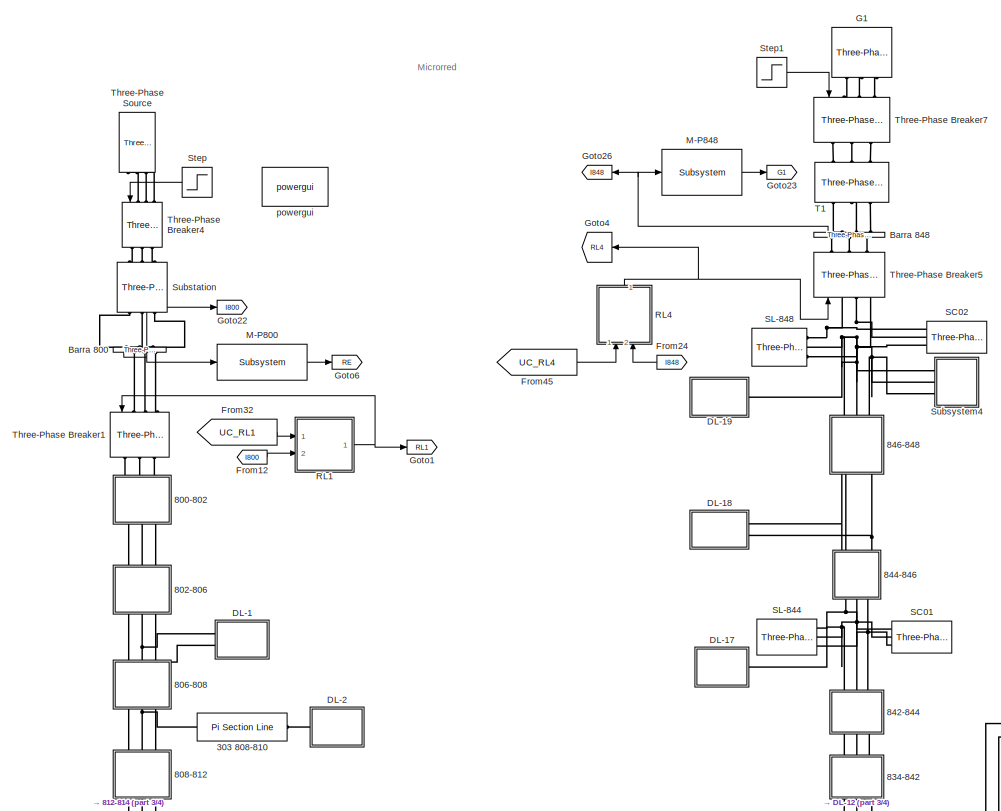
[diagram: root canvas - part 1/4, top left region]
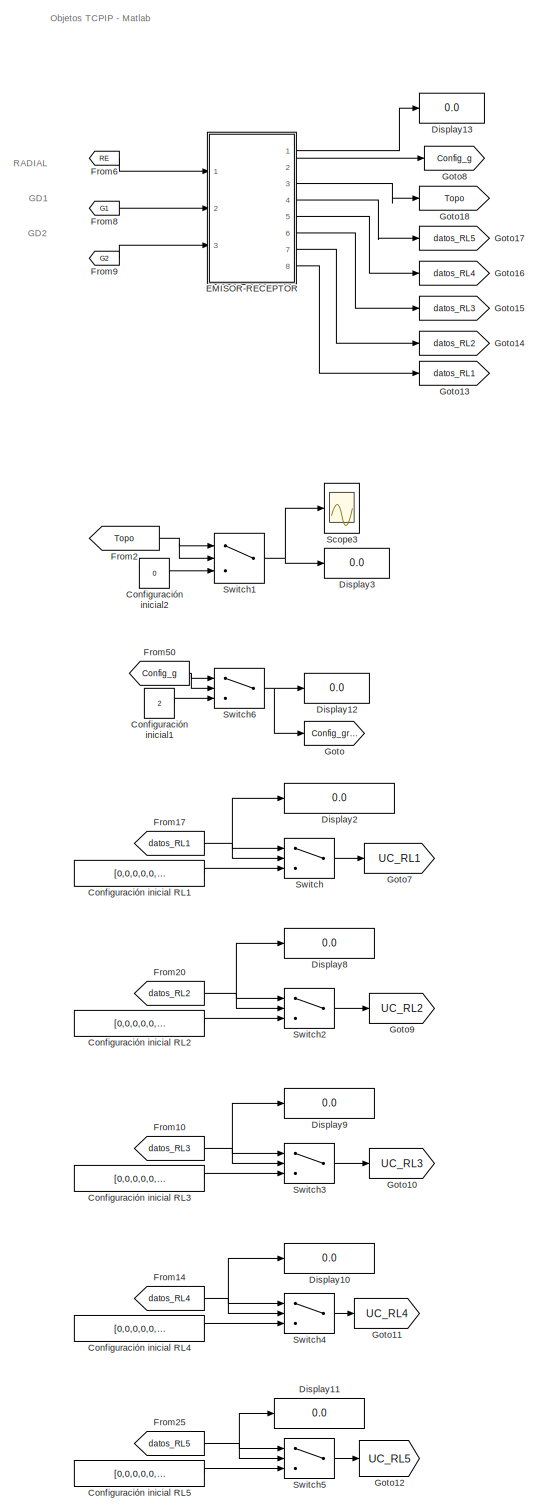
[diagram: root canvas - part 2/4, right side, full height]
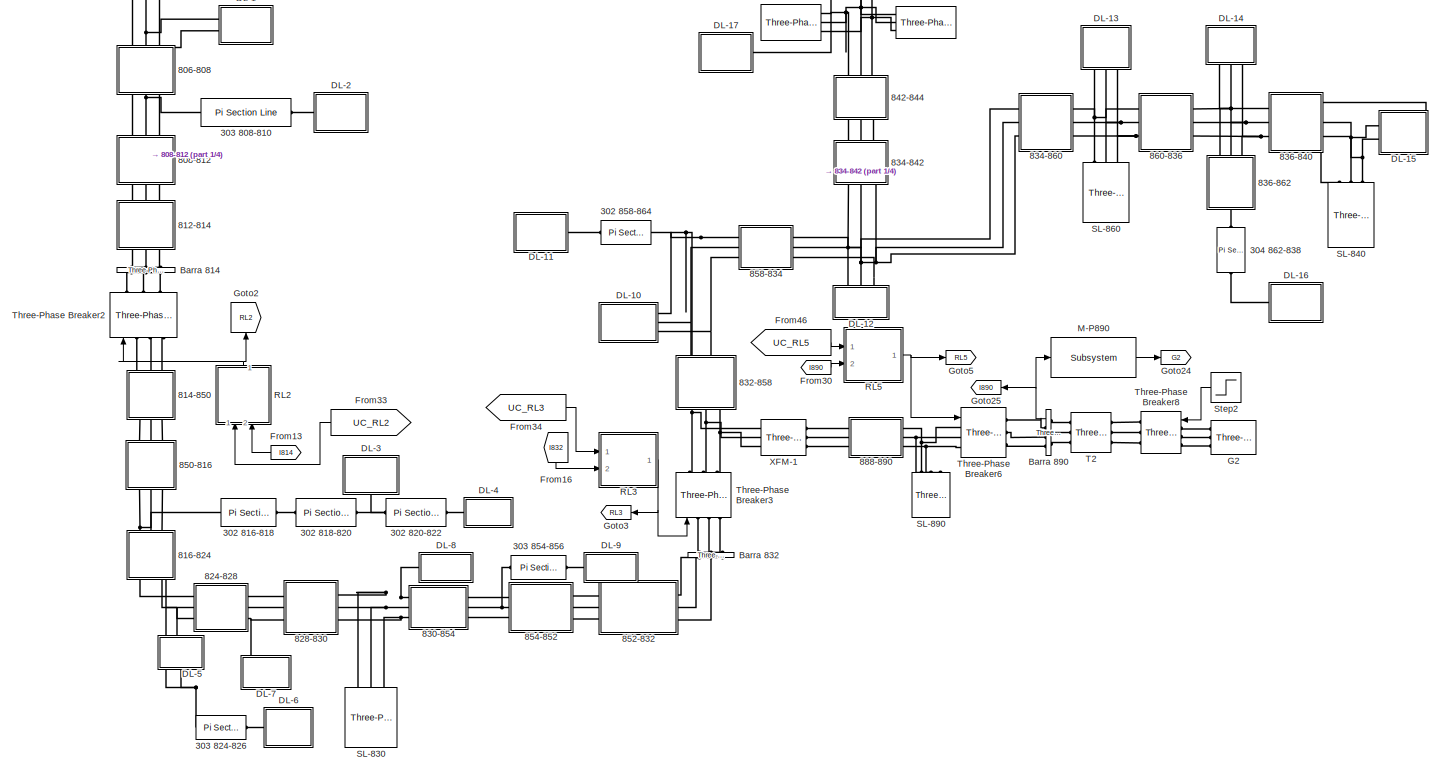
[diagram: root canvas - part 3/4, central region]
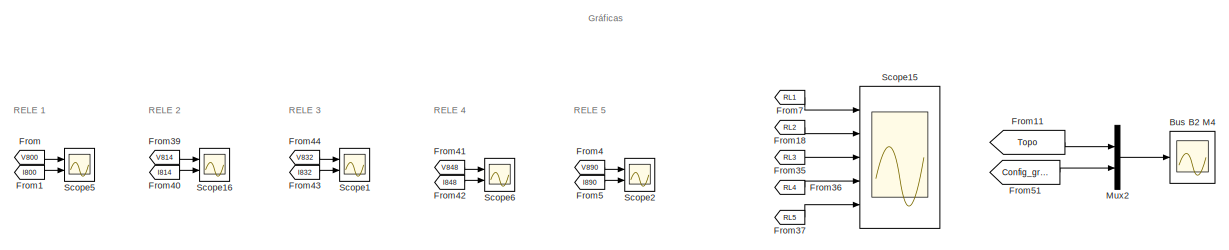
[diagram: root canvas - part 4/4, bottom center region]
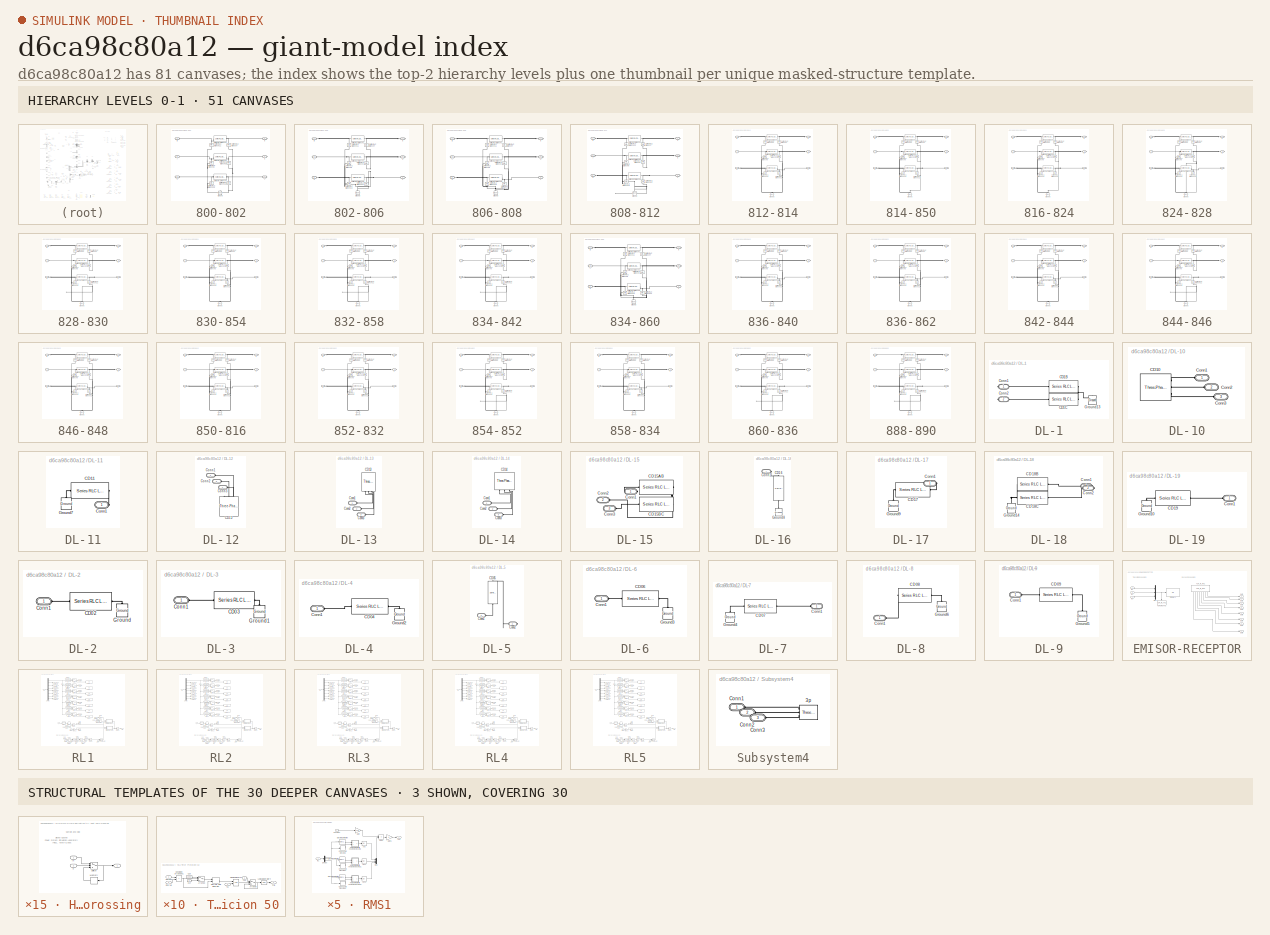
[diagram: thumbnail index - top-2 hierarchy levels (51 canvases) + 3 structural-template representatives of the remaining 30 canvases]
MODEL slx_d6ca98c80a12
KIND model
CONFIG AbsTol = auto
CONFIG EnableMultiTasking = on
CONFIG FixedStep = Ts
CONFIG InitFcn = close\nclc\nclear\nn=2^8;\nf=60;\nT=1/f;\nTs=1/(f*n);\nNT=18;\nset_param('IEEE34BARRAS/EMISOR-RECEPTOR/TCP_IP_RX1/ESCRITURA', 'Value','[0,0,0,0,0,0,0,0,0,0,0,0,0,0,0,0,0,0,0,0,0,0,0,0,0,0,0,0,0,0,0,0,0,0,0,0,0,0,0,0,0]')\nset_param('IEEE34BARRAS/EMISOR-RECEPTOR/TCP_IP_RX1/RETARDO', 'Value','0')\nrun script_client_1_inicio1.m
CONFIG MaxStep = auto
CONFIG MinStep = auto
CONFIG RelTol = 1e-3
CONFIG SampleTimeConstraint = Unconstrained
CONFIG Solver = ode4
CONFIG SolverName = ode4
CONFIG StartTime = 0.0
CONFIG StopTime = 48*T
BLOCK [Reference]  G1  REF=powerlib/Electrical
Sources/Three-Phase Source
  Ports = [0, 0, 0, 0, 0, 0, 3]
  SourceBlock = powerlib/Electrical\nSources/Three-Phase Source
  SourceProductBaseCode = PS
  SourceProductName = Simscape Power Systems
  SourceType = Three-Phase Source
BLOCK [Reference]  G2  REF=powerlib/Electrical
Sources/Three-Phase Source
  Ports = [0, 0, 0, 0, 0, 0, 3]
  SourceBlock = powerlib/Electrical\nSources/Three-Phase Source
  SourceProductBaseCode = PS
  SourceProductName = Simscape Power Systems
  SourceType = Three-Phase Source
BLOCK [Reference] 302 816-818  REF=powerlib/Elements/Pi Section Line
  AttributesFormatString = \n
  Ports = [0, 0, 0, 0, 0, 1, 1]
  SourceBlock = powerlib/Elements/Pi Section Line
  SourceProductBaseCode = PS
  SourceProductName = Simscape Power Systems
  SourceType = Pi Section Line
BLOCK [Reference] 302 818-820  REF=powerlib/Elements/Pi Section Line
  AttributesFormatString = \n
  Ports = [0, 0, 0, 0, 0, 1, 1]
  SourceBlock = powerlib/Elements/Pi Section Line
  SourceProductBaseCode = PS
  SourceProductName = Simscape Power Systems
  SourceType = Pi Section Line
BLOCK [Reference] 302 820-822  REF=powerlib/Elements/Pi Section Line
  AttributesFormatString = \n
  Ports = [0, 0, 0, 0, 0, 1, 1]
  SourceBlock = powerlib/Elements/Pi Section Line
  SourceProductBaseCode = PS
  SourceProductName = Simscape Power Systems
  SourceType = Pi Section Line
BLOCK [Reference] 302 858-864  REF=powerlib/Elements/Pi Section Line
  AttributesFormatString = \n
  Ports = [0, 0, 0, 0, 0, 1, 1]
  SourceBlock = powerlib/Elements/Pi Section Line
  SourceProductBaseCode = PS
  SourceProductName = Simscape Power Systems
  SourceType = Pi Section Line
BLOCK [Reference] 303 808-810  REF=powerlib/Elements/Pi Section Line
  AttributesFormatString = \n
  Ports = [0, 0, 0, 0, 0, 1, 1]
  SourceBlock = powerlib/Elements/Pi Section Line
  SourceProductBaseCode = PS
  SourceProductName = Simscape Power Systems
  SourceType = Pi Section Line
BLOCK [Reference] 303 824-826  REF=powerlib/Elements/Pi Section Line
  AttributesFormatString = \n
  Ports = [0, 0, 0, 0, 0, 1, 1]
  SourceBlock = powerlib/Elements/Pi Section Line
  SourceProductBaseCode = PS
  SourceProductName = Simscape Power Systems
  SourceType = Pi Section Line
BLOCK [Reference] 303 854-856  REF=powerlib/Elements/Pi Section Line
  AttributesFormatString = \n
  Ports = [0, 0, 0, 0, 0, 1, 1]
  SourceBlock = powerlib/Elements/Pi Section Line
  SourceProductBaseCode = PS
  SourceProductName = Simscape Power Systems
  SourceType = Pi Section Line
BLOCK [Reference] 304 862-838  REF=powerlib/Elements/Pi Section Line
  AttributesFormatString = \n
  Ports = [0, 0, 0, 0, 0, 1, 1]
  SourceBlock = powerlib/Elements/Pi Section Line
  SourceProductBaseCode = PS
  SourceProductName = Simscape Power Systems
  SourceType = Pi Section Line
BLOCK [SubSystem] 800-802
  Ports = [0, 0, 0, 0, 0, 3, 3]
  RequestExecContextInheritance = off
BLOCK [PMIOPort] 800-802/A
  Port = 3
  Side = Left
BLOCK [PMIOPort] 800-802/B
  Side = Left
BLOCK [PMIOPort] 800-802/C
  Port = 5
  Side = Left
BLOCK [Reference] 800-802/Ground  REF=powerlib/Elements/Ground
  Ports = [0, 0, 0, 0, 0, 1]
  SourceBlock = powerlib/Elements/Ground
  SourceProductBaseCode = PS
  SourceProductName = Simscape Power Systems
  SourceType = Ground
BLOCK [Reference] 800-802/Series RLC Branch1  REF=powerlib/Elements/Series RLC Branch
  Ports = [0, 0, 0, 0, 0, 1, 1]
  SourceBlock = powerlib/Elements/Series RLC Branch
  SourceProductBaseCode = PS
  SourceProductName = Simscape Power Systems
  SourceType = Series RLC Branch
BLOCK [Reference] 800-802/Series RLC Branch11  REF=powerlib/Elements/Series RLC Branch
  Ports = [0, 0, 0, 0, 0, 1, 1]
  SourceBlock = powerlib/Elements/Series RLC Branch
  SourceProductBaseCode = PS
  SourceProductName = Simscape Power Systems
  SourceType = Series RLC Branch
BLOCK [Reference] 800-802/Series RLC Branch12  REF=powerlib/Elements/Series RLC Branch
  Ports = [0, 0, 0, 0, 0, 1, 1]
  SourceBlock = powerlib/Elements/Series RLC Branch
  SourceProductBaseCode = PS
  SourceProductName = Simscape Power Systems
  SourceType = Series RLC Branch
BLOCK [Reference] 800-802/Series RLC Branch13  REF=powerlib/Elements/Series RLC Branch
  Ports = [0, 0, 0, 0, 0, 1, 1]
  SourceBlock = powerlib/Elements/Series RLC Branch
  SourceProductBaseCode = PS
  SourceProductName = Simscape Power Systems
  SourceType = Series RLC Branch
BLOCK [Reference] 800-802/Series RLC Branch2  REF=powerlib/Elements/Series RLC Branch
  Ports = [0, 0, 0, 0, 0, 1, 1]
  SourceBlock = powerlib/Elements/Series RLC Branch
  SourceProductBaseCode = PS
  SourceProductName = Simscape Power Systems
  SourceType = Series RLC Branch
BLOCK [Reference] 800-802/Series RLC Branch3  REF=powerlib/Elements/Series RLC Branch
  Ports = [0, 0, 0, 0, 0, 1, 1]
  SourceBlock = powerlib/Elements/Series RLC Branch
  SourceProductBaseCode = PS
  SourceProductName = Simscape Power Systems
  SourceType = Series RLC Branch
BLOCK [Reference] 800-802/Series RLC Branch7  REF=powerlib/Elements/Series RLC Branch
  Ports = [0, 0, 0, 0, 0, 1, 1]
  SourceBlock = powerlib/Elements/Series RLC Branch
  SourceProductBaseCode = PS
  SourceProductName = Simscape Power Systems
  SourceType = Series RLC Branch
BLOCK [Reference] 800-802/Series RLC Branch8  REF=powerlib/Elements/Series RLC Branch
  Ports = [0, 0, 0, 0, 0, 1, 1]
  SourceBlock = powerlib/Elements/Series RLC Branch
  SourceProductBaseCode = PS
  SourceProductName = Simscape Power Systems
  SourceType = Series RLC Branch
BLOCK [Reference] 800-802/Series RLC Branch9  REF=powerlib/Elements/Series RLC Branch
  Ports = [0, 0, 0, 0, 0, 1, 1]
  SourceBlock = powerlib/Elements/Series RLC Branch
  SourceProductBaseCode = PS
  SourceProductName = Simscape Power Systems
  SourceType = Series RLC Branch
BLOCK [PMIOPort] 800-802/a
  Port = 4
  Side = Right
BLOCK [PMIOPort] 800-802/b
  Port = 2
  Side = Right
BLOCK [PMIOPort] 800-802/c
  Port = 6
  Side = Right
BLOCK [SubSystem] 802-806
  Ports = [0, 0, 0, 0, 0, 3, 3]
  RequestExecContextInheritance = off
BLOCK [PMIOPort] 802-806/A
  Port = 3
  Side = Left
BLOCK [PMIOPort] 802-806/B
  Side = Left
BLOCK [PMIOPort] 802-806/C
  Port = 5
  Side = Left
BLOCK [Reference] 802-806/Ground  REF=powerlib/Elements/Ground
  Ports = [0, 0, 0, 0, 0, 1]
  SourceBlock = powerlib/Elements/Ground
  SourceProductBaseCode = PS
  SourceProductName = Simscape Power Systems
  SourceType = Ground
BLOCK [Reference] 802-806/Series RLC Branch1  REF=powerlib/Elements/Series RLC Branch
  Ports = [0, 0, 0, 0, 0, 1, 1]
  SourceBlock = powerlib/Elements/Series RLC Branch
  SourceProductBaseCode = PS
  SourceProductName = Simscape Power Systems
  SourceType = Series RLC Branch
BLOCK [Reference] 802-806/Series RLC Branch11  REF=powerlib/Elements/Series RLC Branch
  Ports = [0, 0, 0, 0, 0, 1, 1]
  SourceBlock = powerlib/Elements/Series RLC Branch
  SourceProductBaseCode = PS
  SourceProductName = Simscape Power Systems
  SourceType = Series RLC Branch
BLOCK [Reference] 802-806/Series RLC Branch12  REF=powerlib/Elements/Series RLC Branch
  Ports = [0, 0, 0, 0, 0, 1, 1]
  SourceBlock = powerlib/Elements/Series RLC Branch
  SourceProductBaseCode = PS
  SourceProductName = Simscape Power Systems
  SourceType = Series RLC Branch
BLOCK [Reference] 802-806/Series RLC Branch13  REF=powerlib/Elements/Series RLC Branch
  Ports = [0, 0, 0, 0, 0, 1, 1]
  SourceBlock = powerlib/Elements/Series RLC Branch
  SourceProductBaseCode = PS
  SourceProductName = Simscape Power Systems
  SourceType = Series RLC Branch
BLOCK [Reference] 802-806/Series RLC Branch2  REF=powerlib/Elements/Series RLC Branch
  Ports = [0, 0, 0, 0, 0, 1, 1]
  SourceBlock = powerlib/Elements/Series RLC Branch
  SourceProductBaseCode = PS
  SourceProductName = Simscape Power Systems
  SourceType = Series RLC Branch
BLOCK [Reference] 802-806/Series RLC Branch3  REF=powerlib/Elements/Series RLC Branch
  Ports = [0, 0, 0, 0, 0, 1, 1]
  SourceBlock = powerlib/Elements/Series RLC Branch
  SourceProductBaseCode = PS
  SourceProductName = Simscape Power Systems
  SourceType = Series RLC Branch
BLOCK [Reference] 802-806/Series RLC Branch7  REF=powerlib/Elements/Series RLC Branch
  Ports = [0, 0, 0, 0, 0, 1, 1]
  SourceBlock = powerlib/Elements/Series RLC Branch
  SourceProductBaseCode = PS
  SourceProductName = Simscape Power Systems
  SourceType = Series RLC Branch
BLOCK [Reference] 802-806/Series RLC Branch8  REF=powerlib/Elements/Series RLC Branch
  Ports = [0, 0, 0, 0, 0, 1, 1]
  SourceBlock = powerlib/Elements/Series RLC Branch
  SourceProductBaseCode = PS
  SourceProductName = Simscape Power Systems
  SourceType = Series RLC Branch
BLOCK [Reference] 802-806/Series RLC Branch9  REF=powerlib/Elements/Series RLC Branch
  Ports = [0, 0, 0, 0, 0, 1, 1]
  SourceBlock = powerlib/Elements/Series RLC Branch
  SourceProductBaseCode = PS
  SourceProductName = Simscape Power Systems
  SourceType = Series RLC Branch
BLOCK [PMIOPort] 802-806/a
  Port = 4
  Side = Right
BLOCK [PMIOPort] 802-806/b
  Port = 2
  Side = Right
BLOCK [PMIOPort] 802-806/c
  Port = 6
  Side = Right
BLOCK [SubSystem] 806-808
  Ports = [0, 0, 0, 0, 0, 3, 3]
  RequestExecContextInheritance = off
BLOCK [PMIOPort] 806-808/A
  Port = 3
  Side = Left
BLOCK [PMIOPort] 806-808/B
  Side = Left
BLOCK [PMIOPort] 806-808/C
  Port = 5
  Side = Left
BLOCK [Reference] 806-808/Ground  REF=powerlib/Elements/Ground
  Ports = [0, 0, 0, 0, 0, 1]
  SourceBlock = powerlib/Elements/Ground
  SourceProductBaseCode = PS
  SourceProductName = Simscape Power Systems
  SourceType = Ground
BLOCK [Reference] 806-808/Series RLC Branch1  REF=powerlib/Elements/Series RLC Branch
  Ports = [0, 0, 0, 0, 0, 1, 1]
  SourceBlock = powerlib/Elements/Series RLC Branch
  SourceProductBaseCode = PS
  SourceProductName = Simscape Power Systems
  SourceType = Series RLC Branch
BLOCK [Reference] 806-808/Series RLC Branch11  REF=powerlib/Elements/Series RLC Branch
  Ports = [0, 0, 0, 0, 0, 1, 1]
  SourceBlock = powerlib/Elements/Series RLC Branch
  SourceProductBaseCode = PS
  SourceProductName = Simscape Power Systems
  SourceType = Series RLC Branch
BLOCK [Reference] 806-808/Series RLC Branch12  REF=powerlib/Elements/Series RLC Branch
  Ports = [0, 0, 0, 0, 0, 1, 1]
  SourceBlock = powerlib/Elements/Series RLC Branch
  SourceProductBaseCode = PS
  SourceProductName = Simscape Power Systems
  SourceType = Series RLC Branch
BLOCK [Reference] 806-808/Series RLC Branch13  REF=powerlib/Elements/Series RLC Branch
  Ports = [0, 0, 0, 0, 0, 1, 1]
  SourceBlock = powerlib/Elements/Series RLC Branch
  SourceProductBaseCode = PS
  SourceProductName = Simscape Power Systems
  SourceType = Series RLC Branch
BLOCK [Reference] 806-808/Series RLC Branch2  REF=powerlib/Elements/Series RLC Branch
  Ports = [0, 0, 0, 0, 0, 1, 1]
  SourceBlock = powerlib/Elements/Series RLC Branch
  SourceProductBaseCode = PS
  SourceProductName = Simscape Power Systems
  SourceType = Series RLC Branch
BLOCK [Reference] 806-808/Series RLC Branch3  REF=powerlib/Elements/Series RLC Branch
  Ports = [0, 0, 0, 0, 0, 1, 1]
  SourceBlock = powerlib/Elements/Series RLC Branch
  SourceProductBaseCode = PS
  SourceProductName = Simscape Power Systems
  SourceType = Series RLC Branch
BLOCK [Reference] 806-808/Series RLC Branch7  REF=powerlib/Elements/Series RLC Branch
  Ports = [0, 0, 0, 0, 0, 1, 1]
  SourceBlock = powerlib/Elements/Series RLC Branch
  SourceProductBaseCode = PS
  SourceProductName = Simscape Power Systems
  SourceType = Series RLC Branch
BLOCK [Reference] 806-808/Series RLC Branch8  REF=powerlib/Elements/Series RLC Branch
  Ports = [0, 0, 0, 0, 0, 1, 1]
  SourceBlock = powerlib/Elements/Series RLC Branch
  SourceProductBaseCode = PS
  SourceProductName = Simscape Power Systems
  SourceType = Series RLC Branch
BLOCK [Reference] 806-808/Series RLC Branch9  REF=powerlib/Elements/Series RLC Branch
  Ports = [0, 0, 0, 0, 0, 1, 1]
  SourceBlock = powerlib/Elements/Series RLC Branch
  SourceProductBaseCode = PS
  SourceProductName = Simscape Power Systems
  SourceType = Series RLC Branch
BLOCK [PMIOPort] 806-808/a
  Port = 4
  Side = Right
BLOCK [PMIOPort] 806-808/b
  Port = 2
  Side = Right
BLOCK [PMIOPort] 806-808/c
  Port = 6
  Side = Right
BLOCK [SubSystem] 808-812
  Ports = [0, 0, 0, 0, 0, 3, 3]
  RequestExecContextInheritance = off
BLOCK [PMIOPort] 808-812/A
  Port = 3
  Side = Left
BLOCK [PMIOPort] 808-812/B
  Side = Left
BLOCK [PMIOPort] 808-812/C
  Port = 5
  Side = Left
BLOCK [Reference] 808-812/Ground  REF=powerlib/Elements/Ground
  Ports = [0, 0, 0, 0, 0, 1]
  SourceBlock = powerlib/Elements/Ground
  SourceProductBaseCode = PS
  SourceProductName = Simscape Power Systems
  SourceType = Ground
BLOCK [Reference] 808-812/Series RLC Branch1  REF=powerlib/Elements/Series RLC Branch
  Ports = [0, 0, 0, 0, 0, 1, 1]
  SourceBlock = powerlib/Elements/Series RLC Branch
  SourceProductBaseCode = PS
  SourceProductName = Simscape Power Systems
  SourceType = Series RLC Branch
BLOCK [Reference] 808-812/Series RLC Branch11  REF=powerlib/Elements/Series RLC Branch
  Ports = [0, 0, 0, 0, 0, 1, 1]
  SourceBlock = powerlib/Elements/Series RLC Branch
  SourceProductBaseCode = PS
  SourceProductName = Simscape Power Systems
  SourceType = Series RLC Branch
BLOCK [Reference] 808-812/Series RLC Branch12  REF=powerlib/Elements/Series RLC Branch
  Ports = [0, 0, 0, 0, 0, 1, 1]
  SourceBlock = powerlib/Elements/Series RLC Branch
  SourceProductBaseCode = PS
  SourceProductName = Simscape Power Systems
  SourceType = Series RLC Branch
BLOCK [Reference] 808-812/Series RLC Branch13  REF=powerlib/Elements/Series RLC Branch
  Ports = [0, 0, 0, 0, 0, 1, 1]
  SourceBlock = powerlib/Elements/Series RLC Branch
  SourceProductBaseCode = PS
  SourceProductName = Simscape Power Systems
  SourceType = Series RLC Branch
BLOCK [Reference] 808-812/Series RLC Branch2  REF=powerlib/Elements/Series RLC Branch
  Ports = [0, 0, 0, 0, 0, 1, 1]
  SourceBlock = powerlib/Elements/Series RLC Branch
  SourceProductBaseCode = PS
  SourceProductName = Simscape Power Systems
  SourceType = Series RLC Branch
BLOCK [Reference] 808-812/Series RLC Branch3  REF=powerlib/Elements/Series RLC Branch
  Ports = [0, 0, 0, 0, 0, 1, 1]
  SourceBlock = powerlib/Elements/Series RLC Branch
  SourceProductBaseCode = PS
  SourceProductName = Simscape Power Systems
  SourceType = Series RLC Branch
BLOCK [Reference] 808-812/Series RLC Branch7  REF=powerlib/Elements/Series RLC Branch
  Ports = [0, 0, 0, 0, 0, 1, 1]
  SourceBlock = powerlib/Elements/Series RLC Branch
  SourceProductBaseCode = PS
  SourceProductName = Simscape Power Systems
  SourceType = Series RLC Branch
BLOCK [Reference] 808-812/Series RLC Branch8  REF=powerlib/Elements/Series RLC Branch
  Ports = [0, 0, 0, 0, 0, 1, 1]
  SourceBlock = powerlib/Elements/Series RLC Branch
  SourceProductBaseCode = PS
  SourceProductName = Simscape Power Systems
  SourceType = Series RLC Branch
BLOCK [Reference] 808-812/Series RLC Branch9  REF=powerlib/Elements/Series RLC Branch
  Ports = [0, 0, 0, 0, 0, 1, 1]
  SourceBlock = powerlib/Elements/Series RLC Branch
  SourceProductBaseCode = PS
  SourceProductName = Simscape Power Systems
  SourceType = Series RLC Branch
BLOCK [PMIOPort] 808-812/a
  Port = 4
  Side = Right
BLOCK [PMIOPort] 808-812/b
  Port = 2
  Side = Right
BLOCK [PMIOPort] 808-812/c
  Port = 6
  Side = Right
BLOCK [SubSystem] 812-814
  Ports = [0, 0, 0, 0, 0, 3, 3]
  RequestExecContextInheritance = off
BLOCK [PMIOPort] 812-814/A
  Port = 3
  Side = Left
BLOCK [PMIOPort] 812-814/B
  Side = Left
BLOCK [PMIOPort] 812-814/C
  Port = 5
  Side = Left
BLOCK [Reference] 812-814/Ground  REF=powerlib/Elements/Ground
  Ports = [0, 0, 0, 0, 0, 1]
  SourceBlock = powerlib/Elements/Ground
  SourceProductBaseCode = PS
  SourceProductName = Simscape Power Systems
  SourceType = Ground
BLOCK [Reference] 812-814/Series RLC Branch1  REF=powerlib/Elements/Series RLC Branch
  Ports = [0, 0, 0, 0, 0, 1, 1]
  SourceBlock = powerlib/Elements/Series RLC Branch
  SourceProductBaseCode = PS
  SourceProductName = Simscape Power Systems
  SourceType = Series RLC Branch
BLOCK [Reference] 812-814/Series RLC Branch11  REF=powerlib/Elements/Series RLC Branch
  Ports = [0, 0, 0, 0, 0, 1, 1]
  SourceBlock = powerlib/Elements/Series RLC Branch
  SourceProductBaseCode = PS
  SourceProductName = Simscape Power Systems
  SourceType = Series RLC Branch
BLOCK [Reference] 812-814/Series RLC Branch12  REF=powerlib/Elements/Series RLC Branch
  Ports = [0, 0, 0, 0, 0, 1, 1]
  SourceBlock = powerlib/Elements/Series RLC Branch
  SourceProductBaseCode = PS
  SourceProductName = Simscape Power Systems
  SourceType = Series RLC Branch
BLOCK [Reference] 812-814/Series RLC Branch13  REF=powerlib/Elements/Series RLC Branch
  Ports = [0, 0, 0, 0, 0, 1, 1]
  SourceBlock = powerlib/Elements/Series RLC Branch
  SourceProductBaseCode = PS
  SourceProductName = Simscape Power Systems
  SourceType = Series RLC Branch
BLOCK [Reference] 812-814/Series RLC Branch2  REF=powerlib/Elements/Series RLC Branch
  Ports = [0, 0, 0, 0, 0, 1, 1]
  SourceBlock = powerlib/Elements/Series RLC Branch
  SourceProductBaseCode = PS
  SourceProductName = Simscape Power Systems
  SourceType = Series RLC Branch
BLOCK [Reference] 812-814/Series RLC Branch3  REF=powerlib/Elements/Series RLC Branch
  Ports = [0, 0, 0, 0, 0, 1, 1]
  SourceBlock = powerlib/Elements/Series RLC Branch
  SourceProductBaseCode = PS
  SourceProductName = Simscape Power Systems
  SourceType = Series RLC Branch
BLOCK [Reference] 812-814/Series RLC Branch7  REF=powerlib/Elements/Series RLC Branch
  Ports = [0, 0, 0, 0, 0, 1, 1]
  SourceBlock = powerlib/Elements/Series RLC Branch
  SourceProductBaseCode = PS
  SourceProductName = Simscape Power Systems
  SourceType = Series RLC Branch
BLOCK [Reference] 812-814/Series RLC Branch8  REF=powerlib/Elements/Series RLC Branch
  Ports = [0, 0, 0, 0, 0, 1, 1]
  SourceBlock = powerlib/Elements/Series RLC Branch
  SourceProductBaseCode = PS
  SourceProductName = Simscape Power Systems
  SourceType = Series RLC Branch
BLOCK [Reference] 812-814/Series RLC Branch9  REF=powerlib/Elements/Series RLC Branch
  Ports = [0, 0, 0, 0, 0, 1, 1]
  SourceBlock = powerlib/Elements/Series RLC Branch
  SourceProductBaseCode = PS
  SourceProductName = Simscape Power Systems
  SourceType = Series RLC Branch
BLOCK [PMIOPort] 812-814/a
  Port = 4
  Side = Right
BLOCK [PMIOPort] 812-814/b
  Port = 2
  Side = Right
BLOCK [PMIOPort] 812-814/c
  Port = 6
  Side = Right
BLOCK [SubSystem] 814-850
  Ports = [0, 0, 0, 0, 0, 3, 3]
  RequestExecContextInheritance = off
BLOCK [PMIOPort] 814-850/A
  Port = 3
  Side = Left
BLOCK [PMIOPort] 814-850/B
  Side = Left
BLOCK [PMIOPort] 814-850/C
  Port = 5
  Side = Left
BLOCK [Reference] 814-850/Ground  REF=powerlib/Elements/Ground
  Ports = [0, 0, 0, 0, 0, 1]
  SourceBlock = powerlib/Elements/Ground
  SourceProductBaseCode = PS
  SourceProductName = Simscape Power Systems
  SourceType = Ground
BLOCK [Reference] 814-850/Series RLC Branch1  REF=powerlib/Elements/Series RLC Branch
  Ports = [0, 0, 0, 0, 0, 1, 1]
  SourceBlock = powerlib/Elements/Series RLC Branch
  SourceProductBaseCode = PS
  SourceProductName = Simscape Power Systems
  SourceType = Series RLC Branch
BLOCK [Reference] 814-850/Series RLC Branch11  REF=powerlib/Elements/Series RLC Branch
  Ports = [0, 0, 0, 0, 0, 1, 1]
  SourceBlock = powerlib/Elements/Series RLC Branch
  SourceProductBaseCode = PS
  SourceProductName = Simscape Power Systems
  SourceType = Series RLC Branch
BLOCK [Reference] 814-850/Series RLC Branch12  REF=powerlib/Elements/Series RLC Branch
  Ports = [0, 0, 0, 0, 0, 1, 1]
  SourceBlock = powerlib/Elements/Series RLC Branch
  SourceProductBaseCode = PS
  SourceProductName = Simscape Power Systems
  SourceType = Series RLC Branch
BLOCK [Reference] 814-850/Series RLC Branch13  REF=powerlib/Elements/Series RLC Branch
  Ports = [0, 0, 0, 0, 0, 1, 1]
  SourceBlock = powerlib/Elements/Series RLC Branch
  SourceProductBaseCode = PS
  SourceProductName = Simscape Power Systems
  SourceType = Series RLC Branch
BLOCK [Reference] 814-850/Series RLC Branch2  REF=powerlib/Elements/Series RLC Branch
  Ports = [0, 0, 0, 0, 0, 1, 1]
  SourceBlock = powerlib/Elements/Series RLC Branch
  SourceProductBaseCode = PS
  SourceProductName = Simscape Power Systems
  SourceType = Series RLC Branch
BLOCK [Reference] 814-850/Series RLC Branch3  REF=powerlib/Elements/Series RLC Branch
  Ports = [0, 0, 0, 0, 0, 1, 1]
  SourceBlock = powerlib/Elements/Series RLC Branch
  SourceProductBaseCode = PS
  SourceProductName = Simscape Power Systems
  SourceType = Series RLC Branch
BLOCK [Reference] 814-850/Series RLC Branch7  REF=powerlib/Elements/Series RLC Branch
  Ports = [0, 0, 0, 0, 0, 1, 1]
  SourceBlock = powerlib/Elements/Series RLC Branch
  SourceProductBaseCode = PS
  SourceProductName = Simscape Power Systems
  SourceType = Series RLC Branch
BLOCK [Reference] 814-850/Series RLC Branch8  REF=powerlib/Elements/Series RLC Branch
  Ports = [0, 0, 0, 0, 0, 1, 1]
  SourceBlock = powerlib/Elements/Series RLC Branch
  SourceProductBaseCode = PS
  SourceProductName = Simscape Power Systems
  SourceType = Series RLC Branch
BLOCK [Reference] 814-850/Series RLC Branch9  REF=powerlib/Elements/Series RLC Branch
  Ports = [0, 0, 0, 0, 0, 1, 1]
  SourceBlock = powerlib/Elements/Series RLC Branch
  SourceProductBaseCode = PS
  SourceProductName = Simscape Power Systems
  SourceType = Series RLC Branch
BLOCK [PMIOPort] 814-850/a
  Port = 4
  Side = Right
BLOCK [PMIOPort] 814-850/b
  Port = 2
  Side = Right
BLOCK [PMIOPort] 814-850/c
  Port = 6
  Side = Right
BLOCK [SubSystem] 816-824
  Ports = [0, 0, 0, 0, 0, 3, 3]
  RequestExecContextInheritance = off
BLOCK [PMIOPort] 816-824/A
  Port = 3
  Side = Left
BLOCK [PMIOPort] 816-824/B
  Side = Left
BLOCK [PMIOPort] 816-824/C
  Port = 5
  Side = Left
BLOCK [Reference] 816-824/Ground  REF=powerlib/Elements/Ground
  Ports = [0, 0, 0, 0, 0, 1]
  SourceBlock = powerlib/Elements/Ground
  SourceProductBaseCode = PS
  SourceProductName = Simscape Power Systems
  SourceType = Ground
BLOCK [Reference] 816-824/Series RLC Branch1  REF=powerlib/Elements/Series RLC Branch
  Ports = [0, 0, 0, 0, 0, 1, 1]
  SourceBlock = powerlib/Elements/Series RLC Branch
  SourceProductBaseCode = PS
  SourceProductName = Simscape Power Systems
  SourceType = Series RLC Branch
BLOCK [Reference] 816-824/Series RLC Branch11  REF=powerlib/Elements/Series RLC Branch
  Ports = [0, 0, 0, 0, 0, 1, 1]
  SourceBlock = powerlib/Elements/Series RLC Branch
  SourceProductBaseCode = PS
  SourceProductName = Simscape Power Systems
  SourceType = Series RLC Branch
BLOCK [Reference] 816-824/Series RLC Branch12  REF=powerlib/Elements/Series RLC Branch
  Ports = [0, 0, 0, 0, 0, 1, 1]
  SourceBlock = powerlib/Elements/Series RLC Branch
  SourceProductBaseCode = PS
  SourceProductName = Simscape Power Systems
  SourceType = Series RLC Branch
BLOCK [Reference] 816-824/Series RLC Branch13  REF=powerlib/Elements/Series RLC Branch
  Ports = [0, 0, 0, 0, 0, 1, 1]
  SourceBlock = powerlib/Elements/Series RLC Branch
  SourceProductBaseCode = PS
  SourceProductName = Simscape Power Systems
  SourceType = Series RLC Branch
BLOCK [Reference] 816-824/Series RLC Branch2  REF=powerlib/Elements/Series RLC Branch
  Ports = [0, 0, 0, 0, 0, 1, 1]
  SourceBlock = powerlib/Elements/Series RLC Branch
  SourceProductBaseCode = PS
  SourceProductName = Simscape Power Systems
  SourceType = Series RLC Branch
BLOCK [Reference] 816-824/Series RLC Branch3  REF=powerlib/Elements/Series RLC Branch
  Ports = [0, 0, 0, 0, 0, 1, 1]
  SourceBlock = powerlib/Elements/Series RLC Branch
  SourceProductBaseCode = PS
  SourceProductName = Simscape Power Systems
  SourceType = Series RLC Branch
BLOCK [Reference] 816-824/Series RLC Branch7  REF=powerlib/Elements/Series RLC Branch
  Ports = [0, 0, 0, 0, 0, 1, 1]
  SourceBlock = powerlib/Elements/Series RLC Branch
  SourceProductBaseCode = PS
  SourceProductName = Simscape Power Systems
  SourceType = Series RLC Branch
BLOCK [Reference] 816-824/Series RLC Branch8  REF=powerlib/Elements/Series RLC Branch
  Ports = [0, 0, 0, 0, 0, 1, 1]
  SourceBlock = powerlib/Elements/Series RLC Branch
  SourceProductBaseCode = PS
  SourceProductName = Simscape Power Systems
  SourceType = Series RLC Branch
BLOCK [Reference] 816-824/Series RLC Branch9  REF=powerlib/Elements/Series RLC Branch
  Ports = [0, 0, 0, 0, 0, 1, 1]
  SourceBlock = powerlib/Elements/Series RLC Branch
  SourceProductBaseCode = PS
  SourceProductName = Simscape Power Systems
  SourceType = Series RLC Branch
BLOCK [PMIOPort] 816-824/a
  Port = 4
  Side = Right
BLOCK [PMIOPort] 816-824/b
  Port = 2
  Side = Right
BLOCK [PMIOPort] 816-824/c
  Port = 6
  Side = Right
BLOCK [SubSystem] 824-828
  Ports = [0, 0, 0, 0, 0, 3, 3]
  RequestExecContextInheritance = off
BLOCK [PMIOPort] 824-828/A
  Port = 3
  Side = Left
BLOCK [PMIOPort] 824-828/B
  Side = Left
BLOCK [PMIOPort] 824-828/C
  Port = 5
  Side = Left
BLOCK [Reference] 824-828/Ground  REF=powerlib/Elements/Ground
  Ports = [0, 0, 0, 0, 0, 1]
  SourceBlock = powerlib/Elements/Ground
  SourceProductBaseCode = PS
  SourceProductName = Simscape Power Systems
  SourceType = Ground
BLOCK [Reference] 824-828/Series RLC Branch1  REF=powerlib/Elements/Series RLC Branch
  Ports = [0, 0, 0, 0, 0, 1, 1]
  SourceBlock = powerlib/Elements/Series RLC Branch
  SourceProductBaseCode = PS
  SourceProductName = Simscape Power Systems
  SourceType = Series RLC Branch
BLOCK [Reference] 824-828/Series RLC Branch11  REF=powerlib/Elements/Series RLC Branch
  Ports = [0, 0, 0, 0, 0, 1, 1]
  SourceBlock = powerlib/Elements/Series RLC Branch
  SourceProductBaseCode = PS
  SourceProductName = Simscape Power Systems
  SourceType = Series RLC Branch
BLOCK [Reference] 824-828/Series RLC Branch12  REF=powerlib/Elements/Series RLC Branch
  Ports = [0, 0, 0, 0, 0, 1, 1]
  SourceBlock = powerlib/Elements/Series RLC Branch
  SourceProductBaseCode = PS
  SourceProductName = Simscape Power Systems
  SourceType = Series RLC Branch
BLOCK [Reference] 824-828/Series RLC Branch13  REF=powerlib/Elements/Series RLC Branch
  Ports = [0, 0, 0, 0, 0, 1, 1]
  SourceBlock = powerlib/Elements/Series RLC Branch
  SourceProductBaseCode = PS
  SourceProductName = Simscape Power Systems
  SourceType = Series RLC Branch
BLOCK [Reference] 824-828/Series RLC Branch2  REF=powerlib/Elements/Series RLC Branch
  Ports = [0, 0, 0, 0, 0, 1, 1]
  SourceBlock = powerlib/Elements/Series RLC Branch
  SourceProductBaseCode = PS
  SourceProductName = Simscape Power Systems
  SourceType = Series RLC Branch
BLOCK [Reference] 824-828/Series RLC Branch3  REF=powerlib/Elements/Series RLC Branch
  Ports = [0, 0, 0, 0, 0, 1, 1]
  SourceBlock = powerlib/Elements/Series RLC Branch
  SourceProductBaseCode = PS
  SourceProductName = Simscape Power Systems
  SourceType = Series RLC Branch
BLOCK [Reference] 824-828/Series RLC Branch7  REF=powerlib/Elements/Series RLC Branch
  Ports = [0, 0, 0, 0, 0, 1, 1]
  SourceBlock = powerlib/Elements/Series RLC Branch
  SourceProductBaseCode = PS
  SourceProductName = Simscape Power Systems
  SourceType = Series RLC Branch
BLOCK [Reference] 824-828/Series RLC Branch8  REF=powerlib/Elements/Series RLC Branch
  Ports = [0, 0, 0, 0, 0, 1, 1]
  SourceBlock = powerlib/Elements/Series RLC Branch
  SourceProductBaseCode = PS
  SourceProductName = Simscape Power Systems
  SourceType = Series RLC Branch
BLOCK [Reference] 824-828/Series RLC Branch9  REF=powerlib/Elements/Series RLC Branch
  Ports = [0, 0, 0, 0, 0, 1, 1]
  SourceBlock = powerlib/Elements/Series RLC Branch
  SourceProductBaseCode = PS
  SourceProductName = Simscape Power Systems
  SourceType = Series RLC Branch
BLOCK [PMIOPort] 824-828/a
  Port = 4
  Side = Right
BLOCK [PMIOPort] 824-828/b
  Port = 2
  Side = Right
BLOCK [PMIOPort] 824-828/c
  Port = 6
  Side = Right
BLOCK [SubSystem] 828-830
  Ports = [0, 0, 0, 0, 0, 3, 3]
  RequestExecContextInheritance = off
BLOCK [PMIOPort] 828-830/A
  Port = 3
  Side = Left
BLOCK [PMIOPort] 828-830/B
  Side = Left
BLOCK [PMIOPort] 828-830/C
  Port = 5
  Side = Left
BLOCK [Reference] 828-830/Ground  REF=powerlib/Elements/Ground
  Ports = [0, 0, 0, 0, 0, 1]
  SourceBlock = powerlib/Elements/Ground
  SourceProductBaseCode = PS
  SourceProductName = Simscape Power Systems
  SourceType = Ground
BLOCK [Reference] 828-830/Series RLC Branch1  REF=powerlib/Elements/Series RLC Branch
  Ports = [0, 0, 0, 0, 0, 1, 1]
  SourceBlock = powerlib/Elements/Series RLC Branch
  SourceProductBaseCode = PS
  SourceProductName = Simscape Power Systems
  SourceType = Series RLC Branch
BLOCK [Reference] 828-830/Series RLC Branch11  REF=powerlib/Elements/Series RLC Branch
  Ports = [0, 0, 0, 0, 0, 1, 1]
  SourceBlock = powerlib/Elements/Series RLC Branch
  SourceProductBaseCode = PS
  SourceProductName = Simscape Power Systems
  SourceType = Series RLC Branch
BLOCK [Reference] 828-830/Series RLC Branch12  REF=powerlib/Elements/Series RLC Branch
  Ports = [0, 0, 0, 0, 0, 1, 1]
  SourceBlock = powerlib/Elements/Series RLC Branch
  SourceProductBaseCode = PS
  SourceProductName = Simscape Power Systems
  SourceType = Series RLC Branch
BLOCK [Reference] 828-830/Series RLC Branch13  REF=powerlib/Elements/Series RLC Branch
  Ports = [0, 0, 0, 0, 0, 1, 1]
  SourceBlock = powerlib/Elements/Series RLC Branch
  SourceProductBaseCode = PS
  SourceProductName = Simscape Power Systems
  SourceType = Series RLC Branch
BLOCK [Reference] 828-830/Series RLC Branch2  REF=powerlib/Elements/Series RLC Branch
  Ports = [0, 0, 0, 0, 0, 1, 1]
  SourceBlock = powerlib/Elements/Series RLC Branch
  SourceProductBaseCode = PS
  SourceProductName = Simscape Power Systems
  SourceType = Series RLC Branch
BLOCK [Reference] 828-830/Series RLC Branch3  REF=powerlib/Elements/Series RLC Branch
  Ports = [0, 0, 0, 0, 0, 1, 1]
  SourceBlock = powerlib/Elements/Series RLC Branch
  SourceProductBaseCode = PS
  SourceProductName = Simscape Power Systems
  SourceType = Series RLC Branch
BLOCK [Reference] 828-830/Series RLC Branch7  REF=powerlib/Elements/Series RLC Branch
  Ports = [0, 0, 0, 0, 0, 1, 1]
  SourceBlock = powerlib/Elements/Series RLC Branch
  SourceProductBaseCode = PS
  SourceProductName = Simscape Power Systems
  SourceType = Series RLC Branch
BLOCK [Reference] 828-830/Series RLC Branch8  REF=powerlib/Elements/Series RLC Branch
  Ports = [0, 0, 0, 0, 0, 1, 1]
  SourceBlock = powerlib/Elements/Series RLC Branch
  SourceProductBaseCode = PS
  SourceProductName = Simscape Power Systems
  SourceType = Series RLC Branch
BLOCK [Reference] 828-830/Series RLC Branch9  REF=powerlib/Elements/Series RLC Branch
  Ports = [0, 0, 0, 0, 0, 1, 1]
  SourceBlock = powerlib/Elements/Series RLC Branch
  SourceProductBaseCode = PS
  SourceProductName = Simscape Power Systems
  SourceType = Series RLC Branch
BLOCK [PMIOPort] 828-830/a
  Port = 4
  Side = Right
BLOCK [PMIOPort] 828-830/b
  Port = 2
  Side = Right
BLOCK [PMIOPort] 828-830/c
  Port = 6
  Side = Right
BLOCK [SubSystem] 830-854
  Ports = [0, 0, 0, 0, 0, 3, 3]
  RequestExecContextInheritance = off
BLOCK [PMIOPort] 830-854/A
  Port = 3
  Side = Left
BLOCK [PMIOPort] 830-854/B
  Side = Left
BLOCK [PMIOPort] 830-854/C
  Port = 5
  Side = Left
BLOCK [Reference] 830-854/Ground  REF=powerlib/Elements/Ground
  Ports = [0, 0, 0, 0, 0, 1]
  SourceBlock = powerlib/Elements/Ground
  SourceProductBaseCode = PS
  SourceProductName = Simscape Power Systems
  SourceType = Ground
BLOCK [Reference] 830-854/Series RLC Branch1  REF=powerlib/Elements/Series RLC Branch
  Ports = [0, 0, 0, 0, 0, 1, 1]
  SourceBlock = powerlib/Elements/Series RLC Branch
  SourceProductBaseCode = PS
  SourceProductName = Simscape Power Systems
  SourceType = Series RLC Branch
BLOCK [Reference] 830-854/Series RLC Branch11  REF=powerlib/Elements/Series RLC Branch
  Ports = [0, 0, 0, 0, 0, 1, 1]
  SourceBlock = powerlib/Elements/Series RLC Branch
  SourceProductBaseCode = PS
  SourceProductName = Simscape Power Systems
  SourceType = Series RLC Branch
BLOCK [Reference] 830-854/Series RLC Branch12  REF=powerlib/Elements/Series RLC Branch
  Ports = [0, 0, 0, 0, 0, 1, 1]
  SourceBlock = powerlib/Elements/Series RLC Branch
  SourceProductBaseCode = PS
  SourceProductName = Simscape Power Systems
  SourceType = Series RLC Branch
BLOCK [Reference] 830-854/Series RLC Branch13  REF=powerlib/Elements/Series RLC Branch
  Ports = [0, 0, 0, 0, 0, 1, 1]
  SourceBlock = powerlib/Elements/Series RLC Branch
  SourceProductBaseCode = PS
  SourceProductName = Simscape Power Systems
  SourceType = Series RLC Branch
BLOCK [Reference] 830-854/Series RLC Branch2  REF=powerlib/Elements/Series RLC Branch
  Ports = [0, 0, 0, 0, 0, 1, 1]
  SourceBlock = powerlib/Elements/Series RLC Branch
  SourceProductBaseCode = PS
  SourceProductName = Simscape Power Systems
  SourceType = Series RLC Branch
BLOCK [Reference] 830-854/Series RLC Branch3  REF=powerlib/Elements/Series RLC Branch
  Ports = [0, 0, 0, 0, 0, 1, 1]
  SourceBlock = powerlib/Elements/Series RLC Branch
  SourceProductBaseCode = PS
  SourceProductName = Simscape Power Systems
  SourceType = Series RLC Branch
BLOCK [Reference] 830-854/Series RLC Branch7  REF=powerlib/Elements/Series RLC Branch
  Ports = [0, 0, 0, 0, 0, 1, 1]
  SourceBlock = powerlib/Elements/Series RLC Branch
  SourceProductBaseCode = PS
  SourceProductName = Simscape Power Systems
  SourceType = Series RLC Branch
BLOCK [Reference] 830-854/Series RLC Branch8  REF=powerlib/Elements/Series RLC Branch
  Ports = [0, 0, 0, 0, 0, 1, 1]
  SourceBlock = powerlib/Elements/Series RLC Branch
  SourceProductBaseCode = PS
  SourceProductName = Simscape Power Systems
  SourceType = Series RLC Branch
BLOCK [Reference] 830-854/Series RLC Branch9  REF=powerlib/Elements/Series RLC Branch
  Ports = [0, 0, 0, 0, 0, 1, 1]
  SourceBlock = powerlib/Elements/Series RLC Branch
  SourceProductBaseCode = PS
  SourceProductName = Simscape Power Systems
  SourceType = Series RLC Branch
BLOCK [PMIOPort] 830-854/a
  Port = 4
  Side = Right
BLOCK [PMIOPort] 830-854/b
  Port = 2
  Side = Right
BLOCK [PMIOPort] 830-854/c
  Port = 6
  Side = Right
BLOCK [SubSystem] 832-858
  Ports = [0, 0, 0, 0, 0, 3, 3]
  RequestExecContextInheritance = off
BLOCK [PMIOPort] 832-858/A
  Port = 3
  Side = Left
BLOCK [PMIOPort] 832-858/B
  Side = Left
BLOCK [PMIOPort] 832-858/C
  Port = 5
  Side = Left
BLOCK [Reference] 832-858/Ground  REF=powerlib/Elements/Ground
  Ports = [0, 0, 0, 0, 0, 1]
  SourceBlock = powerlib/Elements/Ground
  SourceProductBaseCode = PS
  SourceProductName = Simscape Power Systems
  SourceType = Ground
BLOCK [Reference] 832-858/Series RLC Branch1  REF=powerlib/Elements/Series RLC Branch
  Ports = [0, 0, 0, 0, 0, 1, 1]
  SourceBlock = powerlib/Elements/Series RLC Branch
  SourceProductBaseCode = PS
  SourceProductName = Simscape Power Systems
  SourceType = Series RLC Branch
BLOCK [Reference] 832-858/Series RLC Branch11  REF=powerlib/Elements/Series RLC Branch
  Ports = [0, 0, 0, 0, 0, 1, 1]
  SourceBlock = powerlib/Elements/Series RLC Branch
  SourceProductBaseCode = PS
  SourceProductName = Simscape Power Systems
  SourceType = Series RLC Branch
BLOCK [Reference] 832-858/Series RLC Branch12  REF=powerlib/Elements/Series RLC Branch
  Ports = [0, 0, 0, 0, 0, 1, 1]
  SourceBlock = powerlib/Elements/Series RLC Branch
  SourceProductBaseCode = PS
  SourceProductName = Simscape Power Systems
  SourceType = Series RLC Branch
BLOCK [Reference] 832-858/Series RLC Branch13  REF=powerlib/Elements/Series RLC Branch
  Ports = [0, 0, 0, 0, 0, 1, 1]
  SourceBlock = powerlib/Elements/Series RLC Branch
  SourceProductBaseCode = PS
  SourceProductName = Simscape Power Systems
  SourceType = Series RLC Branch
BLOCK [Reference] 832-858/Series RLC Branch2  REF=powerlib/Elements/Series RLC Branch
  Ports = [0, 0, 0, 0, 0, 1, 1]
  SourceBlock = powerlib/Elements/Series RLC Branch
  SourceProductBaseCode = PS
  SourceProductName = Simscape Power Systems
  SourceType = Series RLC Branch
BLOCK [Reference] 832-858/Series RLC Branch3  REF=powerlib/Elements/Series RLC Branch
  Ports = [0, 0, 0, 0, 0, 1, 1]
  SourceBlock = powerlib/Elements/Series RLC Branch
  SourceProductBaseCode = PS
  SourceProductName = Simscape Power Systems
  SourceType = Series RLC Branch
BLOCK [Reference] 832-858/Series RLC Branch7  REF=powerlib/Elements/Series RLC Branch
  Ports = [0, 0, 0, 0, 0, 1, 1]
  SourceBlock = powerlib/Elements/Series RLC Branch
  SourceProductBaseCode = PS
  SourceProductName = Simscape Power Systems
  SourceType = Series RLC Branch
BLOCK [Reference] 832-858/Series RLC Branch8  REF=powerlib/Elements/Series RLC Branch
  Ports = [0, 0, 0, 0, 0, 1, 1]
  SourceBlock = powerlib/Elements/Series RLC Branch
  SourceProductBaseCode = PS
  SourceProductName = Simscape Power Systems
  SourceType = Series RLC Branch
BLOCK [Reference] 832-858/Series RLC Branch9  REF=powerlib/Elements/Series RLC Branch
  Ports = [0, 0, 0, 0, 0, 1, 1]
  SourceBlock = powerlib/Elements/Series RLC Branch
  SourceProductBaseCode = PS
  SourceProductName = Simscape Power Systems
  SourceType = Series RLC Branch
BLOCK [PMIOPort] 832-858/a
  Port = 4
  Side = Right
BLOCK [PMIOPort] 832-858/b
  Port = 2
  Side = Right
BLOCK [PMIOPort] 832-858/c
  Port = 6
  Side = Right
BLOCK [SubSystem] 834-842
  Ports = [0, 0, 0, 0, 0, 3, 3]
  RequestExecContextInheritance = off
BLOCK [PMIOPort] 834-842/A
  Port = 3
  Side = Left
BLOCK [PMIOPort] 834-842/B
  Side = Left
BLOCK [PMIOPort] 834-842/C
  Port = 5
  Side = Left
BLOCK [Reference] 834-842/Ground  REF=powerlib/Elements/Ground
  Ports = [0, 0, 0, 0, 0, 1]
  SourceBlock = powerlib/Elements/Ground
  SourceProductBaseCode = PS
  SourceProductName = Simscape Power Systems
  SourceType = Ground
BLOCK [Reference] 834-842/Series RLC Branch1  REF=powerlib/Elements/Series RLC Branch
  Ports = [0, 0, 0, 0, 0, 1, 1]
  SourceBlock = powerlib/Elements/Series RLC Branch
  SourceProductBaseCode = PS
  SourceProductName = Simscape Power Systems
  SourceType = Series RLC Branch
BLOCK [Reference] 834-842/Series RLC Branch11  REF=powerlib/Elements/Series RLC Branch
  Ports = [0, 0, 0, 0, 0, 1, 1]
  SourceBlock = powerlib/Elements/Series RLC Branch
  SourceProductBaseCode = PS
  SourceProductName = Simscape Power Systems
  SourceType = Series RLC Branch
BLOCK [Reference] 834-842/Series RLC Branch12  REF=powerlib/Elements/Series RLC Branch
  Ports = [0, 0, 0, 0, 0, 1, 1]
  SourceBlock = powerlib/Elements/Series RLC Branch
  SourceProductBaseCode = PS
  SourceProductName = Simscape Power Systems
  SourceType = Series RLC Branch
BLOCK [Reference] 834-842/Series RLC Branch13  REF=powerlib/Elements/Series RLC Branch
  Ports = [0, 0, 0, 0, 0, 1, 1]
  SourceBlock = powerlib/Elements/Series RLC Branch
  SourceProductBaseCode = PS
  SourceProductName = Simscape Power Systems
  SourceType = Series RLC Branch
BLOCK [Reference] 834-842/Series RLC Branch2  REF=powerlib/Elements/Series RLC Branch
  Ports = [0, 0, 0, 0, 0, 1, 1]
  SourceBlock = powerlib/Elements/Series RLC Branch
  SourceProductBaseCode = PS
  SourceProductName = Simscape Power Systems
  SourceType = Series RLC Branch
BLOCK [Reference] 834-842/Series RLC Branch3  REF=powerlib/Elements/Series RLC Branch
  Ports = [0, 0, 0, 0, 0, 1, 1]
  SourceBlock = powerlib/Elements/Series RLC Branch
  SourceProductBaseCode = PS
  SourceProductName = Simscape Power Systems
  SourceType = Series RLC Branch
BLOCK [Reference] 834-842/Series RLC Branch7  REF=powerlib/Elements/Series RLC Branch
  Ports = [0, 0, 0, 0, 0, 1, 1]
  SourceBlock = powerlib/Elements/Series RLC Branch
  SourceProductBaseCode = PS
  SourceProductName = Simscape Power Systems
  SourceType = Series RLC Branch
BLOCK [Reference] 834-842/Series RLC Branch8  REF=powerlib/Elements/Series RLC Branch
  Ports = [0, 0, 0, 0, 0, 1, 1]
  SourceBlock = powerlib/Elements/Series RLC Branch
  SourceProductBaseCode = PS
  SourceProductName = Simscape Power Systems
  SourceType = Series RLC Branch
BLOCK [Reference] 834-842/Series RLC Branch9  REF=powerlib/Elements/Series RLC Branch
  Ports = [0, 0, 0, 0, 0, 1, 1]
  SourceBlock = powerlib/Elements/Series RLC Branch
  SourceProductBaseCode = PS
  SourceProductName = Simscape Power Systems
  SourceType = Series RLC Branch
BLOCK [PMIOPort] 834-842/a
  Port = 4
  Side = Right
BLOCK [PMIOPort] 834-842/b
  Port = 2
  Side = Right
BLOCK [PMIOPort] 834-842/c
  Port = 6
  Side = Right
BLOCK [SubSystem] 834-860
  Ports = [0, 0, 0, 0, 0, 3, 3]
  RequestExecContextInheritance = off
BLOCK [PMIOPort] 834-860/A
  Port = 3
  Side = Left
BLOCK [PMIOPort] 834-860/B
  Side = Left
BLOCK [PMIOPort] 834-860/C
  Port = 5
  Side = Left
BLOCK [Reference] 834-860/Ground  REF=powerlib/Elements/Ground
  Ports = [0, 0, 0, 0, 0, 1]
  SourceBlock = powerlib/Elements/Ground
  SourceProductBaseCode = PS
  SourceProductName = Simscape Power Systems
  SourceType = Ground
BLOCK [Reference] 834-860/Series RLC Branch1  REF=powerlib/Elements/Series RLC Branch
  Ports = [0, 0, 0, 0, 0, 1, 1]
  SourceBlock = powerlib/Elements/Series RLC Branch
  SourceProductBaseCode = PS
  SourceProductName = Simscape Power Systems
  SourceType = Series RLC Branch
BLOCK [Reference] 834-860/Series RLC Branch11  REF=powerlib/Elements/Series RLC Branch
  Ports = [0, 0, 0, 0, 0, 1, 1]
  SourceBlock = powerlib/Elements/Series RLC Branch
  SourceProductBaseCode = PS
  SourceProductName = Simscape Power Systems
  SourceType = Series RLC Branch
BLOCK [Reference] 834-860/Series RLC Branch12  REF=powerlib/Elements/Series RLC Branch
  Ports = [0, 0, 0, 0, 0, 1, 1]
  SourceBlock = powerlib/Elements/Series RLC Branch
  SourceProductBaseCode = PS
  SourceProductName = Simscape Power Systems
  SourceType = Series RLC Branch
BLOCK [Reference] 834-860/Series RLC Branch13  REF=powerlib/Elements/Series RLC Branch
  Ports = [0, 0, 0, 0, 0, 1, 1]
  SourceBlock = powerlib/Elements/Series RLC Branch
  SourceProductBaseCode = PS
  SourceProductName = Simscape Power Systems
  SourceType = Series RLC Branch
BLOCK [Reference] 834-860/Series RLC Branch2  REF=powerlib/Elements/Series RLC Branch
  Ports = [0, 0, 0, 0, 0, 1, 1]
  SourceBlock = powerlib/Elements/Series RLC Branch
  SourceProductBaseCode = PS
  SourceProductName = Simscape Power Systems
  SourceType = Series RLC Branch
BLOCK [Reference] 834-860/Series RLC Branch3  REF=powerlib/Elements/Series RLC Branch
  Ports = [0, 0, 0, 0, 0, 1, 1]
  SourceBlock = powerlib/Elements/Series RLC Branch
  SourceProductBaseCode = PS
  SourceProductName = Simscape Power Systems
  SourceType = Series RLC Branch
BLOCK [Reference] 834-860/Series RLC Branch7  REF=powerlib/Elements/Series RLC Branch
  Ports = [0, 0, 0, 0, 0, 1, 1]
  SourceBlock = powerlib/Elements/Series RLC Branch
  SourceProductBaseCode = PS
  SourceProductName = Simscape Power Systems
  SourceType = Series RLC Branch
BLOCK [Reference] 834-860/Series RLC Branch8  REF=powerlib/Elements/Series RLC Branch
  Ports = [0, 0, 0, 0, 0, 1, 1]
  SourceBlock = powerlib/Elements/Series RLC Branch
  SourceProductBaseCode = PS
  SourceProductName = Simscape Power Systems
  SourceType = Series RLC Branch
BLOCK [Reference] 834-860/Series RLC Branch9  REF=powerlib/Elements/Series RLC Branch
  Ports = [0, 0, 0, 0, 0, 1, 1]
  SourceBlock = powerlib/Elements/Series RLC Branch
  SourceProductBaseCode = PS
  SourceProductName = Simscape Power Systems
  SourceType = Series RLC Branch
BLOCK [PMIOPort] 834-860/a
  Port = 4
  Side = Right
BLOCK [PMIOPort] 834-860/b
  Port = 2
  Side = Right
BLOCK [PMIOPort] 834-860/c
  Port = 6
  Side = Right
BLOCK [SubSystem] 836-840
  Ports = [0, 0, 0, 0, 0, 3, 3]
  RequestExecContextInheritance = off
BLOCK [PMIOPort] 836-840/A
  Port = 3
  Side = Left
BLOCK [PMIOPort] 836-840/B
  Side = Left
BLOCK [PMIOPort] 836-840/C
  Port = 5
  Side = Left
BLOCK [Reference] 836-840/Ground  REF=powerlib/Elements/Ground
  Ports = [0, 0, 0, 0, 0, 1]
  SourceBlock = powerlib/Elements/Ground
  SourceProductBaseCode = PS
  SourceProductName = Simscape Power Systems
  SourceType = Ground
BLOCK [Reference] 836-840/Series RLC Branch1  REF=powerlib/Elements/Series RLC Branch
  Ports = [0, 0, 0, 0, 0, 1, 1]
  SourceBlock = powerlib/Elements/Series RLC Branch
  SourceProductBaseCode = PS
  SourceProductName = Simscape Power Systems
  SourceType = Series RLC Branch
BLOCK [Reference] 836-840/Series RLC Branch11  REF=powerlib/Elements/Series RLC Branch
  Ports = [0, 0, 0, 0, 0, 1, 1]
  SourceBlock = powerlib/Elements/Series RLC Branch
  SourceProductBaseCode = PS
  SourceProductName = Simscape Power Systems
  SourceType = Series RLC Branch
BLOCK [Reference] 836-840/Series RLC Branch12  REF=powerlib/Elements/Series RLC Branch
  Ports = [0, 0, 0, 0, 0, 1, 1]
  SourceBlock = powerlib/Elements/Series RLC Branch
  SourceProductBaseCode = PS
  SourceProductName = Simscape Power Systems
  SourceType = Series RLC Branch
BLOCK [Reference] 836-840/Series RLC Branch13  REF=powerlib/Elements/Series RLC Branch
  Ports = [0, 0, 0, 0, 0, 1, 1]
  SourceBlock = powerlib/Elements/Series RLC Branch
  SourceProductBaseCode = PS
  SourceProductName = Simscape Power Systems
  SourceType = Series RLC Branch
BLOCK [Reference] 836-840/Series RLC Branch2  REF=powerlib/Elements/Series RLC Branch
  Ports = [0, 0, 0, 0, 0, 1, 1]
  SourceBlock = powerlib/Elements/Series RLC Branch
  SourceProductBaseCode = PS
  SourceProductName = Simscape Power Systems
  SourceType = Series RLC Branch
BLOCK [Reference] 836-840/Series RLC Branch3  REF=powerlib/Elements/Series RLC Branch
  Ports = [0, 0, 0, 0, 0, 1, 1]
  SourceBlock = powerlib/Elements/Series RLC Branch
  SourceProductBaseCode = PS
  SourceProductName = Simscape Power Systems
  SourceType = Series RLC Branch
BLOCK [Reference] 836-840/Series RLC Branch7  REF=powerlib/Elements/Series RLC Branch
  Ports = [0, 0, 0, 0, 0, 1, 1]
  SourceBlock = powerlib/Elements/Series RLC Branch
  SourceProductBaseCode = PS
  SourceProductName = Simscape Power Systems
  SourceType = Series RLC Branch
BLOCK [Reference] 836-840/Series RLC Branch8  REF=powerlib/Elements/Series RLC Branch
  Ports = [0, 0, 0, 0, 0, 1, 1]
  SourceBlock = powerlib/Elements/Series RLC Branch
  SourceProductBaseCode = PS
  SourceProductName = Simscape Power Systems
  SourceType = Series RLC Branch
BLOCK [Reference] 836-840/Series RLC Branch9  REF=powerlib/Elements/Series RLC Branch
  Ports = [0, 0, 0, 0, 0, 1, 1]
  SourceBlock = powerlib/Elements/Series RLC Branch
  SourceProductBaseCode = PS
  SourceProductName = Simscape Power Systems
  SourceType = Series RLC Branch
BLOCK [PMIOPort] 836-840/a
  Port = 4
  Side = Right
BLOCK [PMIOPort] 836-840/b
  Port = 2
  Side = Right
BLOCK [PMIOPort] 836-840/c
  Port = 6
  Side = Right
BLOCK [SubSystem] 836-862
  Ports = [0, 0, 0, 0, 0, 3, 3]
  RequestExecContextInheritance = off
BLOCK [PMIOPort] 836-862/A
  Port = 3
  Side = Left
BLOCK [PMIOPort] 836-862/B
  Side = Left
BLOCK [PMIOPort] 836-862/C
  Port = 5
  Side = Left
BLOCK [Reference] 836-862/Ground  REF=powerlib/Elements/Ground
  Ports = [0, 0, 0, 0, 0, 1]
  SourceBlock = powerlib/Elements/Ground
  SourceProductBaseCode = PS
  SourceProductName = Simscape Power Systems
  SourceType = Ground
BLOCK [Reference] 836-862/Series RLC Branch1  REF=powerlib/Elements/Series RLC Branch
  Ports = [0, 0, 0, 0, 0, 1, 1]
  SourceBlock = powerlib/Elements/Series RLC Branch
  SourceProductBaseCode = PS
  SourceProductName = Simscape Power Systems
  SourceType = Series RLC Branch
BLOCK [Reference] 836-862/Series RLC Branch11  REF=powerlib/Elements/Series RLC Branch
  Ports = [0, 0, 0, 0, 0, 1, 1]
  SourceBlock = powerlib/Elements/Series RLC Branch
  SourceProductBaseCode = PS
  SourceProductName = Simscape Power Systems
  SourceType = Series RLC Branch
BLOCK [Reference] 836-862/Series RLC Branch12  REF=powerlib/Elements/Series RLC Branch
  Ports = [0, 0, 0, 0, 0, 1, 1]
  SourceBlock = powerlib/Elements/Series RLC Branch
  SourceProductBaseCode = PS
  SourceProductName = Simscape Power Systems
  SourceType = Series RLC Branch
BLOCK [Reference] 836-862/Series RLC Branch13  REF=powerlib/Elements/Series RLC Branch
  Ports = [0, 0, 0, 0, 0, 1, 1]
  SourceBlock = powerlib/Elements/Series RLC Branch
  SourceProductBaseCode = PS
  SourceProductName = Simscape Power Systems
  SourceType = Series RLC Branch
BLOCK [Reference] 836-862/Series RLC Branch2  REF=powerlib/Elements/Series RLC Branch
  Ports = [0, 0, 0, 0, 0, 1, 1]
  SourceBlock = powerlib/Elements/Series RLC Branch
  SourceProductBaseCode = PS
  SourceProductName = Simscape Power Systems
  SourceType = Series RLC Branch
BLOCK [Reference] 836-862/Series RLC Branch3  REF=powerlib/Elements/Series RLC Branch
  Ports = [0, 0, 0, 0, 0, 1, 1]
  SourceBlock = powerlib/Elements/Series RLC Branch
  SourceProductBaseCode = PS
  SourceProductName = Simscape Power Systems
  SourceType = Series RLC Branch
BLOCK [Reference] 836-862/Series RLC Branch7  REF=powerlib/Elements/Series RLC Branch
  Ports = [0, 0, 0, 0, 0, 1, 1]
  SourceBlock = powerlib/Elements/Series RLC Branch
  SourceProductBaseCode = PS
  SourceProductName = Simscape Power Systems
  SourceType = Series RLC Branch
BLOCK [Reference] 836-862/Series RLC Branch8  REF=powerlib/Elements/Series RLC Branch
  Ports = [0, 0, 0, 0, 0, 1, 1]
  SourceBlock = powerlib/Elements/Series RLC Branch
  SourceProductBaseCode = PS
  SourceProductName = Simscape Power Systems
  SourceType = Series RLC Branch
BLOCK [Reference] 836-862/Series RLC Branch9  REF=powerlib/Elements/Series RLC Branch
  Ports = [0, 0, 0, 0, 0, 1, 1]
  SourceBlock = powerlib/Elements/Series RLC Branch
  SourceProductBaseCode = PS
  SourceProductName = Simscape Power Systems
  SourceType = Series RLC Branch
BLOCK [PMIOPort] 836-862/a
  Port = 4
  Side = Right
BLOCK [PMIOPort] 836-862/b
  Port = 2
  Side = Right
BLOCK [PMIOPort] 836-862/c
  Port = 6
  Side = Right
BLOCK [SubSystem] 842-844
  Ports = [0, 0, 0, 0, 0, 3, 3]
  RequestExecContextInheritance = off
BLOCK [PMIOPort] 842-844/A
  Port = 3
  Side = Left
BLOCK [PMIOPort] 842-844/B
  Side = Left
BLOCK [PMIOPort] 842-844/C
  Port = 5
  Side = Left
BLOCK [Reference] 842-844/Ground  REF=powerlib/Elements/Ground
  Ports = [0, 0, 0, 0, 0, 1]
  SourceBlock = powerlib/Elements/Ground
  SourceProductBaseCode = PS
  SourceProductName = Simscape Power Systems
  SourceType = Ground
BLOCK [Reference] 842-844/Series RLC Branch1  REF=powerlib/Elements/Series RLC Branch
  Ports = [0, 0, 0, 0, 0, 1, 1]
  SourceBlock = powerlib/Elements/Series RLC Branch
  SourceProductBaseCode = PS
  SourceProductName = Simscape Power Systems
  SourceType = Series RLC Branch
BLOCK [Reference] 842-844/Series RLC Branch11  REF=powerlib/Elements/Series RLC Branch
  Ports = [0, 0, 0, 0, 0, 1, 1]
  SourceBlock = powerlib/Elements/Series RLC Branch
  SourceProductBaseCode = PS
  SourceProductName = Simscape Power Systems
  SourceType = Series RLC Branch
BLOCK [Reference] 842-844/Series RLC Branch12  REF=powerlib/Elements/Series RLC Branch
  Ports = [0, 0, 0, 0, 0, 1, 1]
  SourceBlock = powerlib/Elements/Series RLC Branch
  SourceProductBaseCode = PS
  SourceProductName = Simscape Power Systems
  SourceType = Series RLC Branch
BLOCK [Reference] 842-844/Series RLC Branch13  REF=powerlib/Elements/Series RLC Branch
  Ports = [0, 0, 0, 0, 0, 1, 1]
  SourceBlock = powerlib/Elements/Series RLC Branch
  SourceProductBaseCode = PS
  SourceProductName = Simscape Power Systems
  SourceType = Series RLC Branch
BLOCK [Reference] 842-844/Series RLC Branch2  REF=powerlib/Elements/Series RLC Branch
  Ports = [0, 0, 0, 0, 0, 1, 1]
  SourceBlock = powerlib/Elements/Series RLC Branch
  SourceProductBaseCode = PS
  SourceProductName = Simscape Power Systems
  SourceType = Series RLC Branch
BLOCK [Reference] 842-844/Series RLC Branch3  REF=powerlib/Elements/Series RLC Branch
  Ports = [0, 0, 0, 0, 0, 1, 1]
  SourceBlock = powerlib/Elements/Series RLC Branch
  SourceProductBaseCode = PS
  SourceProductName = Simscape Power Systems
  SourceType = Series RLC Branch
BLOCK [Reference] 842-844/Series RLC Branch7  REF=powerlib/Elements/Series RLC Branch
  Ports = [0, 0, 0, 0, 0, 1, 1]
  SourceBlock = powerlib/Elements/Series RLC Branch
  SourceProductBaseCode = PS
  SourceProductName = Simscape Power Systems
  SourceType = Series RLC Branch
BLOCK [Reference] 842-844/Series RLC Branch8  REF=powerlib/Elements/Series RLC Branch
  Ports = [0, 0, 0, 0, 0, 1, 1]
  SourceBlock = powerlib/Elements/Series RLC Branch
  SourceProductBaseCode = PS
  SourceProductName = Simscape Power Systems
  SourceType = Series RLC Branch
BLOCK [Reference] 842-844/Series RLC Branch9  REF=powerlib/Elements/Series RLC Branch
  Ports = [0, 0, 0, 0, 0, 1, 1]
  SourceBlock = powerlib/Elements/Series RLC Branch
  SourceProductBaseCode = PS
  SourceProductName = Simscape Power Systems
  SourceType = Series RLC Branch
BLOCK [PMIOPort] 842-844/a
  Port = 4
  Side = Right
BLOCK [PMIOPort] 842-844/b
  Port = 2
  Side = Right
BLOCK [PMIOPort] 842-844/c
  Port = 6
  Side = Right
BLOCK [SubSystem] 844-846
  Ports = [0, 0, 0, 0, 0, 3, 3]
  RequestExecContextInheritance = off
BLOCK [PMIOPort] 844-846/A
  Port = 3
  Side = Left
BLOCK [PMIOPort] 844-846/B
  Side = Left
BLOCK [PMIOPort] 844-846/C
  Port = 5
  Side = Left
BLOCK [Reference] 844-846/Ground  REF=powerlib/Elements/Ground
  Ports = [0, 0, 0, 0, 0, 1]
  SourceBlock = powerlib/Elements/Ground
  SourceProductBaseCode = PS
  SourceProductName = Simscape Power Systems
  SourceType = Ground
BLOCK [Reference] 844-846/Series RLC Branch1  REF=powerlib/Elements/Series RLC Branch
  Ports = [0, 0, 0, 0, 0, 1, 1]
  SourceBlock = powerlib/Elements/Series RLC Branch
  SourceProductBaseCode = PS
  SourceProductName = Simscape Power Systems
  SourceType = Series RLC Branch
BLOCK [Reference] 844-846/Series RLC Branch11  REF=powerlib/Elements/Series RLC Branch
  Ports = [0, 0, 0, 0, 0, 1, 1]
  SourceBlock = powerlib/Elements/Series RLC Branch
  SourceProductBaseCode = PS
  SourceProductName = Simscape Power Systems
  SourceType = Series RLC Branch
BLOCK [Reference] 844-846/Series RLC Branch12  REF=powerlib/Elements/Series RLC Branch
  Ports = [0, 0, 0, 0, 0, 1, 1]
  SourceBlock = powerlib/Elements/Series RLC Branch
  SourceProductBaseCode = PS
  SourceProductName = Simscape Power Systems
  SourceType = Series RLC Branch
BLOCK [Reference] 844-846/Series RLC Branch13  REF=powerlib/Elements/Series RLC Branch
  Ports = [0, 0, 0, 0, 0, 1, 1]
  SourceBlock = powerlib/Elements/Series RLC Branch
  SourceProductBaseCode = PS
  SourceProductName = Simscape Power Systems
  SourceType = Series RLC Branch
BLOCK [Reference] 844-846/Series RLC Branch2  REF=powerlib/Elements/Series RLC Branch
  Ports = [0, 0, 0, 0, 0, 1, 1]
  SourceBlock = powerlib/Elements/Series RLC Branch
  SourceProductBaseCode = PS
  SourceProductName = Simscape Power Systems
  SourceType = Series RLC Branch
BLOCK [Reference] 844-846/Series RLC Branch3  REF=powerlib/Elements/Series RLC Branch
  Ports = [0, 0, 0, 0, 0, 1, 1]
  SourceBlock = powerlib/Elements/Series RLC Branch
  SourceProductBaseCode = PS
  SourceProductName = Simscape Power Systems
  SourceType = Series RLC Branch
BLOCK [Reference] 844-846/Series RLC Branch7  REF=powerlib/Elements/Series RLC Branch
  Ports = [0, 0, 0, 0, 0, 1, 1]
  SourceBlock = powerlib/Elements/Series RLC Branch
  SourceProductBaseCode = PS
  SourceProductName = Simscape Power Systems
  SourceType = Series RLC Branch
BLOCK [Reference] 844-846/Series RLC Branch8  REF=powerlib/Elements/Series RLC Branch
  Ports = [0, 0, 0, 0, 0, 1, 1]
  SourceBlock = powerlib/Elements/Series RLC Branch
  SourceProductBaseCode = PS
  SourceProductName = Simscape Power Systems
  SourceType = Series RLC Branch
BLOCK [Reference] 844-846/Series RLC Branch9  REF=powerlib/Elements/Series RLC Branch
  Ports = [0, 0, 0, 0, 0, 1, 1]
  SourceBlock = powerlib/Elements/Series RLC Branch
  SourceProductBaseCode = PS
  SourceProductName = Simscape Power Systems
  SourceType = Series RLC Branch
BLOCK [PMIOPort] 844-846/a
  Port = 4
  Side = Right
BLOCK [PMIOPort] 844-846/b
  Port = 2
  Side = Right
BLOCK [PMIOPort] 844-846/c
  Port = 6
  Side = Right
BLOCK [SubSystem] 846-848
  Ports = [0, 0, 0, 0, 0, 3, 3]
  RequestExecContextInheritance = off
BLOCK [PMIOPort] 846-848/A
  Port = 3
  Side = Left
BLOCK [PMIOPort] 846-848/B
  Side = Left
BLOCK [PMIOPort] 846-848/C
  Port = 5
  Side = Left
BLOCK [Reference] 846-848/Ground  REF=powerlib/Elements/Ground
  Ports = [0, 0, 0, 0, 0, 1]
  SourceBlock = powerlib/Elements/Ground
  SourceProductBaseCode = PS
  SourceProductName = Simscape Power Systems
  SourceType = Ground
BLOCK [Reference] 846-848/Series RLC Branch1  REF=powerlib/Elements/Series RLC Branch
  Ports = [0, 0, 0, 0, 0, 1, 1]
  SourceBlock = powerlib/Elements/Series RLC Branch
  SourceProductBaseCode = PS
  SourceProductName = Simscape Power Systems
  SourceType = Series RLC Branch
BLOCK [Reference] 846-848/Series RLC Branch11  REF=powerlib/Elements/Series RLC Branch
  Ports = [0, 0, 0, 0, 0, 1, 1]
  SourceBlock = powerlib/Elements/Series RLC Branch
  SourceProductBaseCode = PS
  SourceProductName = Simscape Power Systems
  SourceType = Series RLC Branch
BLOCK [Reference] 846-848/Series RLC Branch12  REF=powerlib/Elements/Series RLC Branch
  Ports = [0, 0, 0, 0, 0, 1, 1]
  SourceBlock = powerlib/Elements/Series RLC Branch
  SourceProductBaseCode = PS
  SourceProductName = Simscape Power Systems
  SourceType = Series RLC Branch
BLOCK [Reference] 846-848/Series RLC Branch13  REF=powerlib/Elements/Series RLC Branch
  Ports = [0, 0, 0, 0, 0, 1, 1]
  SourceBlock = powerlib/Elements/Series RLC Branch
  SourceProductBaseCode = PS
  SourceProductName = Simscape Power Systems
  SourceType = Series RLC Branch
BLOCK [Reference] 846-848/Series RLC Branch2  REF=powerlib/Elements/Series RLC Branch
  Ports = [0, 0, 0, 0, 0, 1, 1]
  SourceBlock = powerlib/Elements/Series RLC Branch
  SourceProductBaseCode = PS
  SourceProductName = Simscape Power Systems
  SourceType = Series RLC Branch
BLOCK [Reference] 846-848/Series RLC Branch3  REF=powerlib/Elements/Series RLC Branch
  Ports = [0, 0, 0, 0, 0, 1, 1]
  SourceBlock = powerlib/Elements/Series RLC Branch
  SourceProductBaseCode = PS
  SourceProductName = Simscape Power Systems
  SourceType = Series RLC Branch
BLOCK [Reference] 846-848/Series RLC Branch7  REF=powerlib/Elements/Series RLC Branch
  Ports = [0, 0, 0, 0, 0, 1, 1]
  SourceBlock = powerlib/Elements/Series RLC Branch
  SourceProductBaseCode = PS
  SourceProductName = Simscape Power Systems
  SourceType = Series RLC Branch
BLOCK [Reference] 846-848/Series RLC Branch8  REF=powerlib/Elements/Series RLC Branch
  Ports = [0, 0, 0, 0, 0, 1, 1]
  SourceBlock = powerlib/Elements/Series RLC Branch
  SourceProductBaseCode = PS
  SourceProductName = Simscape Power Systems
  SourceType = Series RLC Branch
BLOCK [Reference] 846-848/Series RLC Branch9  REF=powerlib/Elements/Series RLC Branch
  Ports = [0, 0, 0, 0, 0, 1, 1]
  SourceBlock = powerlib/Elements/Series RLC Branch
  SourceProductBaseCode = PS
  SourceProductName = Simscape Power Systems
  SourceType = Series RLC Branch
BLOCK [PMIOPort] 846-848/a
  Port = 4
  Side = Right
BLOCK [PMIOPort] 846-848/b
  Port = 2
  Side = Right
BLOCK [PMIOPort] 846-848/c
  Port = 6
  Side = Right
BLOCK [SubSystem] 850-816
  Ports = [0, 0, 0, 0, 0, 3, 3]
  RequestExecContextInheritance = off
BLOCK [PMIOPort] 850-816/A
  Port = 3
  Side = Left
BLOCK [PMIOPort] 850-816/B
  Side = Left
BLOCK [PMIOPort] 850-816/C
  Port = 5
  Side = Left
BLOCK [Reference] 850-816/Ground  REF=powerlib/Elements/Ground
  Ports = [0, 0, 0, 0, 0, 1]
  SourceBlock = powerlib/Elements/Ground
  SourceProductBaseCode = PS
  SourceProductName = Simscape Power Systems
  SourceType = Ground
BLOCK [Reference] 850-816/Series RLC Branch1  REF=powerlib/Elements/Series RLC Branch
  Ports = [0, 0, 0, 0, 0, 1, 1]
  SourceBlock = powerlib/Elements/Series RLC Branch
  SourceProductBaseCode = PS
  SourceProductName = Simscape Power Systems
  SourceType = Series RLC Branch
BLOCK [Reference] 850-816/Series RLC Branch11  REF=powerlib/Elements/Series RLC Branch
  Ports = [0, 0, 0, 0, 0, 1, 1]
  SourceBlock = powerlib/Elements/Series RLC Branch
  SourceProductBaseCode = PS
  SourceProductName = Simscape Power Systems
  SourceType = Series RLC Branch
BLOCK [Reference] 850-816/Series RLC Branch12  REF=powerlib/Elements/Series RLC Branch
  Ports = [0, 0, 0, 0, 0, 1, 1]
  SourceBlock = powerlib/Elements/Series RLC Branch
  SourceProductBaseCode = PS
  SourceProductName = Simscape Power Systems
  SourceType = Series RLC Branch
BLOCK [Reference] 850-816/Series RLC Branch13  REF=powerlib/Elements/Series RLC Branch
  Ports = [0, 0, 0, 0, 0, 1, 1]
  SourceBlock = powerlib/Elements/Series RLC Branch
  SourceProductBaseCode = PS
  SourceProductName = Simscape Power Systems
  SourceType = Series RLC Branch
BLOCK [Reference] 850-816/Series RLC Branch2  REF=powerlib/Elements/Series RLC Branch
  Ports = [0, 0, 0, 0, 0, 1, 1]
  SourceBlock = powerlib/Elements/Series RLC Branch
  SourceProductBaseCode = PS
  SourceProductName = Simscape Power Systems
  SourceType = Series RLC Branch
BLOCK [Reference] 850-816/Series RLC Branch3  REF=powerlib/Elements/Series RLC Branch
  Ports = [0, 0, 0, 0, 0, 1, 1]
  SourceBlock = powerlib/Elements/Series RLC Branch
  SourceProductBaseCode = PS
  SourceProductName = Simscape Power Systems
  SourceType = Series RLC Branch
BLOCK [Reference] 850-816/Series RLC Branch7  REF=powerlib/Elements/Series RLC Branch
  Ports = [0, 0, 0, 0, 0, 1, 1]
  SourceBlock = powerlib/Elements/Series RLC Branch
  SourceProductBaseCode = PS
  SourceProductName = Simscape Power Systems
  SourceType = Series RLC Branch
BLOCK [Reference] 850-816/Series RLC Branch8  REF=powerlib/Elements/Series RLC Branch
  Ports = [0, 0, 0, 0, 0, 1, 1]
  SourceBlock = powerlib/Elements/Series RLC Branch
  SourceProductBaseCode = PS
  SourceProductName = Simscape Power Systems
  SourceType = Series RLC Branch
BLOCK [Reference] 850-816/Series RLC Branch9  REF=powerlib/Elements/Series RLC Branch
  Ports = [0, 0, 0, 0, 0, 1, 1]
  SourceBlock = powerlib/Elements/Series RLC Branch
  SourceProductBaseCode = PS
  SourceProductName = Simscape Power Systems
  SourceType = Series RLC Branch
BLOCK [PMIOPort] 850-816/a
  Port = 4
  Side = Right
BLOCK [PMIOPort] 850-816/b
  Port = 2
  Side = Right
BLOCK [PMIOPort] 850-816/c
  Port = 6
  Side = Right
BLOCK [SubSystem] 852-832
  Ports = [0, 0, 0, 0, 0, 3, 3]
  RequestExecContextInheritance = off
BLOCK [PMIOPort] 852-832/A
  Port = 3
  Side = Left
BLOCK [PMIOPort] 852-832/B
  Side = Left
BLOCK [PMIOPort] 852-832/C
  Port = 5
  Side = Left
BLOCK [Reference] 852-832/Ground  REF=powerlib/Elements/Ground
  Ports = [0, 0, 0, 0, 0, 1]
  SourceBlock = powerlib/Elements/Ground
  SourceProductBaseCode = PS
  SourceProductName = Simscape Power Systems
  SourceType = Ground
BLOCK [Reference] 852-832/Series RLC Branch1  REF=powerlib/Elements/Series RLC Branch
  Ports = [0, 0, 0, 0, 0, 1, 1]
  SourceBlock = powerlib/Elements/Series RLC Branch
  SourceProductBaseCode = PS
  SourceProductName = Simscape Power Systems
  SourceType = Series RLC Branch
BLOCK [Reference] 852-832/Series RLC Branch11  REF=powerlib/Elements/Series RLC Branch
  Ports = [0, 0, 0, 0, 0, 1, 1]
  SourceBlock = powerlib/Elements/Series RLC Branch
  SourceProductBaseCode = PS
  SourceProductName = Simscape Power Systems
  SourceType = Series RLC Branch
BLOCK [Reference] 852-832/Series RLC Branch12  REF=powerlib/Elements/Series RLC Branch
  Ports = [0, 0, 0, 0, 0, 1, 1]
  SourceBlock = powerlib/Elements/Series RLC Branch
  SourceProductBaseCode = PS
  SourceProductName = Simscape Power Systems
  SourceType = Series RLC Branch
BLOCK [Reference] 852-832/Series RLC Branch13  REF=powerlib/Elements/Series RLC Branch
  Ports = [0, 0, 0, 0, 0, 1, 1]
  SourceBlock = powerlib/Elements/Series RLC Branch
  SourceProductBaseCode = PS
  SourceProductName = Simscape Power Systems
  SourceType = Series RLC Branch
BLOCK [Reference] 852-832/Series RLC Branch2  REF=powerlib/Elements/Series RLC Branch
  Ports = [0, 0, 0, 0, 0, 1, 1]
  SourceBlock = powerlib/Elements/Series RLC Branch
  SourceProductBaseCode = PS
  SourceProductName = Simscape Power Systems
  SourceType = Series RLC Branch
BLOCK [Reference] 852-832/Series RLC Branch3  REF=powerlib/Elements/Series RLC Branch
  Ports = [0, 0, 0, 0, 0, 1, 1]
  SourceBlock = powerlib/Elements/Series RLC Branch
  SourceProductBaseCode = PS
  SourceProductName = Simscape Power Systems
  SourceType = Series RLC Branch
BLOCK [Reference] 852-832/Series RLC Branch7  REF=powerlib/Elements/Series RLC Branch
  Ports = [0, 0, 0, 0, 0, 1, 1]
  SourceBlock = powerlib/Elements/Series RLC Branch
  SourceProductBaseCode = PS
  SourceProductName = Simscape Power Systems
  SourceType = Series RLC Branch
BLOCK [Reference] 852-832/Series RLC Branch8  REF=powerlib/Elements/Series RLC Branch
  Ports = [0, 0, 0, 0, 0, 1, 1]
  SourceBlock = powerlib/Elements/Series RLC Branch
  SourceProductBaseCode = PS
  SourceProductName = Simscape Power Systems
  SourceType = Series RLC Branch
BLOCK [Reference] 852-832/Series RLC Branch9  REF=powerlib/Elements/Series RLC Branch
  Ports = [0, 0, 0, 0, 0, 1, 1]
  SourceBlock = powerlib/Elements/Series RLC Branch
  SourceProductBaseCode = PS
  SourceProductName = Simscape Power Systems
  SourceType = Series RLC Branch
BLOCK [PMIOPort] 852-832/a
  Port = 4
  Side = Right
BLOCK [PMIOPort] 852-832/b
  Port = 2
  Side = Right
BLOCK [PMIOPort] 852-832/c
  Port = 6
  Side = Right
BLOCK [SubSystem] 854-852
  Ports = [0, 0, 0, 0, 0, 3, 3]
  RequestExecContextInheritance = off
BLOCK [PMIOPort] 854-852/A
  Port = 3
  Side = Left
BLOCK [PMIOPort] 854-852/B
  Side = Left
BLOCK [PMIOPort] 854-852/C
  Port = 5
  Side = Left
BLOCK [Reference] 854-852/Ground  REF=powerlib/Elements/Ground
  Ports = [0, 0, 0, 0, 0, 1]
  SourceBlock = powerlib/Elements/Ground
  SourceProductBaseCode = PS
  SourceProductName = Simscape Power Systems
  SourceType = Ground
BLOCK [Reference] 854-852/Series RLC Branch1  REF=powerlib/Elements/Series RLC Branch
  Ports = [0, 0, 0, 0, 0, 1, 1]
  SourceBlock = powerlib/Elements/Series RLC Branch
  SourceProductBaseCode = PS
  SourceProductName = Simscape Power Systems
  SourceType = Series RLC Branch
BLOCK [Reference] 854-852/Series RLC Branch11  REF=powerlib/Elements/Series RLC Branch
  Ports = [0, 0, 0, 0, 0, 1, 1]
  SourceBlock = powerlib/Elements/Series RLC Branch
  SourceProductBaseCode = PS
  SourceProductName = Simscape Power Systems
  SourceType = Series RLC Branch
BLOCK [Reference] 854-852/Series RLC Branch12  REF=powerlib/Elements/Series RLC Branch
  Ports = [0, 0, 0, 0, 0, 1, 1]
  SourceBlock = powerlib/Elements/Series RLC Branch
  SourceProductBaseCode = PS
  SourceProductName = Simscape Power Systems
  SourceType = Series RLC Branch
BLOCK [Reference] 854-852/Series RLC Branch13  REF=powerlib/Elements/Series RLC Branch
  Ports = [0, 0, 0, 0, 0, 1, 1]
  SourceBlock = powerlib/Elements/Series RLC Branch
  SourceProductBaseCode = PS
  SourceProductName = Simscape Power Systems
  SourceType = Series RLC Branch
BLOCK [Reference] 854-852/Series RLC Branch2  REF=powerlib/Elements/Series RLC Branch
  Ports = [0, 0, 0, 0, 0, 1, 1]
  SourceBlock = powerlib/Elements/Series RLC Branch
  SourceProductBaseCode = PS
  SourceProductName = Simscape Power Systems
  SourceType = Series RLC Branch
BLOCK [Reference] 854-852/Series RLC Branch3  REF=powerlib/Elements/Series RLC Branch
  Ports = [0, 0, 0, 0, 0, 1, 1]
  SourceBlock = powerlib/Elements/Series RLC Branch
  SourceProductBaseCode = PS
  SourceProductName = Simscape Power Systems
  SourceType = Series RLC Branch
BLOCK [Reference] 854-852/Series RLC Branch7  REF=powerlib/Elements/Series RLC Branch
  Ports = [0, 0, 0, 0, 0, 1, 1]
  SourceBlock = powerlib/Elements/Series RLC Branch
  SourceProductBaseCode = PS
  SourceProductName = Simscape Power Systems
  SourceType = Series RLC Branch
BLOCK [Reference] 854-852/Series RLC Branch8  REF=powerlib/Elements/Series RLC Branch
  Ports = [0, 0, 0, 0, 0, 1, 1]
  SourceBlock = powerlib/Elements/Series RLC Branch
  SourceProductBaseCode = PS
  SourceProductName = Simscape Power Systems
  SourceType = Series RLC Branch
BLOCK [Reference] 854-852/Series RLC Branch9  REF=powerlib/Elements/Series RLC Branch
  Ports = [0, 0, 0, 0, 0, 1, 1]
  SourceBlock = powerlib/Elements/Series RLC Branch
  SourceProductBaseCode = PS
  SourceProductName = Simscape Power Systems
  SourceType = Series RLC Branch
BLOCK [PMIOPort] 854-852/a
  Port = 4
  Side = Right
BLOCK [PMIOPort] 854-852/b
  Port = 2
  Side = Right
BLOCK [PMIOPort] 854-852/c
  Port = 6
  Side = Right
BLOCK [SubSystem] 858-834
  Ports = [0, 0, 0, 0, 0, 3, 3]
  RequestExecContextInheritance = off
BLOCK [PMIOPort] 858-834/A
  Port = 3
  Side = Left
BLOCK [PMIOPort] 858-834/B
  Side = Left
BLOCK [PMIOPort] 858-834/C
  Port = 5
  Side = Left
BLOCK [Reference] 858-834/Ground  REF=powerlib/Elements/Ground
  Ports = [0, 0, 0, 0, 0, 1]
  SourceBlock = powerlib/Elements/Ground
  SourceProductBaseCode = PS
  SourceProductName = Simscape Power Systems
  SourceType = Ground
BLOCK [Reference] 858-834/Series RLC Branch1  REF=powerlib/Elements/Series RLC Branch
  Ports = [0, 0, 0, 0, 0, 1, 1]
  SourceBlock = powerlib/Elements/Series RLC Branch
  SourceProductBaseCode = PS
  SourceProductName = Simscape Power Systems
  SourceType = Series RLC Branch
BLOCK [Reference] 858-834/Series RLC Branch11  REF=powerlib/Elements/Series RLC Branch
  Ports = [0, 0, 0, 0, 0, 1, 1]
  SourceBlock = powerlib/Elements/Series RLC Branch
  SourceProductBaseCode = PS
  SourceProductName = Simscape Power Systems
  SourceType = Series RLC Branch
BLOCK [Reference] 858-834/Series RLC Branch12  REF=powerlib/Elements/Series RLC Branch
  Ports = [0, 0, 0, 0, 0, 1, 1]
  SourceBlock = powerlib/Elements/Series RLC Branch
  SourceProductBaseCode = PS
  SourceProductName = Simscape Power Systems
  SourceType = Series RLC Branch
BLOCK [Reference] 858-834/Series RLC Branch13  REF=powerlib/Elements/Series RLC Branch
  Ports = [0, 0, 0, 0, 0, 1, 1]
  SourceBlock = powerlib/Elements/Series RLC Branch
  SourceProductBaseCode = PS
  SourceProductName = Simscape Power Systems
  SourceType = Series RLC Branch
BLOCK [Reference] 858-834/Series RLC Branch2  REF=powerlib/Elements/Series RLC Branch
  Ports = [0, 0, 0, 0, 0, 1, 1]
  SourceBlock = powerlib/Elements/Series RLC Branch
  SourceProductBaseCode = PS
  SourceProductName = Simscape Power Systems
  SourceType = Series RLC Branch
BLOCK [Reference] 858-834/Series RLC Branch3  REF=powerlib/Elements/Series RLC Branch
  Ports = [0, 0, 0, 0, 0, 1, 1]
  SourceBlock = powerlib/Elements/Series RLC Branch
  SourceProductBaseCode = PS
  SourceProductName = Simscape Power Systems
  SourceType = Series RLC Branch
BLOCK [Reference] 858-834/Series RLC Branch7  REF=powerlib/Elements/Series RLC Branch
  Ports = [0, 0, 0, 0, 0, 1, 1]
  SourceBlock = powerlib/Elements/Series RLC Branch
  SourceProductBaseCode = PS
  SourceProductName = Simscape Power Systems
  SourceType = Series RLC Branch
BLOCK [Reference] 858-834/Series RLC Branch8  REF=powerlib/Elements/Series RLC Branch
  Ports = [0, 0, 0, 0, 0, 1, 1]
  SourceBlock = powerlib/Elements/Series RLC Branch
  SourceProductBaseCode = PS
  SourceProductName = Simscape Power Systems
  SourceType = Series RLC Branch
BLOCK [Reference] 858-834/Series RLC Branch9  REF=powerlib/Elements/Series RLC Branch
  Ports = [0, 0, 0, 0, 0, 1, 1]
  SourceBlock = powerlib/Elements/Series RLC Branch
  SourceProductBaseCode = PS
  SourceProductName = Simscape Power Systems
  SourceType = Series RLC Branch
BLOCK [PMIOPort] 858-834/a
  Port = 4
  Side = Right
BLOCK [PMIOPort] 858-834/b
  Port = 2
  Side = Right
BLOCK [PMIOPort] 858-834/c
  Port = 6
  Side = Right
BLOCK [SubSystem] 860-836
  Ports = [0, 0, 0, 0, 0, 3, 3]
  RequestExecContextInheritance = off
BLOCK [PMIOPort] 860-836/A
  Port = 3
  Side = Left
BLOCK [PMIOPort] 860-836/B
  Side = Left
BLOCK [PMIOPort] 860-836/C
  Port = 5
  Side = Left
BLOCK [Reference] 860-836/Ground  REF=powerlib/Elements/Ground
  Ports = [0, 0, 0, 0, 0, 1]
  SourceBlock = powerlib/Elements/Ground
  SourceProductBaseCode = PS
  SourceProductName = Simscape Power Systems
  SourceType = Ground
BLOCK [Reference] 860-836/Series RLC Branch1  REF=powerlib/Elements/Series RLC Branch
  Ports = [0, 0, 0, 0, 0, 1, 1]
  SourceBlock = powerlib/Elements/Series RLC Branch
  SourceProductBaseCode = PS
  SourceProductName = Simscape Power Systems
  SourceType = Series RLC Branch
BLOCK [Reference] 860-836/Series RLC Branch11  REF=powerlib/Elements/Series RLC Branch
  Ports = [0, 0, 0, 0, 0, 1, 1]
  SourceBlock = powerlib/Elements/Series RLC Branch
  SourceProductBaseCode = PS
  SourceProductName = Simscape Power Systems
  SourceType = Series RLC Branch
BLOCK [Reference] 860-836/Series RLC Branch12  REF=powerlib/Elements/Series RLC Branch
  Ports = [0, 0, 0, 0, 0, 1, 1]
  SourceBlock = powerlib/Elements/Series RLC Branch
  SourceProductBaseCode = PS
  SourceProductName = Simscape Power Systems
  SourceType = Series RLC Branch
BLOCK [Reference] 860-836/Series RLC Branch13  REF=powerlib/Elements/Series RLC Branch
  Ports = [0, 0, 0, 0, 0, 1, 1]
  SourceBlock = powerlib/Elements/Series RLC Branch
  SourceProductBaseCode = PS
  SourceProductName = Simscape Power Systems
  SourceType = Series RLC Branch
BLOCK [Reference] 860-836/Series RLC Branch2  REF=powerlib/Elements/Series RLC Branch
  Ports = [0, 0, 0, 0, 0, 1, 1]
  SourceBlock = powerlib/Elements/Series RLC Branch
  SourceProductBaseCode = PS
  SourceProductName = Simscape Power Systems
  SourceType = Series RLC Branch
BLOCK [Reference] 860-836/Series RLC Branch3  REF=powerlib/Elements/Series RLC Branch
  Ports = [0, 0, 0, 0, 0, 1, 1]
  SourceBlock = powerlib/Elements/Series RLC Branch
  SourceProductBaseCode = PS
  SourceProductName = Simscape Power Systems
  SourceType = Series RLC Branch
BLOCK [Reference] 860-836/Series RLC Branch7  REF=powerlib/Elements/Series RLC Branch
  Ports = [0, 0, 0, 0, 0, 1, 1]
  SourceBlock = powerlib/Elements/Series RLC Branch
  SourceProductBaseCode = PS
  SourceProductName = Simscape Power Systems
  SourceType = Series RLC Branch
BLOCK [Reference] 860-836/Series RLC Branch8  REF=powerlib/Elements/Series RLC Branch
  Ports = [0, 0, 0, 0, 0, 1, 1]
  SourceBlock = powerlib/Elements/Series RLC Branch
  SourceProductBaseCode = PS
  SourceProductName = Simscape Power Systems
  SourceType = Series RLC Branch
BLOCK [Reference] 860-836/Series RLC Branch9  REF=powerlib/Elements/Series RLC Branch
  Ports = [0, 0, 0, 0, 0, 1, 1]
  SourceBlock = powerlib/Elements/Series RLC Branch
  SourceProductBaseCode = PS
  SourceProductName = Simscape Power Systems
  SourceType = Series RLC Branch
BLOCK [PMIOPort] 860-836/a
  Port = 4
  Side = Right
BLOCK [PMIOPort] 860-836/b
  Port = 2
  Side = Right
BLOCK [PMIOPort] 860-836/c
  Port = 6
  Side = Right
BLOCK [SubSystem] 888-890
  Ports = [0, 0, 0, 0, 0, 3, 3]
  RequestExecContextInheritance = off
BLOCK [PMIOPort] 888-890/A
  Port = 3
  Side = Left
BLOCK [PMIOPort] 888-890/B
  Side = Left
BLOCK [PMIOPort] 888-890/C
  Port = 5
  Side = Left
BLOCK [Reference] 888-890/Ground  REF=powerlib/Elements/Ground
  Ports = [0, 0, 0, 0, 0, 1]
  SourceBlock = powerlib/Elements/Ground
  SourceProductBaseCode = PS
  SourceProductName = Simscape Power Systems
  SourceType = Ground
BLOCK [Reference] 888-890/Series RLC Branch1  REF=powerlib/Elements/Series RLC Branch
  Ports = [0, 0, 0, 0, 0, 1, 1]
  SourceBlock = powerlib/Elements/Series RLC Branch
  SourceProductBaseCode = PS
  SourceProductName = Simscape Power Systems
  SourceType = Series RLC Branch
BLOCK [Reference] 888-890/Series RLC Branch11  REF=powerlib/Elements/Series RLC Branch
  Ports = [0, 0, 0, 0, 0, 1, 1]
  SourceBlock = powerlib/Elements/Series RLC Branch
  SourceProductBaseCode = PS
  SourceProductName = Simscape Power Systems
  SourceType = Series RLC Branch
BLOCK [Reference] 888-890/Series RLC Branch12  REF=powerlib/Elements/Series RLC Branch
  Ports = [0, 0, 0, 0, 0, 1, 1]
  SourceBlock = powerlib/Elements/Series RLC Branch
  SourceProductBaseCode = PS
  SourceProductName = Simscape Power Systems
  SourceType = Series RLC Branch
BLOCK [Reference] 888-890/Series RLC Branch13  REF=powerlib/Elements/Series RLC Branch
  Ports = [0, 0, 0, 0, 0, 1, 1]
  SourceBlock = powerlib/Elements/Series RLC Branch
  SourceProductBaseCode = PS
  SourceProductName = Simscape Power Systems
  SourceType = Series RLC Branch
BLOCK [Reference] 888-890/Series RLC Branch2  REF=powerlib/Elements/Series RLC Branch
  Ports = [0, 0, 0, 0, 0, 1, 1]
  SourceBlock = powerlib/Elements/Series RLC Branch
  SourceProductBaseCode = PS
  SourceProductName = Simscape Power Systems
  SourceType = Series RLC Branch
BLOCK [Reference] 888-890/Series RLC Branch3  REF=powerlib/Elements/Series RLC Branch
  Ports = [0, 0, 0, 0, 0, 1, 1]
  SourceBlock = powerlib/Elements/Series RLC Branch
  SourceProductBaseCode = PS
  SourceProductName = Simscape Power Systems
  SourceType = Series RLC Branch
BLOCK [Reference] 888-890/Series RLC Branch7  REF=powerlib/Elements/Series RLC Branch
  Ports = [0, 0, 0, 0, 0, 1, 1]
  SourceBlock = powerlib/Elements/Series RLC Branch
  SourceProductBaseCode = PS
  SourceProductName = Simscape Power Systems
  SourceType = Series RLC Branch
BLOCK [Reference] 888-890/Series RLC Branch8  REF=powerlib/Elements/Series RLC Branch
  Ports = [0, 0, 0, 0, 0, 1, 1]
  SourceBlock = powerlib/Elements/Series RLC Branch
  SourceProductBaseCode = PS
  SourceProductName = Simscape Power Systems
  SourceType = Series RLC Branch
BLOCK [Reference] 888-890/Series RLC Branch9  REF=powerlib/Elements/Series RLC Branch
  Ports = [0, 0, 0, 0, 0, 1, 1]
  SourceBlock = powerlib/Elements/Series RLC Branch
  SourceProductBaseCode = PS
  SourceProductName = Simscape Power Systems
  SourceType = Series RLC Branch
BLOCK [PMIOPort] 888-890/a
  Port = 4
  Side = Right
BLOCK [PMIOPort] 888-890/b
  Port = 2
  Side = Right
BLOCK [PMIOPort] 888-890/c
  Port = 6
  Side = Right
BLOCK [Reference] Barra 800  REF=powerlib/Measurements/Three-Phase
V-I Measurement
  Ports = [0, 1, 0, 0, 0, 3, 3]
  SourceBlock = powerlib/Measurements/Three-Phase\nV-I Measurement
  SourceProductBaseCode = PS
  SourceProductName = Simscape Power Systems
  SourceType = Three-Phase VI Measurement
BLOCK [Reference] Barra 814  REF=powerlib/Measurements/Three-Phase
V-I Measurement
  Ports = [0, 0, 0, 0, 0, 3, 3]
  SourceBlock = powerlib/Measurements/Three-Phase\nV-I Measurement
  SourceProductBaseCode = PS
  SourceProductName = Simscape Power Systems
  SourceType = Three-Phase VI Measurement
BLOCK [Reference] Barra 832  REF=powerlib/Measurements/Three-Phase
V-I Measurement
  Ports = [0, 0, 0, 0, 0, 3, 3]
  SourceBlock = powerlib/Measurements/Three-Phase\nV-I Measurement
  SourceProductBaseCode = PS
  SourceProductName = Simscape Power Systems
  SourceType = Three-Phase VI Measurement
BLOCK [Reference] Barra 848  REF=powerlib/Measurements/Three-Phase
V-I Measurement
  Ports = [0, 1, 0, 0, 0, 3, 3]
  SourceBlock = powerlib/Measurements/Three-Phase\nV-I Measurement
  SourceProductBaseCode = PS
  SourceProductName = Simscape Power Systems
  SourceType = Three-Phase VI Measurement
BLOCK [Reference] Barra 890  REF=powerlib/Measurements/Three-Phase
V-I Measurement
  Ports = [0, 1, 0, 0, 0, 3, 3]
  SourceBlock = powerlib/Measurements/Three-Phase\nV-I Measurement
  SourceProductBaseCode = PS
  SourceProductName = Simscape Power Systems
  SourceType = Three-Phase VI Measurement
BLOCK [Scope] Bus B2 M4
  Floating = off
  NumInputPorts = 1
  Ports = [1]
  ScopeSpecificationString = Simulink.scopes.TimeScopeBlockCfg('CurrentConfiguration', extmgr.ConfigurationSet(extmgr.Configuration('Core','General UI',true,'FigureColor',[1 1 1]),extmgr.Configuration('Core','Source UI',true),extmgr.Configuration('Sources','WiredSimulink',true,'DataLoggingVariableName','ScopeData2'),extmgr.Configuration('Visuals','Time Domain',true,'SerializedDisplays',{struct('MinYLimReal','-0.25','MaxYLimRe...<+2271ch>
BLOCK [Constant] Configuración inicial RL1
  Value = [0,0,0,0,0,0,0,0]
BLOCK [Constant] Configuración inicial RL2
  Value = [0,0,0,0,0,0,0,0]
BLOCK [Constant] Configuración inicial RL3
  Value = [0,0,0,0,0,0,0,0]
BLOCK [Constant] Configuración inicial RL4
  Value = [0,0,0,0,0,0,0,0]
BLOCK [Constant] Configuración inicial RL5
  Value = [0,0,0,0,0,0,0,0]
BLOCK [Constant] Configuración inicial1
  Value = 2
BLOCK [Constant] Configuración inicial2
  Value = 0
BLOCK [SubSystem] DL-1
  Ports = [0, 0, 0, 0, 0, 0, 2]
  RequestExecContextInheritance = off
BLOCK [Reference] DL-1/CD1B  REF=powerlib/Elements/Series RLC Load
  AttributesFormatString = \n
  Ports = [0, 0, 0, 0, 0, 1, 1]
  SourceBlock = powerlib/Elements/Series RLC Load
  SourceProductBaseCode = PS
  SourceProductName = Simscape Power Systems
  SourceType = Series RLC Load
BLOCK [Reference] DL-1/CD1C  REF=powerlib/Elements/Series RLC Load
  AttributesFormatString = \n
  Ports = [0, 0, 0, 0, 0, 1, 1]
  SourceBlock = powerlib/Elements/Series RLC Load
  SourceProductBaseCode = PS
  SourceProductName = Simscape Power Systems
  SourceType = Series RLC Load
BLOCK [PMIOPort] DL-1/Conn1
  Side = Right
BLOCK [PMIOPort] DL-1/Conn2
  Port = 2
  Side = Right
BLOCK [Reference] DL-1/Ground13  REF=powerlib/Elements/Ground
  Ports = [0, 0, 0, 0, 0, 1]
  SourceBlock = powerlib/Elements/Ground
  SourceProductBaseCode = PS
  SourceProductName = Simscape Power Systems
  SourceType = Ground
BLOCK [SubSystem] DL-10
  Ports = [0, 0, 0, 0, 0, 3]
  RequestExecContextInheritance = off
BLOCK [Reference] DL-10/CD10  REF=powerlib/Elements/Three-Phase
Series RLC Load
  AttributesFormatString = \n
  Ports = [0, 0, 0, 0, 0, 3]
  SourceBlock = powerlib/Elements/Three-Phase\nSeries RLC Load
  SourceProductBaseCode = PS
  SourceProductName = Simscape Power Systems
  SourceType = Three-Phase Series RLC Load
BLOCK [PMIOPort] DL-10/Conn1
  Side = Left
BLOCK [PMIOPort] DL-10/Conn2
  Port = 2
  Side = Left
BLOCK [PMIOPort] DL-10/Conn3
  Port = 3
  Side = Left
BLOCK [SubSystem] DL-11
  Ports = [0, 0, 0, 0, 0, 1]
  RequestExecContextInheritance = off
BLOCK [Reference] DL-11/CD11  REF=powerlib/Elements/Series RLC Load
  AttributesFormatString = \n
  Ports = [0, 0, 0, 0, 0, 1, 1]
  SourceBlock = powerlib/Elements/Series RLC Load
  SourceProductBaseCode = PS
  SourceProductName = Simscape Power Systems
  SourceType = Series RLC Load
BLOCK [PMIOPort] DL-11/Conn1
  Side = Left
BLOCK [Reference] DL-11/Ground7  REF=powerlib/Elements/Ground
  Ports = [0, 0, 0, 0, 0, 1]
  SourceBlock = powerlib/Elements/Ground
  SourceProductBaseCode = PS
  SourceProductName = Simscape Power Systems
  SourceType = Ground
BLOCK [SubSystem] DL-12
  Ports = [0, 0, 0, 0, 0, 3]
  RequestExecContextInheritance = off
BLOCK [Reference] DL-12/CD12  REF=powerlib/Elements/Three-Phase
Series RLC Load
  AttributesFormatString = \n
  Ports = [0, 0, 0, 0, 0, 3]
  SourceBlock = powerlib/Elements/Three-Phase\nSeries RLC Load
  SourceProductBaseCode = PS
  SourceProductName = Simscape Power Systems
  SourceType = Three-Phase Series RLC Load
BLOCK [PMIOPort] DL-12/Conn1
  Side = Left
BLOCK [PMIOPort] DL-12/Conn2
  Port = 2
  Side = Left
BLOCK [PMIOPort] DL-12/Conn3
  Port = 3
  Side = Left
BLOCK [SubSystem] DL-13
  Ports = [0, 0, 0, 0, 0, 3]
  RequestExecContextInheritance = off
BLOCK [Reference] DL-13/CD13  REF=powerlib/Elements/Three-Phase
Series RLC Load
  AttributesFormatString = \n
  Ports = [0, 0, 0, 0, 0, 3]
  SourceBlock = powerlib/Elements/Three-Phase\nSeries RLC Load
  SourceProductBaseCode = PS
  SourceProductName = Simscape Power Systems
  SourceType = Three-Phase Series RLC Load
BLOCK [PMIOPort] DL-13/Conn1
  Side = Left
BLOCK [PMIOPort] DL-13/Conn2
  Port = 2
  Side = Left
BLOCK [PMIOPort] DL-13/Conn3
  Port = 3
  Side = Left
BLOCK [SubSystem] DL-14
  Ports = [0, 0, 0, 0, 0, 3]
  RequestExecContextInheritance = off
BLOCK [Reference] DL-14/CD14  REF=powerlib/Elements/Three-Phase
Series RLC Load
  AttributesFormatString = \n
  Ports = [0, 0, 0, 0, 0, 3]
  SourceBlock = powerlib/Elements/Three-Phase\nSeries RLC Load
  SourceProductBaseCode = PS
  SourceProductName = Simscape Power Systems
  SourceType = Three-Phase Series RLC Load
BLOCK [PMIOPort] DL-14/Conn1
  Side = Left
BLOCK [PMIOPort] DL-14/Conn2
  Port = 2
  Side = Left
BLOCK [PMIOPort] DL-14/Conn3
  Port = 3
  Side = Left
BLOCK [SubSystem] DL-15
  Ports = [0, 0, 0, 0, 0, 2, 1]
  RequestExecContextInheritance = off
BLOCK [Reference] DL-15/CD15AB  REF=powerlib/Elements/Series RLC Load
  AttributesFormatString = \n
  Ports = [0, 0, 0, 0, 0, 1, 1]
  SourceBlock = powerlib/Elements/Series RLC Load
  SourceProductBaseCode = PS
  SourceProductName = Simscape Power Systems
  SourceType = Series RLC Load
BLOCK [Reference] DL-15/CD15BC  REF=powerlib/Elements/Series RLC Load
  AttributesFormatString = \n
  Ports = [0, 0, 0, 0, 0, 1, 1]
  SourceBlock = powerlib/Elements/Series RLC Load
  SourceProductBaseCode = PS
  SourceProductName = Simscape Power Systems
  SourceType = Series RLC Load
BLOCK [PMIOPort] DL-15/Conn1
  Side = Right
BLOCK [PMIOPort] DL-15/Conn2
  Port = 2
  Side = Left
BLOCK [PMIOPort] DL-15/Conn3
  Port = 3
  Side = Left
BLOCK [SubSystem] DL-16
  Ports = [0, 0, 0, 0, 0, 1]
  RequestExecContextInheritance = off
BLOCK [Reference] DL-16/CD16  REF=powerlib/Elements/Series RLC Load
  AttributesFormatString = \n
  Ports = [0, 0, 0, 0, 0, 1, 1]
  SourceBlock = powerlib/Elements/Series RLC Load
  SourceProductBaseCode = PS
  SourceProductName = Simscape Power Systems
  SourceType = Series RLC Load
BLOCK [PMIOPort] DL-16/Conn1
  Side = Left
BLOCK [Reference] DL-16/Ground8  REF=powerlib/Elements/Ground
  Ports = [0, 0, 0, 0, 0, 1]
  SourceBlock = powerlib/Elements/Ground
  SourceProductBaseCode = PS
  SourceProductName = Simscape Power Systems
  SourceType = Ground
BLOCK [SubSystem] DL-17
  Ports = [0, 0, 0, 0, 0, 1]
  RequestExecContextInheritance = off
BLOCK [Reference] DL-17/CD17  REF=powerlib/Elements/Series RLC Load
  AttributesFormatString = \n
  Ports = [0, 0, 0, 0, 0, 1, 1]
  SourceBlock = powerlib/Elements/Series RLC Load
  SourceProductBaseCode = PS
  SourceProductName = Simscape Power Systems
  SourceType = Series RLC Load
BLOCK [PMIOPort] DL-17/Conn1
  Side = Left
BLOCK [Reference] DL-17/Ground9  REF=powerlib/Elements/Ground
  Ports = [0, 0, 0, 0, 0, 1]
  SourceBlock = powerlib/Elements/Ground
  SourceProductBaseCode = PS
  SourceProductName = Simscape Power Systems
  SourceType = Ground
BLOCK [SubSystem] DL-18
  Ports = [0, 0, 0, 0, 0, 0, 2]
  RequestExecContextInheritance = off
BLOCK [Reference] DL-18/CD18B  REF=powerlib/Elements/Series RLC Load
  AttributesFormatString = \n
  Ports = [0, 0, 0, 0, 0, 1, 1]
  SourceBlock = powerlib/Elements/Series RLC Load
  SourceProductBaseCode = PS
  SourceProductName = Simscape Power Systems
  SourceType = Series RLC Load
BLOCK [Reference] DL-18/CD18C  REF=powerlib/Elements/Series RLC Load
  AttributesFormatString = \n
  Ports = [0, 0, 0, 0, 0, 1, 1]
  SourceBlock = powerlib/Elements/Series RLC Load
  SourceProductBaseCode = PS
  SourceProductName = Simscape Power Systems
  SourceType = Series RLC Load
BLOCK [PMIOPort] DL-18/Conn1
  Side = Right
BLOCK [PMIOPort] DL-18/Conn2
  Port = 2
  Side = Right
BLOCK [Reference] DL-18/Ground14  REF=powerlib/Elements/Ground
  Ports = [0, 0, 0, 0, 0, 1]
  SourceBlock = powerlib/Elements/Ground
  SourceProductBaseCode = PS
  SourceProductName = Simscape Power Systems
  SourceType = Ground
BLOCK [SubSystem] DL-19
  Ports = [0, 0, 0, 0, 0, 1]
  RequestExecContextInheritance = off
BLOCK [Reference] DL-19/CD19  REF=powerlib/Elements/Series RLC Load
  AttributesFormatString = \n
  Ports = [0, 0, 0, 0, 0, 1, 1]
  SourceBlock = powerlib/Elements/Series RLC Load
  SourceProductBaseCode = PS
  SourceProductName = Simscape Power Systems
  SourceType = Series RLC Load
BLOCK [PMIOPort] DL-19/Conn1
  Side = Left
BLOCK [Reference] DL-19/Ground10  REF=powerlib/Elements/Ground
  Ports = [0, 0, 0, 0, 0, 1]
  SourceBlock = powerlib/Elements/Ground
  SourceProductBaseCode = PS
  SourceProductName = Simscape Power Systems
  SourceType = Ground
BLOCK [SubSystem] DL-2
  Ports = [0, 0, 0, 0, 0, 1]
  RequestExecContextInheritance = off
BLOCK [Reference] DL-2/CD02  REF=powerlib/Elements/Series RLC Load
  AttributesFormatString = \n
  Ports = [0, 0, 0, 0, 0, 1, 1]
  SourceBlock = powerlib/Elements/Series RLC Load
  SourceProductBaseCode = PS
  SourceProductName = Simscape Power Systems
  SourceType = Series RLC Load
BLOCK [PMIOPort] DL-2/Conn1
  Side = Left
BLOCK [Reference] DL-2/Ground  REF=powerlib/Elements/Ground
  Ports = [0, 0, 0, 0, 0, 1]
  SourceBlock = powerlib/Elements/Ground
  SourceProductBaseCode = PS
  SourceProductName = Simscape Power Systems
  SourceType = Ground
BLOCK [SubSystem] DL-3
  Ports = [0, 0, 0, 0, 0, 1]
  RequestExecContextInheritance = off
BLOCK [Reference] DL-3/CD03  REF=powerlib/Elements/Series RLC Load
  AttributesFormatString = \n
  Ports = [0, 0, 0, 0, 0, 1, 1]
  SourceBlock = powerlib/Elements/Series RLC Load
  SourceProductBaseCode = PS
  SourceProductName = Simscape Power Systems
  SourceType = Series RLC Load
BLOCK [PMIOPort] DL-3/Conn1
  Side = Left
BLOCK [Reference] DL-3/Ground1  REF=powerlib/Elements/Ground
  Ports = [0, 0, 0, 0, 0, 1]
  SourceBlock = powerlib/Elements/Ground
  SourceProductBaseCode = PS
  SourceProductName = Simscape Power Systems
  SourceType = Ground
BLOCK [SubSystem] DL-4
  Ports = [0, 0, 0, 0, 0, 1]
  RequestExecContextInheritance = off
BLOCK [Reference] DL-4/CD04  REF=powerlib/Elements/Series RLC Load
  AttributesFormatString = \n
  Ports = [0, 0, 0, 0, 0, 1, 1]
  SourceBlock = powerlib/Elements/Series RLC Load
  SourceProductBaseCode = PS
  SourceProductName = Simscape Power Systems
  SourceType = Series RLC Load
BLOCK [PMIOPort] DL-4/Conn1
  Side = Left
BLOCK [Reference] DL-4/Ground2  REF=powerlib/Elements/Ground
  Ports = [0, 0, 0, 0, 0, 1]
  SourceBlock = powerlib/Elements/Ground
  SourceProductBaseCode = PS
  SourceProductName = Simscape Power Systems
  SourceType = Ground
BLOCK [SubSystem] DL-5
  Ports = [0, 0, 0, 0, 0, 1, 1]
  RequestExecContextInheritance = off
BLOCK [Reference] DL-5/CD05  REF=powerlib/Elements/Series RLC Load
  AttributesFormatString = \n
  Ports = [0, 0, 0, 0, 0, 1, 1]
  SourceBlock = powerlib/Elements/Series RLC Load
  SourceProductBaseCode = PS
  SourceProductName = Simscape Power Systems
  SourceType = Series RLC Load
BLOCK [PMIOPort] DL-5/Conn1
  Side = Left
BLOCK [PMIOPort] DL-5/Conn2
  Port = 2
  Side = Right
BLOCK [SubSystem] DL-6
  Ports = [0, 0, 0, 0, 0, 1]
  RequestExecContextInheritance = off
BLOCK [Reference] DL-6/CD06  REF=powerlib/Elements/Series RLC Load
  AttributesFormatString = \n
  Ports = [0, 0, 0, 0, 0, 1, 1]
  SourceBlock = powerlib/Elements/Series RLC Load
  SourceProductBaseCode = PS
  SourceProductName = Simscape Power Systems
  SourceType = Series RLC Load
BLOCK [PMIOPort] DL-6/Conn1
  Side = Left
BLOCK [Reference] DL-6/Ground3  REF=powerlib/Elements/Ground
  Ports = [0, 0, 0, 0, 0, 1]
  SourceBlock = powerlib/Elements/Ground
  SourceProductBaseCode = PS
  SourceProductName = Simscape Power Systems
  SourceType = Ground
BLOCK [SubSystem] DL-7
  Ports = [0, 0, 0, 0, 0, 1]
  RequestExecContextInheritance = off
BLOCK [Reference] DL-7/CD07  REF=powerlib/Elements/Series RLC Load
  AttributesFormatString = \n
  Ports = [0, 0, 0, 0, 0, 1, 1]
  SourceBlock = powerlib/Elements/Series RLC Load
  SourceProductBaseCode = PS
  SourceProductName = Simscape Power Systems
  SourceType = Series RLC Load
BLOCK [PMIOPort] DL-7/Conn1
  Side = Left
BLOCK [Reference] DL-7/Ground4  REF=powerlib/Elements/Ground
  Ports = [0, 0, 0, 0, 0, 1]
  SourceBlock = powerlib/Elements/Ground
  SourceProductBaseCode = PS
  SourceProductName = Simscape Power Systems
  SourceType = Ground
BLOCK [SubSystem] DL-8
  Ports = [0, 0, 0, 0, 0, 1]
  RequestExecContextInheritance = off
BLOCK [Reference] DL-8/CD08  REF=powerlib/Elements/Series RLC Load
  AttributesFormatString = \n
  Ports = [0, 0, 0, 0, 0, 1, 1]
  SourceBlock = powerlib/Elements/Series RLC Load
  SourceProductBaseCode = PS
  SourceProductName = Simscape Power Systems
  SourceType = Series RLC Load
BLOCK [PMIOPort] DL-8/Conn1
  Side = Left
BLOCK [Reference] DL-8/Ground6  REF=powerlib/Elements/Ground
  Ports = [0, 0, 0, 0, 0, 1]
  SourceBlock = powerlib/Elements/Ground
  SourceProductBaseCode = PS
  SourceProductName = Simscape Power Systems
  SourceType = Ground
BLOCK [SubSystem] DL-9
  Ports = [0, 0, 0, 0, 0, 1]
  RequestExecContextInheritance = off
BLOCK [Reference] DL-9/CD09  REF=powerlib/Elements/Series RLC Load
  AttributesFormatString = \n
  Ports = [0, 0, 0, 0, 0, 1, 1]
  SourceBlock = powerlib/Elements/Series RLC Load
  SourceProductBaseCode = PS
  SourceProductName = Simscape Power Systems
  SourceType = Series RLC Load
BLOCK [PMIOPort] DL-9/Conn1
  Side = Left
BLOCK [Reference] DL-9/Ground5  REF=powerlib/Elements/Ground
  Ports = [0, 0, 0, 0, 0, 1]
  SourceBlock = powerlib/Elements/Ground
  SourceProductBaseCode = PS
  SourceProductName = Simscape Power Systems
  SourceType = Ground
BLOCK [Display] Display10
  Decimation = 1
  Ports = [1]
BLOCK [Display] Display11
  Decimation = 1
  Ports = [1]
BLOCK [Display] Display12
  Decimation = 1
  Ports = [1]
BLOCK [Display] Display13
  Decimation = 1
  Ports = [1]
BLOCK [Display] Display2
  Decimation = 1
  Ports = [1]
BLOCK [Display] Display3
  Decimation = 1
  Ports = [1]
BLOCK [Display] Display8
  Decimation = 1
  Ports = [1]
BLOCK [Display] Display9
  Decimation = 1
  Ports = [1]
BLOCK [SubSystem] EMISOR-RECEPTOR
  Ports = [3, 8]
  RequestExecContextInheritance = off
BLOCK [Display] EMISOR-RECEPTOR/Display1
  Decimation = 1
  Ports = [1]
BLOCK [Inport] EMISOR-RECEPTOR/In1
  IconDisplay = Port number
BLOCK [Inport] EMISOR-RECEPTOR/In2
  IconDisplay = Port number
  Port = 2
BLOCK [Inport] EMISOR-RECEPTOR/In3
  IconDisplay = Port number
  Port = 3
BLOCK [Mux] EMISOR-RECEPTOR/Mux
  DisplayOption = bar
  Inputs = 3
  Ports = [3, 1]
BLOCK [Outport] EMISOR-RECEPTOR/Out1
  IconDisplay = Port number
BLOCK [Outport] EMISOR-RECEPTOR/Out2
  IconDisplay = Port number
  Port = 2
BLOCK [Outport] EMISOR-RECEPTOR/Out3
  IconDisplay = Port number
  Port = 3
BLOCK [Outport] EMISOR-RECEPTOR/Out4
  IconDisplay = Port number
  Port = 4
BLOCK [Outport] EMISOR-RECEPTOR/Out5
  IconDisplay = Port number
  Port = 5
BLOCK [Outport] EMISOR-RECEPTOR/Out6
  IconDisplay = Port number
  Port = 6
BLOCK [Outport] EMISOR-RECEPTOR/Out7
  IconDisplay = Port number
  Port = 7
BLOCK [Outport] EMISOR-RECEPTOR/Out8
  IconDisplay = Port number
  Port = 8
BLOCK [Reference] EMISOR-RECEPTOR/TCP_IP_RX1  REF=libreria_comunicaciones_cliente1T/TCP_IP_RX1
  Ports = [0, 8]
  SourceBlock = libreria_comunicaciones_cliente1T/TCP_IP_RX1
BLOCK [Reference] EMISOR-RECEPTOR/TCP_IP_TX1  REF=libreria_comunicaciones_cliente1T/TCP_IP_TX1
  Ports = [1]
  SourceBlock = libreria_comunicaciones_cliente1T/TCP_IP_TX1
BLOCK [From] From
  GotoTag = V800
  TagVisibility = global
BLOCK [From] From1
  GotoTag = I800
BLOCK [From] From10
  GotoTag = datos_RL3
BLOCK [From] From11
  GotoTag = Topo
BLOCK [From] From12
  GotoTag = I800
BLOCK [From] From13
  GotoTag = I814
  TagVisibility = global
BLOCK [From] From14
  GotoTag = datos_RL4
BLOCK [From] From16
  GotoTag = I832
  TagVisibility = global
BLOCK [From] From17
  GotoTag = datos_RL1
BLOCK [From] From18
  GotoTag = RL2
BLOCK [From] From2
  GotoTag = Topo
BLOCK [From] From20
  GotoTag = datos_RL2
BLOCK [From] From24
  GotoTag = I848
BLOCK [From] From25
  GotoTag = datos_RL5
BLOCK [From] From30
  GotoTag = I890
BLOCK [From] From32
  GotoTag = UC_RL1
BLOCK [From] From33
  GotoTag = UC_RL2
BLOCK [From] From34
  GotoTag = UC_RL3
BLOCK [From] From35
  GotoTag = RL3
BLOCK [From] From36
  GotoTag = RL4
BLOCK [From] From37
  GotoTag = RL5
BLOCK [From] From39
  GotoTag = V814
  TagVisibility = global
BLOCK [From] From4
  GotoTag = V890
  TagVisibility = global
BLOCK [From] From40
  GotoTag = I814
  TagVisibility = global
BLOCK [From] From41
  GotoTag = V848
  TagVisibility = global
BLOCK [From] From42
  GotoTag = I848
BLOCK [From] From43
  GotoTag = I832
  TagVisibility = global
BLOCK [From] From44
  GotoTag = V832
  TagVisibility = global
BLOCK [From] From45
  GotoTag = UC_RL4
BLOCK [From] From46
  GotoTag = UC_RL5
BLOCK [From] From5
  GotoTag = I890
BLOCK [From] From50
  GotoTag = Config_g
BLOCK [From] From51
  GotoTag = Config_graf
BLOCK [From] From6
  GotoTag = RE
BLOCK [From] From7
  GotoTag = RL1
BLOCK [From] From8
  GotoTag = G1
BLOCK [From] From9
  GotoTag = G2
BLOCK [Goto] Goto
  GotoTag = Config_graf
BLOCK [Goto] Goto1
  GotoTag = RL1
BLOCK [Goto] Goto10
  GotoTag = UC_RL3
BLOCK [Goto] Goto11
  GotoTag = UC_RL4
BLOCK [Goto] Goto12
  GotoTag = UC_RL5
BLOCK [Goto] Goto13
  GotoTag = datos_RL1
BLOCK [Goto] Goto14
  GotoTag = datos_RL2
BLOCK [Goto] Goto15
  GotoTag = datos_RL3
BLOCK [Goto] Goto16
  GotoTag = datos_RL4
BLOCK [Goto] Goto17
  GotoTag = datos_RL5
BLOCK [Goto] Goto18
  GotoTag = Topo
BLOCK [Goto] Goto2
  GotoTag = RL2
BLOCK [Goto] Goto22
  GotoTag = I800
BLOCK [Goto] Goto23
  GotoTag = G1
BLOCK [Goto] Goto24
  GotoTag = G2
BLOCK [Goto] Goto25
  GotoTag = I890
BLOCK [Goto] Goto26
  GotoTag = I848
BLOCK [Goto] Goto3
  GotoTag = RL3
BLOCK [Goto] Goto4
  GotoTag = RL4
BLOCK [Goto] Goto5
  GotoTag = RL5
BLOCK [Goto] Goto6
  GotoTag = RE
BLOCK [Goto] Goto7
  GotoTag = UC_RL1
BLOCK [Goto] Goto8
  GotoTag = Config_g
BLOCK [Goto] Goto9
  GotoTag = UC_RL2
BLOCK [Reference] M-P800  REF=libreria_medidores1T/Subsystem
  Ports = [1, 1]
  SourceBlock = libreria_medidores1T/Subsystem
BLOCK [Reference] M-P848  REF=libreria_medidores1T/Subsystem
  Ports = [1, 1]
  SourceBlock = libreria_medidores1T/Subsystem
BLOCK [Reference] M-P890  REF=libreria_medidores1T/Subsystem
  Ports = [1, 1]
  SourceBlock = libreria_medidores1T/Subsystem
BLOCK [Mux] Mux2
  DisplayOption = bar
  Inputs = 2
  Ports = [2, 1]
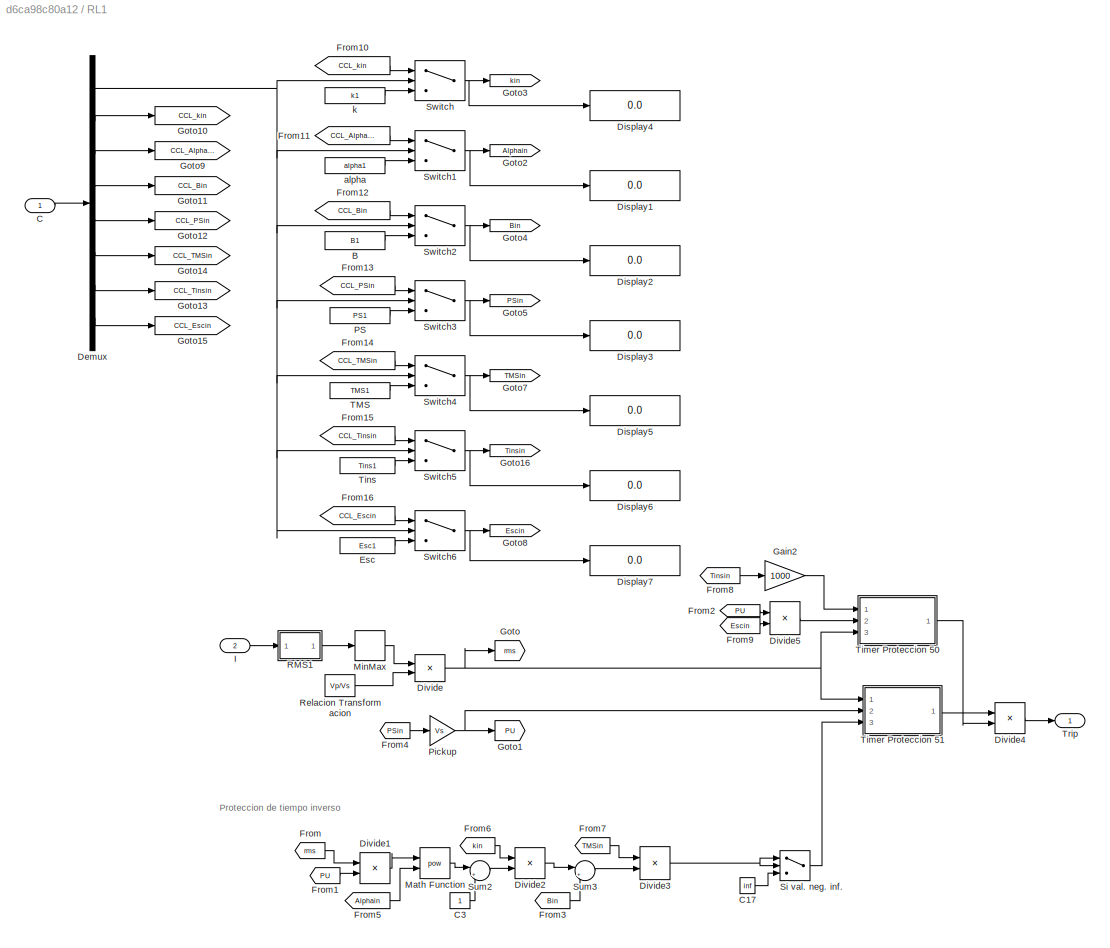
BLOCK [SubSystem] RL1
  Ports = [2, 1]
  RequestExecContextInheritance = off
BLOCK [Constant] RL1/B
  Value = B1
BLOCK [Inport] RL1/C
  IconDisplay = Port number
BLOCK [Constant] RL1/C17
  Value = inf
BLOCK [Constant] RL1/C3
BLOCK [Demux] RL1/Demux
  DisplayOption = bar
  Outputs = 8
  Ports = [1, 8]
BLOCK [Display] RL1/Display1
  Decimation = 1
  Ports = [1]
BLOCK [Display] RL1/Display2
  Decimation = 1
  Ports = [1]
BLOCK [Display] RL1/Display3
  Decimation = 1
  Ports = [1]
BLOCK [Display] RL1/Display4
  Decimation = 1
  Ports = [1]
BLOCK [Display] RL1/Display5
  Decimation = 1
  Ports = [1]
BLOCK [Display] RL1/Display6
  Decimation = 1
  Ports = [1]
BLOCK [Display] RL1/Display7
  Decimation = 1
  Ports = [1]
BLOCK [Product] RL1/Divide
  InputSameDT = off
  Inputs = */
  OutDataTypeStr = Inherit: Inherit via internal rule
  Ports = [2, 1]
  RndMeth = Floor
  SaturateOnIntegerOverflow = off
BLOCK [Product] RL1/Divide1
  InputSameDT = off
  Inputs = */
  OutDataTypeStr = Inherit: Inherit via internal rule
  Ports = [2, 1]
  RndMeth = Floor
  SaturateOnIntegerOverflow = off
BLOCK [Product] RL1/Divide2
  InputSameDT = off
  Inputs = */
  OutDataTypeStr = Inherit: Inherit via internal rule
  Ports = [2, 1]
  RndMeth = Floor
  SaturateOnIntegerOverflow = off
BLOCK [Product] RL1/Divide3
  InputSameDT = off
  Inputs = **
  OutDataTypeStr = Inherit: Inherit via internal rule
  Ports = [2, 1]
  RndMeth = Floor
  SaturateOnIntegerOverflow = off
BLOCK [Product] RL1/Divide4
  InputSameDT = off
  Inputs = **
  OutDataTypeStr = Inherit: Inherit via internal rule
  Ports = [2, 1]
  RndMeth = Floor
  SaturateOnIntegerOverflow = off
BLOCK [Product] RL1/Divide5
  InputSameDT = off
  Inputs = **
  OutDataTypeStr = Inherit: Inherit via internal rule
  Ports = [2, 1]
  RndMeth = Floor
  SaturateOnIntegerOverflow = off
BLOCK [Constant] RL1/Esc
  Value = Esc1
BLOCK [From] RL1/From
  GotoTag = rms
BLOCK [From] RL1/From1
  GotoTag = PU
BLOCK [From] RL1/From10
  GotoTag = CCL_kin
BLOCK [From] RL1/From11
  GotoTag = CCL_Alphain
BLOCK [From] RL1/From12
  GotoTag = CCL_Bin
BLOCK [From] RL1/From13
  GotoTag = CCL_PSin
BLOCK [From] RL1/From14
  GotoTag = CCL_TMSin
BLOCK [From] RL1/From15
  GotoTag = CCL_Tinsin
BLOCK [From] RL1/From16
  GotoTag = CCL_Escin
BLOCK [From] RL1/From2
  GotoTag = PU
BLOCK [From] RL1/From3
  GotoTag = Bin
BLOCK [From] RL1/From4
  GotoTag = PSin
BLOCK [From] RL1/From5
  GotoTag = Alphain
BLOCK [From] RL1/From6
  GotoTag = kin
BLOCK [From] RL1/From7
  GotoTag = TMSin
BLOCK [From] RL1/From8
  GotoTag = Tinsin
BLOCK [From] RL1/From9
  GotoTag = Escin
BLOCK [Gain] RL1/Gain2
  Gain = 1000
  OutDataTypeStr = Inherit: Inherit via internal rule
  ParamDataTypeStr = Inherit: Inherit via internal rule
  SaturateOnIntegerOverflow = off
BLOCK [Goto] RL1/Goto
  GotoTag = rms
BLOCK [Goto] RL1/Goto1
  GotoTag = PU
BLOCK [Goto] RL1/Goto10
  GotoTag = CCL_kin
BLOCK [Goto] RL1/Goto11
  GotoTag = CCL_Bin
BLOCK [Goto] RL1/Goto12
  GotoTag = CCL_PSin
BLOCK [Goto] RL1/Goto13
  GotoTag = CCL_Tinsin
BLOCK [Goto] RL1/Goto14
  GotoTag = CCL_TMSin
BLOCK [Goto] RL1/Goto15
  GotoTag = CCL_Escin
BLOCK [Goto] RL1/Goto16
  GotoTag = Tinsin
BLOCK [Goto] RL1/Goto2
  GotoTag = Alphain
BLOCK [Goto] RL1/Goto3
  GotoTag = kin
BLOCK [Goto] RL1/Goto4
  GotoTag = Bin
BLOCK [Goto] RL1/Goto5
  GotoTag = PSin
BLOCK [Goto] RL1/Goto7
  GotoTag = TMSin
BLOCK [Goto] RL1/Goto8
  GotoTag = Escin
BLOCK [Goto] RL1/Goto9
  GotoTag = CCL_Alphain
BLOCK [Inport] RL1/I
  IconDisplay = Port number
  Port = 2
BLOCK [Math] RL1/Math Function
  Operator = pow
  Ports = [2, 1]
BLOCK [MinMax] RL1/MinMax
  Function = max
  InputSameDT = off
  Ports = [1, 1]
  SaturateOnIntegerOverflow = off
BLOCK [Constant] RL1/PS
  Value = PS1
BLOCK [Gain] RL1/Pickup
  Gain = Vs
  OutDataTypeStr = Inherit: Inherit via internal rule
  ParamDataTypeStr = Inherit: Inherit via internal rule
  SaturateOnIntegerOverflow = off
BLOCK [SubSystem] RL1/RMS1
  Ports = [1, 1]
  RequestExecContextInheritance = off
BLOCK [Abs] RL1/RMS1/Abs
  SaturateOnIntegerOverflow = off
BLOCK [Abs] RL1/RMS1/Abs1
  SaturateOnIntegerOverflow = off
BLOCK [Abs] RL1/RMS1/Abs2
  SaturateOnIntegerOverflow = off
BLOCK [HitCross] RL1/RMS1/Check zero Crossing
  Ports = [1, 1]
BLOCK [HitCross] RL1/RMS1/Check zero Crossing1
  Ports = [1, 1]
BLOCK [HitCross] RL1/RMS1/Check zero Crossing2
  Ports = [1, 1]
BLOCK [Constant] RL1/RMS1/Constant
  Value = F
BLOCK [Demux] RL1/RMS1/Demux
  DisplayOption = bar
  Outputs = 3
  Ports = [1, 3]
BLOCK [Reference] RL1/RMS1/Discrete Derivative  REF=simulink/Discrete/Discrete Derivative
  Ports = [1, 1]
  SourceBlock = simulink/Discrete/Discrete Derivative
  SourceProductBaseCode = SL
  SourceProductName = Simulink
  SourceType = Discrete Derivative
BLOCK [Reference] RL1/RMS1/Discrete Derivative1  REF=simulink/Discrete/Discrete Derivative
  Ports = [1, 1]
  SourceBlock = simulink/Discrete/Discrete Derivative
  SourceProductBaseCode = SL
  SourceProductName = Simulink
  SourceType = Discrete Derivative
BLOCK [Reference] RL1/RMS1/Discrete Derivative2  REF=simulink/Discrete/Discrete Derivative
  Ports = [1, 1]
  SourceBlock = simulink/Discrete/Discrete Derivative
  SourceProductBaseCode = SL
  SourceProductName = Simulink
  SourceType = Discrete Derivative
BLOCK [Product] RL1/RMS1/Divide
  InputSameDT = off
  Inputs = /*
  OutDataTypeStr = Inherit: Inherit via internal rule
  Ports = [2, 1]
  RndMeth = Floor
  SaturateOnIntegerOverflow = off
BLOCK [Gain] RL1/RMS1/Gain
  Gain = 2*pi
  OutDataTypeStr = Inherit: Inherit via internal rule
  ParamDataTypeStr = Inherit: Inherit via internal rule
  SaturateOnIntegerOverflow = off
BLOCK [Gain] RL1/RMS1/Gain1
  OutDataTypeStr = Inherit: Inherit via internal rule
  ParamDataTypeStr = Inherit: Inherit via internal rule
  SaturateOnIntegerOverflow = off
BLOCK [SubSystem] RL1/RMS1/Hold derivative till next zero crossing
  AncestorBlock = powerlib_extras/Discrete \nControl Blocks/Discrete\nSample & Hold
  DialogController = POWERSYS.PowerSysDialog
  Ports = [2, 1]
  RequestExecContextInheritance = off
BLOCK [Outport] RL1/RMS1/Hold derivative till next zero crossing/   
  IconDisplay = Port number
  InitialOutput = 0
BLOCK [Inport] RL1/RMS1/Hold derivative till next zero crossing/In
  IconDisplay = Port number
BLOCK [Memory] RL1/RMS1/Hold derivative till next zero crossing/Memory
BLOCK [Inport] RL1/RMS1/Hold derivative till next zero crossing/S
  IconDisplay = Port number
  Port = 2
BLOCK [Switch] RL1/RMS1/Hold derivative till next zero crossing/Switch
  Threshold = 0.5
BLOCK [SubSystem] RL1/RMS1/Hold derivative till next zero crossing1
  AncestorBlock = powerlib_extras/Discrete \nControl Blocks/Discrete\nSample & Hold
  DialogController = POWERSYS.PowerSysDialog
  Ports = [2, 1]
  RequestExecContextInheritance = off
BLOCK [Outport] RL1/RMS1/Hold derivative till next zero crossing1/   
  IconDisplay = Port number
  InitialOutput = 0
BLOCK [Inport] RL1/RMS1/Hold derivative till next zero crossing1/In
  IconDisplay = Port number
BLOCK [Memory] RL1/RMS1/Hold derivative till next zero crossing1/Memory
BLOCK [Inport] RL1/RMS1/Hold derivative till next zero crossing1/S
  IconDisplay = Port number
  Port = 2
BLOCK [Switch] RL1/RMS1/Hold derivative till next zero crossing1/Switch
  Threshold = 0.5
BLOCK [SubSystem] RL1/RMS1/Hold derivative till next zero crossing2
  AncestorBlock = powerlib_extras/Discrete \nControl Blocks/Discrete\nSample & Hold
  DialogController = POWERSYS.PowerSysDialog
  Ports = [2, 1]
  RequestExecContextInheritance = off
BLOCK [Outport] RL1/RMS1/Hold derivative till next zero crossing2/   
  IconDisplay = Port number
  InitialOutput = 0
BLOCK [Inport] RL1/RMS1/Hold derivative till next zero crossing2/In
  IconDisplay = Port number
BLOCK [Memory] RL1/RMS1/Hold derivative till next zero crossing2/Memory
BLOCK [Inport] RL1/RMS1/Hold derivative till next zero crossing2/S
  IconDisplay = Port number
  Port = 2
BLOCK [Switch] RL1/RMS1/Hold derivative till next zero crossing2/Switch
  Threshold = 0.5
BLOCK [Inport] RL1/RMS1/In1
  IconDisplay = Port number
BLOCK [Mux] RL1/RMS1/Mux
  DisplayOption = bar
  Inputs = 3
  Ports = [3, 1]
BLOCK [Outport] RL1/RMS1/Out1
  IconDisplay = Port number
BLOCK [Constant] RL1/Relacion Transformacion
  Value = Vp/Vs
BLOCK [Switch] RL1/Si val. neg. inf.
  InputSameDT = off
  SaturateOnIntegerOverflow = off
BLOCK [Sum] RL1/Sum2
  IconShape = round
  InputSameDT = off
  Inputs = |+-
  OutDataTypeStr = Inherit: Inherit via internal rule
  Ports = [2, 1]
  SaturateOnIntegerOverflow = off
BLOCK [Sum] RL1/Sum3
  IconShape = round
  InputSameDT = off
  Inputs = |++
  OutDataTypeStr = Inherit: Inherit via internal rule
  Ports = [2, 1]
  SaturateOnIntegerOverflow = off
BLOCK [Switch] RL1/Switch
  Criteria = u2 ~= 0
  InputSameDT = off
  SaturateOnIntegerOverflow = off
BLOCK [Switch] RL1/Switch1
  Criteria = u2 ~= 0
  InputSameDT = off
  SaturateOnIntegerOverflow = off
BLOCK [Switch] RL1/Switch2
  Criteria = u2 ~= 0
  InputSameDT = off
  SaturateOnIntegerOverflow = off
BLOCK [Switch] RL1/Switch3
  Criteria = u2 ~= 0
  InputSameDT = off
  SaturateOnIntegerOverflow = off
BLOCK [Switch] RL1/Switch4
  Criteria = u2 ~= 0
  InputSameDT = off
  SaturateOnIntegerOverflow = off
BLOCK [Switch] RL1/Switch5
  Criteria = u2 ~= 0
  InputSameDT = off
  SaturateOnIntegerOverflow = off
BLOCK [Switch] RL1/Switch6
  Criteria = u2 ~= 0
  InputSameDT = off
  SaturateOnIntegerOverflow = off
BLOCK [Constant] RL1/TMS
  Value = TMS1
BLOCK [SubSystem] RL1/Timer Proteccion 50
  Ports = [3, 1]
  RequestExecContextInheritance = off
BLOCK [Switch] RL1/Timer Proteccion 50/Arranq3
  Criteria = u2 ~= 0
  InputSameDT = off
  SaturateOnIntegerOverflow = off
  Threshold = Ip1
BLOCK [Switch] RL1/Timer Proteccion 50/Arranq6
  Criteria = u2 ~= 0
  InputSameDT = off
  SaturateOnIntegerOverflow = off
  Threshold = Ip1
  ZeroCross = off
BLOCK [Constant] RL1/Timer Proteccion 50/C14
  Value = 0
BLOCK [Constant] RL1/Timer Proteccion 50/C15
  Value = 1000
BLOCK [Constant] RL1/Timer Proteccion 50/C16
BLOCK [RelationalOperator] RL1/Timer Proteccion 50/Condicion arranque1
  InputSameDT = off
  Operator = >
  OutDataTypeStr = boolean
  Ports = [2, 1]
BLOCK [DiscreteIntegrator] RL1/Timer Proteccion 50/Discrete-Time Integrator
  ExternalReset = falling
  ICPrevOutput = DiscIntNeverNeededParam
  ICPrevScaledInput = DiscIntNeverNeededParam
  InitialConditionSetting = Auto
  Ports = [2, 1]
  SampleTime = -1
BLOCK [Inport] RL1/Timer Proteccion 50/Entrada
  IconDisplay = Port number
  Port = 3
BLOCK [Logic] RL1/Timer Proteccion 50/Logical Operator4
  AllPortsSameDT = off
  Operator = NOT
  OutDataTypeStr = boolean
  Ports = [1, 1]
BLOCK [Inport] RL1/Timer Proteccion 50/Pick-Up
  IconDisplay = Port number
  Port = 2
BLOCK [Inport] RL1/Timer Proteccion 50/T.O.
  IconDisplay = Port number
BLOCK [RelationalOperator] RL1/Timer Proteccion 50/Tiempo Disparo1
  InputSameDT = off
  OutDataTypeStr = boolean
  Ports = [2, 1]
BLOCK [Outport] RL1/Timer Proteccion 50/Trip
  IconDisplay = Port number
BLOCK [SubSystem] RL1/Timer Proteccion 51
  Ports = [3, 1]
  RequestExecContextInheritance = off
BLOCK [Switch] RL1/Timer Proteccion 51/Arranq3
  Criteria = u2 ~= 0
  InputSameDT = off
  SaturateOnIntegerOverflow = off
  Threshold = Ip1
BLOCK [Switch] RL1/Timer Proteccion 51/Arranq6
  Criteria = u2 ~= 0
  InputSameDT = off
  SaturateOnIntegerOverflow = off
  Threshold = Ip1
  ZeroCross = off
BLOCK [Constant] RL1/Timer Proteccion 51/C14
  Value = 0
BLOCK [Constant] RL1/Timer Proteccion 51/C15
BLOCK [Constant] RL1/Timer Proteccion 51/C16
BLOCK [RelationalOperator] RL1/Timer Proteccion 51/Condicion arranque1
  InputSameDT = off
  Operator = >
  OutDataTypeStr = boolean
  Ports = [2, 1]
BLOCK [DiscreteIntegrator] RL1/Timer Proteccion 51/Discrete-Time Integrator
  ExternalReset = falling
  ICPrevOutput = DiscIntNeverNeededParam
  ICPrevScaledInput = DiscIntNeverNeededParam
  InitialConditionSetting = Auto
  Ports = [2, 1]
  SampleTime = -1
  gainval = 1
BLOCK [Inport] RL1/Timer Proteccion 51/Entrada
  IconDisplay = Port number
BLOCK [Logic] RL1/Timer Proteccion 51/Logical Operator4
  AllPortsSameDT = off
  Operator = NOT
  OutDataTypeStr = boolean
  Ports = [1, 1]
BLOCK [Inport] RL1/Timer Proteccion 51/Pick-Up
  IconDisplay = Port number
  Port = 2
BLOCK [Inport] RL1/Timer Proteccion 51/T.O.
  IconDisplay = Port number
  Port = 3
BLOCK [RelationalOperator] RL1/Timer Proteccion 51/Tiempo Disparo1
  InputSameDT = off
  OutDataTypeStr = boolean
  Ports = [2, 1]
BLOCK [Outport] RL1/Timer Proteccion 51/Trip
  IconDisplay = Port number
BLOCK [Constant] RL1/Tins
  Value = Tins1
BLOCK [Outport] RL1/Trip
  IconDisplay = Port number
BLOCK [Constant] RL1/alpha
  Value = alpha1
BLOCK [Constant] RL1/k
  Value = k1
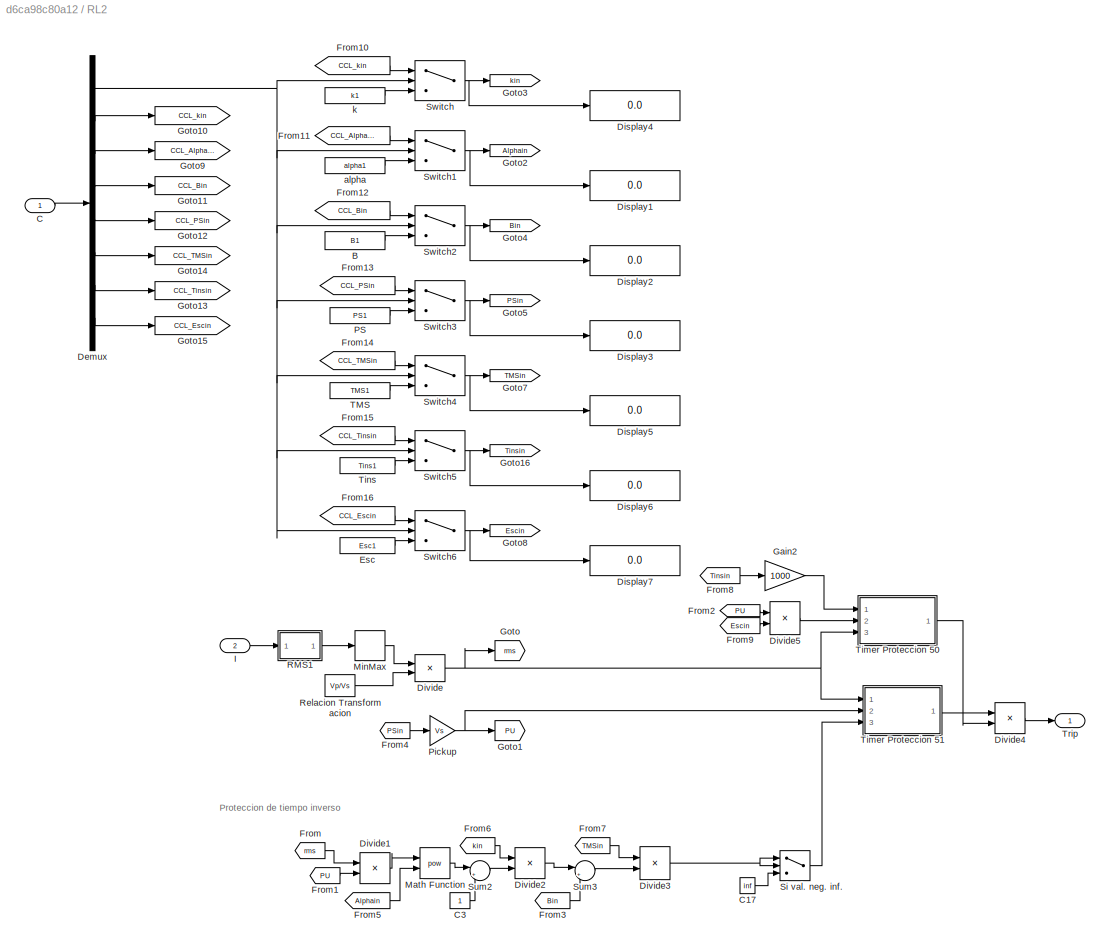
BLOCK [SubSystem] RL2
  Ports = [2, 1]
  RequestExecContextInheritance = off
BLOCK [Constant] RL2/B
  Value = B1
BLOCK [Inport] RL2/C
  IconDisplay = Port number
BLOCK [Constant] RL2/C17
  Value = inf
BLOCK [Constant] RL2/C3
BLOCK [Demux] RL2/Demux
  DisplayOption = bar
  Outputs = 8
  Ports = [1, 8]
BLOCK [Display] RL2/Display1
  Decimation = 1
  Ports = [1]
BLOCK [Display] RL2/Display2
  Decimation = 1
  Ports = [1]
BLOCK [Display] RL2/Display3
  Decimation = 1
  Ports = [1]
BLOCK [Display] RL2/Display4
  Decimation = 1
  Ports = [1]
BLOCK [Display] RL2/Display5
  Decimation = 1
  Ports = [1]
BLOCK [Display] RL2/Display6
  Decimation = 1
  Ports = [1]
BLOCK [Display] RL2/Display7
  Decimation = 1
  Ports = [1]
BLOCK [Product] RL2/Divide
  InputSameDT = off
  Inputs = */
  OutDataTypeStr = Inherit: Inherit via internal rule
  Ports = [2, 1]
  RndMeth = Floor
  SaturateOnIntegerOverflow = off
BLOCK [Product] RL2/Divide1
  InputSameDT = off
  Inputs = */
  OutDataTypeStr = Inherit: Inherit via internal rule
  Ports = [2, 1]
  RndMeth = Floor
  SaturateOnIntegerOverflow = off
BLOCK [Product] RL2/Divide2
  InputSameDT = off
  Inputs = */
  OutDataTypeStr = Inherit: Inherit via internal rule
  Ports = [2, 1]
  RndMeth = Floor
  SaturateOnIntegerOverflow = off
BLOCK [Product] RL2/Divide3
  InputSameDT = off
  Inputs = **
  OutDataTypeStr = Inherit: Inherit via internal rule
  Ports = [2, 1]
  RndMeth = Floor
  SaturateOnIntegerOverflow = off
BLOCK [Product] RL2/Divide4
  InputSameDT = off
  Inputs = **
  OutDataTypeStr = Inherit: Inherit via internal rule
  Ports = [2, 1]
  RndMeth = Floor
  SaturateOnIntegerOverflow = off
BLOCK [Product] RL2/Divide5
  InputSameDT = off
  Inputs = **
  OutDataTypeStr = Inherit: Inherit via internal rule
  Ports = [2, 1]
  RndMeth = Floor
  SaturateOnIntegerOverflow = off
BLOCK [Constant] RL2/Esc
  Value = Esc1
BLOCK [From] RL2/From
  GotoTag = rms
BLOCK [From] RL2/From1
  GotoTag = PU
BLOCK [From] RL2/From10
  GotoTag = CCL_kin
BLOCK [From] RL2/From11
  GotoTag = CCL_Alphain
BLOCK [From] RL2/From12
  GotoTag = CCL_Bin
BLOCK [From] RL2/From13
  GotoTag = CCL_PSin
BLOCK [From] RL2/From14
  GotoTag = CCL_TMSin
BLOCK [From] RL2/From15
  GotoTag = CCL_Tinsin
BLOCK [From] RL2/From16
  GotoTag = CCL_Escin
BLOCK [From] RL2/From2
  GotoTag = PU
BLOCK [From] RL2/From3
  GotoTag = Bin
BLOCK [From] RL2/From4
  GotoTag = PSin
BLOCK [From] RL2/From5
  GotoTag = Alphain
BLOCK [From] RL2/From6
  GotoTag = kin
BLOCK [From] RL2/From7
  GotoTag = TMSin
BLOCK [From] RL2/From8
  GotoTag = Tinsin
BLOCK [From] RL2/From9
  GotoTag = Escin
BLOCK [Gain] RL2/Gain2
  Gain = 1000
  OutDataTypeStr = Inherit: Inherit via internal rule
  ParamDataTypeStr = Inherit: Inherit via internal rule
  SaturateOnIntegerOverflow = off
BLOCK [Goto] RL2/Goto
  GotoTag = rms
BLOCK [Goto] RL2/Goto1
  GotoTag = PU
BLOCK [Goto] RL2/Goto10
  GotoTag = CCL_kin
BLOCK [Goto] RL2/Goto11
  GotoTag = CCL_Bin
BLOCK [Goto] RL2/Goto12
  GotoTag = CCL_PSin
BLOCK [Goto] RL2/Goto13
  GotoTag = CCL_Tinsin
BLOCK [Goto] RL2/Goto14
  GotoTag = CCL_TMSin
BLOCK [Goto] RL2/Goto15
  GotoTag = CCL_Escin
BLOCK [Goto] RL2/Goto16
  GotoTag = Tinsin
BLOCK [Goto] RL2/Goto2
  GotoTag = Alphain
BLOCK [Goto] RL2/Goto3
  GotoTag = kin
BLOCK [Goto] RL2/Goto4
  GotoTag = Bin
BLOCK [Goto] RL2/Goto5
  GotoTag = PSin
BLOCK [Goto] RL2/Goto7
  GotoTag = TMSin
BLOCK [Goto] RL2/Goto8
  GotoTag = Escin
BLOCK [Goto] RL2/Goto9
  GotoTag = CCL_Alphain
BLOCK [Inport] RL2/I
  IconDisplay = Port number
  Port = 2
BLOCK [Math] RL2/Math Function
  Operator = pow
  Ports = [2, 1]
BLOCK [MinMax] RL2/MinMax
  Function = max
  InputSameDT = off
  Ports = [1, 1]
  SaturateOnIntegerOverflow = off
BLOCK [Constant] RL2/PS
  Value = PS1
BLOCK [Gain] RL2/Pickup
  Gain = Vs
  OutDataTypeStr = Inherit: Inherit via internal rule
  ParamDataTypeStr = Inherit: Inherit via internal rule
  SaturateOnIntegerOverflow = off
BLOCK [SubSystem] RL2/RMS1
  Ports = [1, 1]
  RequestExecContextInheritance = off
BLOCK [Abs] RL2/RMS1/Abs
  SaturateOnIntegerOverflow = off
BLOCK [Abs] RL2/RMS1/Abs1
  SaturateOnIntegerOverflow = off
BLOCK [Abs] RL2/RMS1/Abs2
  SaturateOnIntegerOverflow = off
BLOCK [HitCross] RL2/RMS1/Check zero Crossing
  Ports = [1, 1]
BLOCK [HitCross] RL2/RMS1/Check zero Crossing1
  Ports = [1, 1]
BLOCK [HitCross] RL2/RMS1/Check zero Crossing2
  Ports = [1, 1]
BLOCK [Constant] RL2/RMS1/Constant
  Value = F
BLOCK [Demux] RL2/RMS1/Demux
  DisplayOption = bar
  Outputs = 3
  Ports = [1, 3]
BLOCK [Reference] RL2/RMS1/Discrete Derivative  REF=simulink/Discrete/Discrete Derivative
  Ports = [1, 1]
  SourceBlock = simulink/Discrete/Discrete Derivative
  SourceProductBaseCode = SL
  SourceProductName = Simulink
  SourceType = Discrete Derivative
BLOCK [Reference] RL2/RMS1/Discrete Derivative1  REF=simulink/Discrete/Discrete Derivative
  Ports = [1, 1]
  SourceBlock = simulink/Discrete/Discrete Derivative
  SourceProductBaseCode = SL
  SourceProductName = Simulink
  SourceType = Discrete Derivative
BLOCK [Reference] RL2/RMS1/Discrete Derivative2  REF=simulink/Discrete/Discrete Derivative
  Ports = [1, 1]
  SourceBlock = simulink/Discrete/Discrete Derivative
  SourceProductBaseCode = SL
  SourceProductName = Simulink
  SourceType = Discrete Derivative
BLOCK [Product] RL2/RMS1/Divide
  InputSameDT = off
  Inputs = /*
  OutDataTypeStr = Inherit: Inherit via internal rule
  Ports = [2, 1]
  RndMeth = Floor
  SaturateOnIntegerOverflow = off
BLOCK [Gain] RL2/RMS1/Gain
  Gain = 2*pi
  OutDataTypeStr = Inherit: Inherit via internal rule
  ParamDataTypeStr = Inherit: Inherit via internal rule
  SaturateOnIntegerOverflow = off
BLOCK [Gain] RL2/RMS1/Gain1
  OutDataTypeStr = Inherit: Inherit via internal rule
  ParamDataTypeStr = Inherit: Inherit via internal rule
  SaturateOnIntegerOverflow = off
BLOCK [SubSystem] RL2/RMS1/Hold derivative till next zero crossing
  AncestorBlock = powerlib_extras/Discrete \nControl Blocks/Discrete\nSample & Hold
  DialogController = POWERSYS.PowerSysDialog
  Ports = [2, 1]
  RequestExecContextInheritance = off
BLOCK [Outport] RL2/RMS1/Hold derivative till next zero crossing/   
  IconDisplay = Port number
  InitialOutput = 0
BLOCK [Inport] RL2/RMS1/Hold derivative till next zero crossing/In
  IconDisplay = Port number
BLOCK [Memory] RL2/RMS1/Hold derivative till next zero crossing/Memory
BLOCK [Inport] RL2/RMS1/Hold derivative till next zero crossing/S
  IconDisplay = Port number
  Port = 2
BLOCK [Switch] RL2/RMS1/Hold derivative till next zero crossing/Switch
  Threshold = 0.5
BLOCK [SubSystem] RL2/RMS1/Hold derivative till next zero crossing1
  AncestorBlock = powerlib_extras/Discrete \nControl Blocks/Discrete\nSample & Hold
  DialogController = POWERSYS.PowerSysDialog
  Ports = [2, 1]
  RequestExecContextInheritance = off
BLOCK [Outport] RL2/RMS1/Hold derivative till next zero crossing1/   
  IconDisplay = Port number
  InitialOutput = 0
BLOCK [Inport] RL2/RMS1/Hold derivative till next zero crossing1/In
  IconDisplay = Port number
BLOCK [Memory] RL2/RMS1/Hold derivative till next zero crossing1/Memory
BLOCK [Inport] RL2/RMS1/Hold derivative till next zero crossing1/S
  IconDisplay = Port number
  Port = 2
BLOCK [Switch] RL2/RMS1/Hold derivative till next zero crossing1/Switch
  Threshold = 0.5
BLOCK [SubSystem] RL2/RMS1/Hold derivative till next zero crossing2
  AncestorBlock = powerlib_extras/Discrete \nControl Blocks/Discrete\nSample & Hold
  DialogController = POWERSYS.PowerSysDialog
  Ports = [2, 1]
  RequestExecContextInheritance = off
BLOCK [Outport] RL2/RMS1/Hold derivative till next zero crossing2/   
  IconDisplay = Port number
  InitialOutput = 0
BLOCK [Inport] RL2/RMS1/Hold derivative till next zero crossing2/In
  IconDisplay = Port number
BLOCK [Memory] RL2/RMS1/Hold derivative till next zero crossing2/Memory
BLOCK [Inport] RL2/RMS1/Hold derivative till next zero crossing2/S
  IconDisplay = Port number
  Port = 2
BLOCK [Switch] RL2/RMS1/Hold derivative till next zero crossing2/Switch
  Threshold = 0.5
BLOCK [Inport] RL2/RMS1/In1
  IconDisplay = Port number
BLOCK [Mux] RL2/RMS1/Mux
  DisplayOption = bar
  Inputs = 3
  Ports = [3, 1]
BLOCK [Outport] RL2/RMS1/Out1
  IconDisplay = Port number
BLOCK [Constant] RL2/Relacion Transformacion
  Value = Vp/Vs
BLOCK [Switch] RL2/Si val. neg. inf.
  InputSameDT = off
  SaturateOnIntegerOverflow = off
BLOCK [Sum] RL2/Sum2
  IconShape = round
  InputSameDT = off
  Inputs = |+-
  OutDataTypeStr = Inherit: Inherit via internal rule
  Ports = [2, 1]
  SaturateOnIntegerOverflow = off
BLOCK [Sum] RL2/Sum3
  IconShape = round
  InputSameDT = off
  Inputs = |++
  OutDataTypeStr = Inherit: Inherit via internal rule
  Ports = [2, 1]
  SaturateOnIntegerOverflow = off
BLOCK [Switch] RL2/Switch
  Criteria = u2 ~= 0
  InputSameDT = off
  SaturateOnIntegerOverflow = off
BLOCK [Switch] RL2/Switch1
  Criteria = u2 ~= 0
  InputSameDT = off
  SaturateOnIntegerOverflow = off
BLOCK [Switch] RL2/Switch2
  Criteria = u2 ~= 0
  InputSameDT = off
  SaturateOnIntegerOverflow = off
BLOCK [Switch] RL2/Switch3
  Criteria = u2 ~= 0
  InputSameDT = off
  SaturateOnIntegerOverflow = off
BLOCK [Switch] RL2/Switch4
  Criteria = u2 ~= 0
  InputSameDT = off
  SaturateOnIntegerOverflow = off
BLOCK [Switch] RL2/Switch5
  Criteria = u2 ~= 0
  InputSameDT = off
  SaturateOnIntegerOverflow = off
BLOCK [Switch] RL2/Switch6
  Criteria = u2 ~= 0
  InputSameDT = off
  SaturateOnIntegerOverflow = off
BLOCK [Constant] RL2/TMS
  Value = TMS1
BLOCK [SubSystem] RL2/Timer Proteccion 50
  Ports = [3, 1]
  RequestExecContextInheritance = off
BLOCK [Switch] RL2/Timer Proteccion 50/Arranq3
  Criteria = u2 ~= 0
  InputSameDT = off
  SaturateOnIntegerOverflow = off
  Threshold = Ip1
BLOCK [Switch] RL2/Timer Proteccion 50/Arranq6
  Criteria = u2 ~= 0
  InputSameDT = off
  SaturateOnIntegerOverflow = off
  Threshold = Ip1
  ZeroCross = off
BLOCK [Constant] RL2/Timer Proteccion 50/C14
  Value = 0
BLOCK [Constant] RL2/Timer Proteccion 50/C15
  Value = 1000
BLOCK [Constant] RL2/Timer Proteccion 50/C16
BLOCK [RelationalOperator] RL2/Timer Proteccion 50/Condicion arranque1
  InputSameDT = off
  Operator = >
  OutDataTypeStr = boolean
  Ports = [2, 1]
BLOCK [DiscreteIntegrator] RL2/Timer Proteccion 50/Discrete-Time Integrator
  ExternalReset = falling
  ICPrevOutput = DiscIntNeverNeededParam
  ICPrevScaledInput = DiscIntNeverNeededParam
  InitialConditionSetting = Auto
  Ports = [2, 1]
  SampleTime = -1
BLOCK [Inport] RL2/Timer Proteccion 50/Entrada
  IconDisplay = Port number
  Port = 3
BLOCK [Logic] RL2/Timer Proteccion 50/Logical Operator4
  AllPortsSameDT = off
  Operator = NOT
  OutDataTypeStr = boolean
  Ports = [1, 1]
BLOCK [Inport] RL2/Timer Proteccion 50/Pick-Up
  IconDisplay = Port number
  Port = 2
BLOCK [Inport] RL2/Timer Proteccion 50/T.O.
  IconDisplay = Port number
BLOCK [RelationalOperator] RL2/Timer Proteccion 50/Tiempo Disparo1
  InputSameDT = off
  OutDataTypeStr = boolean
  Ports = [2, 1]
BLOCK [Outport] RL2/Timer Proteccion 50/Trip
  IconDisplay = Port number
BLOCK [SubSystem] RL2/Timer Proteccion 51
  Ports = [3, 1]
  RequestExecContextInheritance = off
BLOCK [Switch] RL2/Timer Proteccion 51/Arranq3
  Criteria = u2 ~= 0
  InputSameDT = off
  SaturateOnIntegerOverflow = off
  Threshold = Ip1
BLOCK [Switch] RL2/Timer Proteccion 51/Arranq6
  Criteria = u2 ~= 0
  InputSameDT = off
  SaturateOnIntegerOverflow = off
  Threshold = Ip1
  ZeroCross = off
BLOCK [Constant] RL2/Timer Proteccion 51/C14
  Value = 0
BLOCK [Constant] RL2/Timer Proteccion 51/C15
BLOCK [Constant] RL2/Timer Proteccion 51/C16
BLOCK [RelationalOperator] RL2/Timer Proteccion 51/Condicion arranque1
  InputSameDT = off
  Operator = >
  OutDataTypeStr = boolean
  Ports = [2, 1]
BLOCK [DiscreteIntegrator] RL2/Timer Proteccion 51/Discrete-Time Integrator
  ExternalReset = falling
  ICPrevOutput = DiscIntNeverNeededParam
  ICPrevScaledInput = DiscIntNeverNeededParam
  InitialConditionSetting = Auto
  Ports = [2, 1]
  SampleTime = -1
  gainval = 1
BLOCK [Inport] RL2/Timer Proteccion 51/Entrada
  IconDisplay = Port number
BLOCK [Logic] RL2/Timer Proteccion 51/Logical Operator4
  AllPortsSameDT = off
  Operator = NOT
  OutDataTypeStr = boolean
  Ports = [1, 1]
BLOCK [Inport] RL2/Timer Proteccion 51/Pick-Up
  IconDisplay = Port number
  Port = 2
BLOCK [Inport] RL2/Timer Proteccion 51/T.O.
  IconDisplay = Port number
  Port = 3
BLOCK [RelationalOperator] RL2/Timer Proteccion 51/Tiempo Disparo1
  InputSameDT = off
  OutDataTypeStr = boolean
  Ports = [2, 1]
BLOCK [Outport] RL2/Timer Proteccion 51/Trip
  IconDisplay = Port number
BLOCK [Constant] RL2/Tins
  Value = Tins1
BLOCK [Outport] RL2/Trip
  IconDisplay = Port number
BLOCK [Constant] RL2/alpha
  Value = alpha1
BLOCK [Constant] RL2/k
  Value = k1
BLOCK [SubSystem] RL3
  Ports = [2, 1]
  RequestExecContextInheritance = off
BLOCK [Constant] RL3/B
  Value = B1
BLOCK [Inport] RL3/C
  IconDisplay = Port number
BLOCK [Constant] RL3/C17
  Value = inf
BLOCK [Constant] RL3/C3
BLOCK [Demux] RL3/Demux
  DisplayOption = bar
  Outputs = 8
  Ports = [1, 8]
BLOCK [Display] RL3/Display1
  Decimation = 1
  Ports = [1]
BLOCK [Display] RL3/Display2
  Decimation = 1
  Ports = [1]
BLOCK [Display] RL3/Display3
  Decimation = 1
  Ports = [1]
BLOCK [Display] RL3/Display4
  Decimation = 1
  Ports = [1]
BLOCK [Display] RL3/Display5
  Decimation = 1
  Ports = [1]
BLOCK [Display] RL3/Display6
  Decimation = 1
  Ports = [1]
BLOCK [Display] RL3/Display7
  Decimation = 1
  Ports = [1]
BLOCK [Product] RL3/Divide
  InputSameDT = off
  Inputs = */
  OutDataTypeStr = Inherit: Inherit via internal rule
  Ports = [2, 1]
  RndMeth = Floor
  SaturateOnIntegerOverflow = off
BLOCK [Product] RL3/Divide1
  InputSameDT = off
  Inputs = */
  OutDataTypeStr = Inherit: Inherit via internal rule
  Ports = [2, 1]
  RndMeth = Floor
  SaturateOnIntegerOverflow = off
BLOCK [Product] RL3/Divide2
  InputSameDT = off
  Inputs = */
  OutDataTypeStr = Inherit: Inherit via internal rule
  Ports = [2, 1]
  RndMeth = Floor
  SaturateOnIntegerOverflow = off
BLOCK [Product] RL3/Divide3
  InputSameDT = off
  Inputs = **
  OutDataTypeStr = Inherit: Inherit via internal rule
  Ports = [2, 1]
  RndMeth = Floor
  SaturateOnIntegerOverflow = off
BLOCK [Product] RL3/Divide4
  InputSameDT = off
  Inputs = **
  OutDataTypeStr = Inherit: Inherit via internal rule
  Ports = [2, 1]
  RndMeth = Floor
  SaturateOnIntegerOverflow = off
BLOCK [Product] RL3/Divide5
  InputSameDT = off
  Inputs = **
  OutDataTypeStr = Inherit: Inherit via internal rule
  Ports = [2, 1]
  RndMeth = Floor
  SaturateOnIntegerOverflow = off
BLOCK [Constant] RL3/Esc
  Value = Esc1
BLOCK [From] RL3/From
  GotoTag = rms
BLOCK [From] RL3/From1
  GotoTag = PU
BLOCK [From] RL3/From10
  GotoTag = CCL_kin
BLOCK [From] RL3/From11
  GotoTag = CCL_Alphain
BLOCK [From] RL3/From12
  GotoTag = CCL_Bin
BLOCK [From] RL3/From13
  GotoTag = CCL_PSin
BLOCK [From] RL3/From14
  GotoTag = CCL_TMSin
BLOCK [From] RL3/From15
  GotoTag = CCL_Tinsin
BLOCK [From] RL3/From16
  GotoTag = CCL_Escin
BLOCK [From] RL3/From2
  GotoTag = PU
BLOCK [From] RL3/From3
  GotoTag = Bin
BLOCK [From] RL3/From4
  GotoTag = PSin
BLOCK [From] RL3/From5
  GotoTag = Alphain
BLOCK [From] RL3/From6
  GotoTag = kin
BLOCK [From] RL3/From7
  GotoTag = TMSin
BLOCK [From] RL3/From8
  GotoTag = Tinsin
BLOCK [From] RL3/From9
  GotoTag = Escin
BLOCK [Gain] RL3/Gain2
  Gain = 1000
  OutDataTypeStr = Inherit: Inherit via internal rule
  ParamDataTypeStr = Inherit: Inherit via internal rule
  SaturateOnIntegerOverflow = off
BLOCK [Goto] RL3/Goto
  GotoTag = rms
BLOCK [Goto] RL3/Goto1
  GotoTag = PU
BLOCK [Goto] RL3/Goto10
  GotoTag = CCL_kin
BLOCK [Goto] RL3/Goto11
  GotoTag = CCL_Bin
BLOCK [Goto] RL3/Goto12
  GotoTag = CCL_PSin
BLOCK [Goto] RL3/Goto13
  GotoTag = CCL_Tinsin
BLOCK [Goto] RL3/Goto14
  GotoTag = CCL_TMSin
BLOCK [Goto] RL3/Goto15
  GotoTag = CCL_Escin
BLOCK [Goto] RL3/Goto16
  GotoTag = Tinsin
BLOCK [Goto] RL3/Goto2
  GotoTag = Alphain
BLOCK [Goto] RL3/Goto3
  GotoTag = kin
BLOCK [Goto] RL3/Goto4
  GotoTag = Bin
BLOCK [Goto] RL3/Goto5
  GotoTag = PSin
BLOCK [Goto] RL3/Goto7
  GotoTag = TMSin
BLOCK [Goto] RL3/Goto8
  GotoTag = Escin
BLOCK [Goto] RL3/Goto9
  GotoTag = CCL_Alphain
BLOCK [Inport] RL3/I
  IconDisplay = Port number
  Port = 2
BLOCK [Math] RL3/Math Function
  Operator = pow
  Ports = [2, 1]
BLOCK [MinMax] RL3/MinMax
  Function = max
  InputSameDT = off
  Ports = [1, 1]
  SaturateOnIntegerOverflow = off
BLOCK [Constant] RL3/PS
  Value = PS1
BLOCK [Gain] RL3/Pickup
  Gain = Vs
  OutDataTypeStr = Inherit: Inherit via internal rule
  ParamDataTypeStr = Inherit: Inherit via internal rule
  SaturateOnIntegerOverflow = off
BLOCK [SubSystem] RL3/RMS1
  Ports = [1, 1]
  RequestExecContextInheritance = off
BLOCK [Abs] RL3/RMS1/Abs
  SaturateOnIntegerOverflow = off
BLOCK [Abs] RL3/RMS1/Abs1
  SaturateOnIntegerOverflow = off
BLOCK [Abs] RL3/RMS1/Abs2
  SaturateOnIntegerOverflow = off
BLOCK [HitCross] RL3/RMS1/Check zero Crossing
  Ports = [1, 1]
BLOCK [HitCross] RL3/RMS1/Check zero Crossing1
  Ports = [1, 1]
BLOCK [HitCross] RL3/RMS1/Check zero Crossing2
  Ports = [1, 1]
BLOCK [Constant] RL3/RMS1/Constant
  Value = F
BLOCK [Demux] RL3/RMS1/Demux
  DisplayOption = bar
  Outputs = 3
  Ports = [1, 3]
BLOCK [Reference] RL3/RMS1/Discrete Derivative  REF=simulink/Discrete/Discrete Derivative
  Ports = [1, 1]
  SourceBlock = simulink/Discrete/Discrete Derivative
  SourceProductBaseCode = SL
  SourceProductName = Simulink
  SourceType = Discrete Derivative
BLOCK [Reference] RL3/RMS1/Discrete Derivative1  REF=simulink/Discrete/Discrete Derivative
  Ports = [1, 1]
  SourceBlock = simulink/Discrete/Discrete Derivative
  SourceProductBaseCode = SL
  SourceProductName = Simulink
  SourceType = Discrete Derivative
BLOCK [Reference] RL3/RMS1/Discrete Derivative2  REF=simulink/Discrete/Discrete Derivative
  Ports = [1, 1]
  SourceBlock = simulink/Discrete/Discrete Derivative
  SourceProductBaseCode = SL
  SourceProductName = Simulink
  SourceType = Discrete Derivative
BLOCK [Product] RL3/RMS1/Divide
  InputSameDT = off
  Inputs = /*
  OutDataTypeStr = Inherit: Inherit via internal rule
  Ports = [2, 1]
  RndMeth = Floor
  SaturateOnIntegerOverflow = off
BLOCK [Gain] RL3/RMS1/Gain
  Gain = 2*pi
  OutDataTypeStr = Inherit: Inherit via internal rule
  ParamDataTypeStr = Inherit: Inherit via internal rule
  SaturateOnIntegerOverflow = off
BLOCK [Gain] RL3/RMS1/Gain1
  OutDataTypeStr = Inherit: Inherit via internal rule
  ParamDataTypeStr = Inherit: Inherit via internal rule
  SaturateOnIntegerOverflow = off
BLOCK [SubSystem] RL3/RMS1/Hold derivative till next zero crossing
  AncestorBlock = powerlib_extras/Discrete \nControl Blocks/Discrete\nSample & Hold
  DialogController = POWERSYS.PowerSysDialog
  Ports = [2, 1]
  RequestExecContextInheritance = off
BLOCK [Outport] RL3/RMS1/Hold derivative till next zero crossing/   
  IconDisplay = Port number
  InitialOutput = 0
BLOCK [Inport] RL3/RMS1/Hold derivative till next zero crossing/In
  IconDisplay = Port number
BLOCK [Memory] RL3/RMS1/Hold derivative till next zero crossing/Memory
BLOCK [Inport] RL3/RMS1/Hold derivative till next zero crossing/S
  IconDisplay = Port number
  Port = 2
BLOCK [Switch] RL3/RMS1/Hold derivative till next zero crossing/Switch
  Threshold = 0.5
BLOCK [SubSystem] RL3/RMS1/Hold derivative till next zero crossing1
  AncestorBlock = powerlib_extras/Discrete \nControl Blocks/Discrete\nSample & Hold
  DialogController = POWERSYS.PowerSysDialog
  Ports = [2, 1]
  RequestExecContextInheritance = off
BLOCK [Outport] RL3/RMS1/Hold derivative till next zero crossing1/   
  IconDisplay = Port number
  InitialOutput = 0
BLOCK [Inport] RL3/RMS1/Hold derivative till next zero crossing1/In
  IconDisplay = Port number
BLOCK [Memory] RL3/RMS1/Hold derivative till next zero crossing1/Memory
BLOCK [Inport] RL3/RMS1/Hold derivative till next zero crossing1/S
  IconDisplay = Port number
  Port = 2
BLOCK [Switch] RL3/RMS1/Hold derivative till next zero crossing1/Switch
  Threshold = 0.5
BLOCK [SubSystem] RL3/RMS1/Hold derivative till next zero crossing2
  AncestorBlock = powerlib_extras/Discrete \nControl Blocks/Discrete\nSample & Hold
  DialogController = POWERSYS.PowerSysDialog
  Ports = [2, 1]
  RequestExecContextInheritance = off
BLOCK [Outport] RL3/RMS1/Hold derivative till next zero crossing2/   
  IconDisplay = Port number
  InitialOutput = 0
BLOCK [Inport] RL3/RMS1/Hold derivative till next zero crossing2/In
  IconDisplay = Port number
BLOCK [Memory] RL3/RMS1/Hold derivative till next zero crossing2/Memory
BLOCK [Inport] RL3/RMS1/Hold derivative till next zero crossing2/S
  IconDisplay = Port number
  Port = 2
BLOCK [Switch] RL3/RMS1/Hold derivative till next zero crossing2/Switch
  Threshold = 0.5
BLOCK [Inport] RL3/RMS1/In1
  IconDisplay = Port number
BLOCK [Mux] RL3/RMS1/Mux
  DisplayOption = bar
  Inputs = 3
  Ports = [3, 1]
BLOCK [Outport] RL3/RMS1/Out1
  IconDisplay = Port number
BLOCK [Constant] RL3/Relacion Transformacion
  Value = Vp/Vs
BLOCK [Switch] RL3/Si val. neg. inf.
  InputSameDT = off
  SaturateOnIntegerOverflow = off
BLOCK [Sum] RL3/Sum2
  IconShape = round
  InputSameDT = off
  Inputs = |+-
  OutDataTypeStr = Inherit: Inherit via internal rule
  Ports = [2, 1]
  SaturateOnIntegerOverflow = off
BLOCK [Sum] RL3/Sum3
  IconShape = round
  InputSameDT = off
  Inputs = |++
  OutDataTypeStr = Inherit: Inherit via internal rule
  Ports = [2, 1]
  SaturateOnIntegerOverflow = off
BLOCK [Switch] RL3/Switch
  Criteria = u2 ~= 0
  InputSameDT = off
  SaturateOnIntegerOverflow = off
BLOCK [Switch] RL3/Switch1
  Criteria = u2 ~= 0
  InputSameDT = off
  SaturateOnIntegerOverflow = off
BLOCK [Switch] RL3/Switch2
  Criteria = u2 ~= 0
  InputSameDT = off
  SaturateOnIntegerOverflow = off
BLOCK [Switch] RL3/Switch3
  Criteria = u2 ~= 0
  InputSameDT = off
  SaturateOnIntegerOverflow = off
BLOCK [Switch] RL3/Switch4
  Criteria = u2 ~= 0
  InputSameDT = off
  SaturateOnIntegerOverflow = off
BLOCK [Switch] RL3/Switch5
  Criteria = u2 ~= 0
  InputSameDT = off
  SaturateOnIntegerOverflow = off
BLOCK [Switch] RL3/Switch6
  Criteria = u2 ~= 0
  InputSameDT = off
  SaturateOnIntegerOverflow = off
BLOCK [Constant] RL3/TMS
  Value = TMS1
BLOCK [SubSystem] RL3/Timer Proteccion 50
  Ports = [3, 1]
  RequestExecContextInheritance = off
BLOCK [Switch] RL3/Timer Proteccion 50/Arranq3
  Criteria = u2 ~= 0
  InputSameDT = off
  SaturateOnIntegerOverflow = off
  Threshold = Ip1
BLOCK [Switch] RL3/Timer Proteccion 50/Arranq6
  Criteria = u2 ~= 0
  InputSameDT = off
  SaturateOnIntegerOverflow = off
  Threshold = Ip1
  ZeroCross = off
BLOCK [Constant] RL3/Timer Proteccion 50/C14
  Value = 0
BLOCK [Constant] RL3/Timer Proteccion 50/C15
  Value = 1000
BLOCK [Constant] RL3/Timer Proteccion 50/C16
BLOCK [RelationalOperator] RL3/Timer Proteccion 50/Condicion arranque1
  InputSameDT = off
  Operator = >
  OutDataTypeStr = boolean
  Ports = [2, 1]
BLOCK [DiscreteIntegrator] RL3/Timer Proteccion 50/Discrete-Time Integrator
  ExternalReset = falling
  ICPrevOutput = DiscIntNeverNeededParam
  ICPrevScaledInput = DiscIntNeverNeededParam
  InitialConditionSetting = Auto
  Ports = [2, 1]
  SampleTime = -1
BLOCK [Inport] RL3/Timer Proteccion 50/Entrada
  IconDisplay = Port number
  Port = 3
BLOCK [Logic] RL3/Timer Proteccion 50/Logical Operator4
  AllPortsSameDT = off
  Operator = NOT
  OutDataTypeStr = boolean
  Ports = [1, 1]
BLOCK [Inport] RL3/Timer Proteccion 50/Pick-Up
  IconDisplay = Port number
  Port = 2
BLOCK [Inport] RL3/Timer Proteccion 50/T.O.
  IconDisplay = Port number
BLOCK [RelationalOperator] RL3/Timer Proteccion 50/Tiempo Disparo1
  InputSameDT = off
  OutDataTypeStr = boolean
  Ports = [2, 1]
BLOCK [Outport] RL3/Timer Proteccion 50/Trip
  IconDisplay = Port number
BLOCK [SubSystem] RL3/Timer Proteccion 51
  Ports = [3, 1]
  RequestExecContextInheritance = off
BLOCK [Switch] RL3/Timer Proteccion 51/Arranq3
  Criteria = u2 ~= 0
  InputSameDT = off
  SaturateOnIntegerOverflow = off
  Threshold = Ip1
BLOCK [Switch] RL3/Timer Proteccion 51/Arranq6
  Criteria = u2 ~= 0
  InputSameDT = off
  SaturateOnIntegerOverflow = off
  Threshold = Ip1
  ZeroCross = off
BLOCK [Constant] RL3/Timer Proteccion 51/C14
  Value = 0
BLOCK [Constant] RL3/Timer Proteccion 51/C15
BLOCK [Constant] RL3/Timer Proteccion 51/C16
BLOCK [RelationalOperator] RL3/Timer Proteccion 51/Condicion arranque1
  InputSameDT = off
  Operator = >
  OutDataTypeStr = boolean
  Ports = [2, 1]
BLOCK [DiscreteIntegrator] RL3/Timer Proteccion 51/Discrete-Time Integrator
  ExternalReset = falling
  ICPrevOutput = DiscIntNeverNeededParam
  ICPrevScaledInput = DiscIntNeverNeededParam
  InitialConditionSetting = Auto
  Ports = [2, 1]
  SampleTime = -1
  gainval = 1
BLOCK [Inport] RL3/Timer Proteccion 51/Entrada
  IconDisplay = Port number
BLOCK [Logic] RL3/Timer Proteccion 51/Logical Operator4
  AllPortsSameDT = off
  Operator = NOT
  OutDataTypeStr = boolean
  Ports = [1, 1]
BLOCK [Inport] RL3/Timer Proteccion 51/Pick-Up
  IconDisplay = Port number
  Port = 2
BLOCK [Inport] RL3/Timer Proteccion 51/T.O.
  IconDisplay = Port number
  Port = 3
BLOCK [RelationalOperator] RL3/Timer Proteccion 51/Tiempo Disparo1
  InputSameDT = off
  OutDataTypeStr = boolean
  Ports = [2, 1]
BLOCK [Outport] RL3/Timer Proteccion 51/Trip
  IconDisplay = Port number
BLOCK [Constant] RL3/Tins
  Value = Tins1
BLOCK [Outport] RL3/Trip
  IconDisplay = Port number
BLOCK [Constant] RL3/alpha
  Value = alpha1
BLOCK [Constant] RL3/k
  Value = k1
BLOCK [SubSystem] RL4
  Ports = [2, 1]
  RequestExecContextInheritance = off
BLOCK [Constant] RL4/B
  Value = B1
BLOCK [Inport] RL4/C
  IconDisplay = Port number
BLOCK [Constant] RL4/C17
  Value = inf
BLOCK [Constant] RL4/C3
BLOCK [Demux] RL4/Demux
  DisplayOption = bar
  Outputs = 8
  Ports = [1, 8]
BLOCK [Display] RL4/Display1
  Decimation = 1
  Ports = [1]
BLOCK [Display] RL4/Display2
  Decimation = 1
  Ports = [1]
BLOCK [Display] RL4/Display3
  Decimation = 1
  Ports = [1]
BLOCK [Display] RL4/Display4
  Decimation = 1
  Ports = [1]
BLOCK [Display] RL4/Display5
  Decimation = 1
  Ports = [1]
BLOCK [Display] RL4/Display6
  Decimation = 1
  Ports = [1]
BLOCK [Display] RL4/Display7
  Decimation = 1
  Ports = [1]
BLOCK [Product] RL4/Divide
  InputSameDT = off
  Inputs = */
  OutDataTypeStr = Inherit: Inherit via internal rule
  Ports = [2, 1]
  RndMeth = Floor
  SaturateOnIntegerOverflow = off
BLOCK [Product] RL4/Divide1
  InputSameDT = off
  Inputs = */
  OutDataTypeStr = Inherit: Inherit via internal rule
  Ports = [2, 1]
  RndMeth = Floor
  SaturateOnIntegerOverflow = off
BLOCK [Product] RL4/Divide2
  InputSameDT = off
  Inputs = */
  OutDataTypeStr = Inherit: Inherit via internal rule
  Ports = [2, 1]
  RndMeth = Floor
  SaturateOnIntegerOverflow = off
BLOCK [Product] RL4/Divide3
  InputSameDT = off
  Inputs = **
  OutDataTypeStr = Inherit: Inherit via internal rule
  Ports = [2, 1]
  RndMeth = Floor
  SaturateOnIntegerOverflow = off
BLOCK [Product] RL4/Divide4
  InputSameDT = off
  Inputs = **
  OutDataTypeStr = Inherit: Inherit via internal rule
  Ports = [2, 1]
  RndMeth = Floor
  SaturateOnIntegerOverflow = off
BLOCK [Product] RL4/Divide5
  InputSameDT = off
  Inputs = **
  OutDataTypeStr = Inherit: Inherit via internal rule
  Ports = [2, 1]
  RndMeth = Floor
  SaturateOnIntegerOverflow = off
BLOCK [Constant] RL4/Esc
  Value = Esc1
BLOCK [From] RL4/From
  GotoTag = rms
BLOCK [From] RL4/From1
  GotoTag = PU
BLOCK [From] RL4/From10
  GotoTag = CCL_kin
BLOCK [From] RL4/From11
  GotoTag = CCL_Alphain
BLOCK [From] RL4/From12
  GotoTag = CCL_Bin
BLOCK [From] RL4/From13
  GotoTag = CCL_PSin
BLOCK [From] RL4/From14
  GotoTag = CCL_TMSin
BLOCK [From] RL4/From15
  GotoTag = CCL_Tinsin
BLOCK [From] RL4/From16
  GotoTag = CCL_Escin
BLOCK [From] RL4/From2
  GotoTag = PU
BLOCK [From] RL4/From3
  GotoTag = Bin
BLOCK [From] RL4/From4
  GotoTag = PSin
BLOCK [From] RL4/From5
  GotoTag = Alphain
BLOCK [From] RL4/From6
  GotoTag = kin
BLOCK [From] RL4/From7
  GotoTag = TMSin
BLOCK [From] RL4/From8
  GotoTag = Tinsin
BLOCK [From] RL4/From9
  GotoTag = Escin
BLOCK [Gain] RL4/Gain2
  Gain = 1000
  OutDataTypeStr = Inherit: Inherit via internal rule
  ParamDataTypeStr = Inherit: Inherit via internal rule
  SaturateOnIntegerOverflow = off
BLOCK [Goto] RL4/Goto
  GotoTag = rms
BLOCK [Goto] RL4/Goto1
  GotoTag = PU
BLOCK [Goto] RL4/Goto10
  GotoTag = CCL_kin
BLOCK [Goto] RL4/Goto11
  GotoTag = CCL_Bin
BLOCK [Goto] RL4/Goto12
  GotoTag = CCL_PSin
BLOCK [Goto] RL4/Goto13
  GotoTag = CCL_Tinsin
BLOCK [Goto] RL4/Goto14
  GotoTag = CCL_TMSin
BLOCK [Goto] RL4/Goto15
  GotoTag = CCL_Escin
BLOCK [Goto] RL4/Goto16
  GotoTag = Tinsin
BLOCK [Goto] RL4/Goto2
  GotoTag = Alphain
BLOCK [Goto] RL4/Goto3
  GotoTag = kin
BLOCK [Goto] RL4/Goto4
  GotoTag = Bin
BLOCK [Goto] RL4/Goto5
  GotoTag = PSin
BLOCK [Goto] RL4/Goto7
  GotoTag = TMSin
BLOCK [Goto] RL4/Goto8
  GotoTag = Escin
BLOCK [Goto] RL4/Goto9
  GotoTag = CCL_Alphain
BLOCK [Inport] RL4/I
  IconDisplay = Port number
  Port = 2
BLOCK [Math] RL4/Math Function
  Operator = pow
  Ports = [2, 1]
BLOCK [MinMax] RL4/MinMax
  Function = max
  InputSameDT = off
  Ports = [1, 1]
  SaturateOnIntegerOverflow = off
BLOCK [Constant] RL4/PS
  Value = PS1
BLOCK [Gain] RL4/Pickup
  Gain = Vs
  OutDataTypeStr = Inherit: Inherit via internal rule
  ParamDataTypeStr = Inherit: Inherit via internal rule
  SaturateOnIntegerOverflow = off
BLOCK [SubSystem] RL4/RMS1
  Ports = [1, 1]
  RequestExecContextInheritance = off
BLOCK [Abs] RL4/RMS1/Abs
  SaturateOnIntegerOverflow = off
BLOCK [Abs] RL4/RMS1/Abs1
  SaturateOnIntegerOverflow = off
BLOCK [Abs] RL4/RMS1/Abs2
  SaturateOnIntegerOverflow = off
BLOCK [HitCross] RL4/RMS1/Check zero Crossing
  Ports = [1, 1]
BLOCK [HitCross] RL4/RMS1/Check zero Crossing1
  Ports = [1, 1]
BLOCK [HitCross] RL4/RMS1/Check zero Crossing2
  Ports = [1, 1]
BLOCK [Constant] RL4/RMS1/Constant
  Value = F
BLOCK [Demux] RL4/RMS1/Demux
  DisplayOption = bar
  Outputs = 3
  Ports = [1, 3]
BLOCK [Reference] RL4/RMS1/Discrete Derivative  REF=simulink/Discrete/Discrete Derivative
  Ports = [1, 1]
  SourceBlock = simulink/Discrete/Discrete Derivative
  SourceProductBaseCode = SL
  SourceProductName = Simulink
  SourceType = Discrete Derivative
BLOCK [Reference] RL4/RMS1/Discrete Derivative1  REF=simulink/Discrete/Discrete Derivative
  Ports = [1, 1]
  SourceBlock = simulink/Discrete/Discrete Derivative
  SourceProductBaseCode = SL
  SourceProductName = Simulink
  SourceType = Discrete Derivative
BLOCK [Reference] RL4/RMS1/Discrete Derivative2  REF=simulink/Discrete/Discrete Derivative
  Ports = [1, 1]
  SourceBlock = simulink/Discrete/Discrete Derivative
  SourceProductBaseCode = SL
  SourceProductName = Simulink
  SourceType = Discrete Derivative
BLOCK [Product] RL4/RMS1/Divide
  InputSameDT = off
  Inputs = /*
  OutDataTypeStr = Inherit: Inherit via internal rule
  Ports = [2, 1]
  RndMeth = Floor
  SaturateOnIntegerOverflow = off
BLOCK [Gain] RL4/RMS1/Gain
  Gain = 2*pi
  OutDataTypeStr = Inherit: Inherit via internal rule
  ParamDataTypeStr = Inherit: Inherit via internal rule
  SaturateOnIntegerOverflow = off
BLOCK [Gain] RL4/RMS1/Gain1
  OutDataTypeStr = Inherit: Inherit via internal rule
  ParamDataTypeStr = Inherit: Inherit via internal rule
  SaturateOnIntegerOverflow = off
BLOCK [SubSystem] RL4/RMS1/Hold derivative till next zero crossing
  AncestorBlock = powerlib_extras/Discrete \nControl Blocks/Discrete\nSample & Hold
  DialogController = POWERSYS.PowerSysDialog
  Ports = [2, 1]
  RequestExecContextInheritance = off
BLOCK [Outport] RL4/RMS1/Hold derivative till next zero crossing/   
  IconDisplay = Port number
  InitialOutput = 0
BLOCK [Inport] RL4/RMS1/Hold derivative till next zero crossing/In
  IconDisplay = Port number
BLOCK [Memory] RL4/RMS1/Hold derivative till next zero crossing/Memory
BLOCK [Inport] RL4/RMS1/Hold derivative till next zero crossing/S
  IconDisplay = Port number
  Port = 2
BLOCK [Switch] RL4/RMS1/Hold derivative till next zero crossing/Switch
  Threshold = 0.5
BLOCK [SubSystem] RL4/RMS1/Hold derivative till next zero crossing1
  AncestorBlock = powerlib_extras/Discrete \nControl Blocks/Discrete\nSample & Hold
  DialogController = POWERSYS.PowerSysDialog
  Ports = [2, 1]
  RequestExecContextInheritance = off
BLOCK [Outport] RL4/RMS1/Hold derivative till next zero crossing1/   
  IconDisplay = Port number
  InitialOutput = 0
BLOCK [Inport] RL4/RMS1/Hold derivative till next zero crossing1/In
  IconDisplay = Port number
BLOCK [Memory] RL4/RMS1/Hold derivative till next zero crossing1/Memory
BLOCK [Inport] RL4/RMS1/Hold derivative till next zero crossing1/S
  IconDisplay = Port number
  Port = 2
BLOCK [Switch] RL4/RMS1/Hold derivative till next zero crossing1/Switch
  Threshold = 0.5
BLOCK [SubSystem] RL4/RMS1/Hold derivative till next zero crossing2
  AncestorBlock = powerlib_extras/Discrete \nControl Blocks/Discrete\nSample & Hold
  DialogController = POWERSYS.PowerSysDialog
  Ports = [2, 1]
  RequestExecContextInheritance = off
BLOCK [Outport] RL4/RMS1/Hold derivative till next zero crossing2/   
  IconDisplay = Port number
  InitialOutput = 0
BLOCK [Inport] RL4/RMS1/Hold derivative till next zero crossing2/In
  IconDisplay = Port number
BLOCK [Memory] RL4/RMS1/Hold derivative till next zero crossing2/Memory
BLOCK [Inport] RL4/RMS1/Hold derivative till next zero crossing2/S
  IconDisplay = Port number
  Port = 2
BLOCK [Switch] RL4/RMS1/Hold derivative till next zero crossing2/Switch
  Threshold = 0.5
BLOCK [Inport] RL4/RMS1/In1
  IconDisplay = Port number
BLOCK [Mux] RL4/RMS1/Mux
  DisplayOption = bar
  Inputs = 3
  Ports = [3, 1]
BLOCK [Outport] RL4/RMS1/Out1
  IconDisplay = Port number
BLOCK [Constant] RL4/Relacion Transformacion
  Value = Vp/Vs
BLOCK [Switch] RL4/Si val. neg. inf.
  InputSameDT = off
  SaturateOnIntegerOverflow = off
BLOCK [Sum] RL4/Sum2
  IconShape = round
  InputSameDT = off
  Inputs = |+-
  OutDataTypeStr = Inherit: Inherit via internal rule
  Ports = [2, 1]
  SaturateOnIntegerOverflow = off
BLOCK [Sum] RL4/Sum3
  IconShape = round
  InputSameDT = off
  Inputs = |++
  OutDataTypeStr = Inherit: Inherit via internal rule
  Ports = [2, 1]
  SaturateOnIntegerOverflow = off
BLOCK [Switch] RL4/Switch
  Criteria = u2 ~= 0
  InputSameDT = off
  SaturateOnIntegerOverflow = off
BLOCK [Switch] RL4/Switch1
  Criteria = u2 ~= 0
  InputSameDT = off
  SaturateOnIntegerOverflow = off
BLOCK [Switch] RL4/Switch2
  Criteria = u2 ~= 0
  InputSameDT = off
  SaturateOnIntegerOverflow = off
BLOCK [Switch] RL4/Switch3
  Criteria = u2 ~= 0
  InputSameDT = off
  SaturateOnIntegerOverflow = off
BLOCK [Switch] RL4/Switch4
  Criteria = u2 ~= 0
  InputSameDT = off
  SaturateOnIntegerOverflow = off
BLOCK [Switch] RL4/Switch5
  Criteria = u2 ~= 0
  InputSameDT = off
  SaturateOnIntegerOverflow = off
BLOCK [Switch] RL4/Switch6
  Criteria = u2 ~= 0
  InputSameDT = off
  SaturateOnIntegerOverflow = off
BLOCK [Constant] RL4/TMS
  Value = TMS1
BLOCK [SubSystem] RL4/Timer Proteccion 50
  Ports = [3, 1]
  RequestExecContextInheritance = off
BLOCK [Switch] RL4/Timer Proteccion 50/Arranq3
  Criteria = u2 ~= 0
  InputSameDT = off
  SaturateOnIntegerOverflow = off
  Threshold = Ip1
BLOCK [Switch] RL4/Timer Proteccion 50/Arranq6
  Criteria = u2 ~= 0
  InputSameDT = off
  SaturateOnIntegerOverflow = off
  Threshold = Ip1
  ZeroCross = off
BLOCK [Constant] RL4/Timer Proteccion 50/C14
  Value = 0
BLOCK [Constant] RL4/Timer Proteccion 50/C15
  Value = 1000
BLOCK [Constant] RL4/Timer Proteccion 50/C16
BLOCK [RelationalOperator] RL4/Timer Proteccion 50/Condicion arranque1
  InputSameDT = off
  Operator = >
  OutDataTypeStr = boolean
  Ports = [2, 1]
BLOCK [DiscreteIntegrator] RL4/Timer Proteccion 50/Discrete-Time Integrator
  ExternalReset = falling
  ICPrevOutput = DiscIntNeverNeededParam
  ICPrevScaledInput = DiscIntNeverNeededParam
  InitialConditionSetting = Auto
  Ports = [2, 1]
  SampleTime = -1
BLOCK [Inport] RL4/Timer Proteccion 50/Entrada
  IconDisplay = Port number
  Port = 3
BLOCK [Logic] RL4/Timer Proteccion 50/Logical Operator4
  AllPortsSameDT = off
  Operator = NOT
  OutDataTypeStr = boolean
  Ports = [1, 1]
BLOCK [Inport] RL4/Timer Proteccion 50/Pick-Up
  IconDisplay = Port number
  Port = 2
BLOCK [Inport] RL4/Timer Proteccion 50/T.O.
  IconDisplay = Port number
BLOCK [RelationalOperator] RL4/Timer Proteccion 50/Tiempo Disparo1
  InputSameDT = off
  OutDataTypeStr = boolean
  Ports = [2, 1]
BLOCK [Outport] RL4/Timer Proteccion 50/Trip
  IconDisplay = Port number
BLOCK [SubSystem] RL4/Timer Proteccion 51
  Ports = [3, 1]
  RequestExecContextInheritance = off
BLOCK [Switch] RL4/Timer Proteccion 51/Arranq3
  Criteria = u2 ~= 0
  InputSameDT = off
  SaturateOnIntegerOverflow = off
  Threshold = Ip1
BLOCK [Switch] RL4/Timer Proteccion 51/Arranq6
  Criteria = u2 ~= 0
  InputSameDT = off
  SaturateOnIntegerOverflow = off
  Threshold = Ip1
  ZeroCross = off
BLOCK [Constant] RL4/Timer Proteccion 51/C14
  Value = 0
BLOCK [Constant] RL4/Timer Proteccion 51/C15
BLOCK [Constant] RL4/Timer Proteccion 51/C16
BLOCK [RelationalOperator] RL4/Timer Proteccion 51/Condicion arranque1
  InputSameDT = off
  Operator = >
  OutDataTypeStr = boolean
  Ports = [2, 1]
BLOCK [DiscreteIntegrator] RL4/Timer Proteccion 51/Discrete-Time Integrator
  ExternalReset = falling
  ICPrevOutput = DiscIntNeverNeededParam
  ICPrevScaledInput = DiscIntNeverNeededParam
  InitialConditionSetting = Auto
  Ports = [2, 1]
  SampleTime = -1
  gainval = 1
BLOCK [Inport] RL4/Timer Proteccion 51/Entrada
  IconDisplay = Port number
BLOCK [Logic] RL4/Timer Proteccion 51/Logical Operator4
  AllPortsSameDT = off
  Operator = NOT
  OutDataTypeStr = boolean
  Ports = [1, 1]
BLOCK [Inport] RL4/Timer Proteccion 51/Pick-Up
  IconDisplay = Port number
  Port = 2
BLOCK [Inport] RL4/Timer Proteccion 51/T.O.
  IconDisplay = Port number
  Port = 3
BLOCK [RelationalOperator] RL4/Timer Proteccion 51/Tiempo Disparo1
  InputSameDT = off
  OutDataTypeStr = boolean
  Ports = [2, 1]
BLOCK [Outport] RL4/Timer Proteccion 51/Trip
  IconDisplay = Port number
BLOCK [Constant] RL4/Tins
  Value = Tins1
BLOCK [Outport] RL4/Trip
  IconDisplay = Port number
BLOCK [Constant] RL4/alpha
  Value = alpha1
BLOCK [Constant] RL4/k
  Value = k1
BLOCK [SubSystem] RL5
  Ports = [2, 1]
  RequestExecContextInheritance = off
BLOCK [Constant] RL5/B
  Value = B1
BLOCK [Inport] RL5/C
  IconDisplay = Port number
BLOCK [Constant] RL5/C17
  Value = inf
BLOCK [Constant] RL5/C3
BLOCK [Demux] RL5/Demux
  DisplayOption = bar
  Outputs = 8
  Ports = [1, 8]
BLOCK [Display] RL5/Display1
  Decimation = 1
  Ports = [1]
BLOCK [Display] RL5/Display2
  Decimation = 1
  Ports = [1]
BLOCK [Display] RL5/Display3
  Decimation = 1
  Ports = [1]
BLOCK [Display] RL5/Display4
  Decimation = 1
  Ports = [1]
BLOCK [Display] RL5/Display5
  Decimation = 1
  Ports = [1]
BLOCK [Display] RL5/Display6
  Decimation = 1
  Ports = [1]
BLOCK [Display] RL5/Display7
  Decimation = 1
  Ports = [1]
BLOCK [Product] RL5/Divide
  InputSameDT = off
  Inputs = */
  OutDataTypeStr = Inherit: Inherit via internal rule
  Ports = [2, 1]
  RndMeth = Floor
  SaturateOnIntegerOverflow = off
BLOCK [Product] RL5/Divide1
  InputSameDT = off
  Inputs = */
  OutDataTypeStr = Inherit: Inherit via internal rule
  Ports = [2, 1]
  RndMeth = Floor
  SaturateOnIntegerOverflow = off
BLOCK [Product] RL5/Divide2
  InputSameDT = off
  Inputs = */
  OutDataTypeStr = Inherit: Inherit via internal rule
  Ports = [2, 1]
  RndMeth = Floor
  SaturateOnIntegerOverflow = off
BLOCK [Product] RL5/Divide3
  InputSameDT = off
  Inputs = **
  OutDataTypeStr = Inherit: Inherit via internal rule
  Ports = [2, 1]
  RndMeth = Floor
  SaturateOnIntegerOverflow = off
BLOCK [Product] RL5/Divide4
  InputSameDT = off
  Inputs = **
  OutDataTypeStr = Inherit: Inherit via internal rule
  Ports = [2, 1]
  RndMeth = Floor
  SaturateOnIntegerOverflow = off
BLOCK [Product] RL5/Divide5
  InputSameDT = off
  Inputs = **
  OutDataTypeStr = Inherit: Inherit via internal rule
  Ports = [2, 1]
  RndMeth = Floor
  SaturateOnIntegerOverflow = off
BLOCK [Constant] RL5/Esc
  Value = Esc1
BLOCK [From] RL5/From
  GotoTag = rms
BLOCK [From] RL5/From1
  GotoTag = PU
BLOCK [From] RL5/From10
  GotoTag = CCL_kin
BLOCK [From] RL5/From11
  GotoTag = CCL_Alphain
BLOCK [From] RL5/From12
  GotoTag = CCL_Bin
BLOCK [From] RL5/From13
  GotoTag = CCL_PSin
BLOCK [From] RL5/From14
  GotoTag = CCL_TMSin
BLOCK [From] RL5/From15
  GotoTag = CCL_Tinsin
BLOCK [From] RL5/From16
  GotoTag = CCL_Escin
BLOCK [From] RL5/From2
  GotoTag = PU
BLOCK [From] RL5/From3
  GotoTag = Bin
BLOCK [From] RL5/From4
  GotoTag = PSin
BLOCK [From] RL5/From5
  GotoTag = Alphain
BLOCK [From] RL5/From6
  GotoTag = kin
BLOCK [From] RL5/From7
  GotoTag = TMSin
BLOCK [From] RL5/From8
  GotoTag = Tinsin
BLOCK [From] RL5/From9
  GotoTag = Escin
BLOCK [Gain] RL5/Gain2
  Gain = 1000
  OutDataTypeStr = Inherit: Inherit via internal rule
  ParamDataTypeStr = Inherit: Inherit via internal rule
  SaturateOnIntegerOverflow = off
BLOCK [Goto] RL5/Goto
  GotoTag = rms
BLOCK [Goto] RL5/Goto1
  GotoTag = PU
BLOCK [Goto] RL5/Goto10
  GotoTag = CCL_kin
BLOCK [Goto] RL5/Goto11
  GotoTag = CCL_Bin
BLOCK [Goto] RL5/Goto12
  GotoTag = CCL_PSin
BLOCK [Goto] RL5/Goto13
  GotoTag = CCL_Tinsin
BLOCK [Goto] RL5/Goto14
  GotoTag = CCL_TMSin
BLOCK [Goto] RL5/Goto15
  GotoTag = CCL_Escin
BLOCK [Goto] RL5/Goto16
  GotoTag = Tinsin
BLOCK [Goto] RL5/Goto2
  GotoTag = Alphain
BLOCK [Goto] RL5/Goto3
  GotoTag = kin
BLOCK [Goto] RL5/Goto4
  GotoTag = Bin
BLOCK [Goto] RL5/Goto5
  GotoTag = PSin
BLOCK [Goto] RL5/Goto7
  GotoTag = TMSin
BLOCK [Goto] RL5/Goto8
  GotoTag = Escin
BLOCK [Goto] RL5/Goto9
  GotoTag = CCL_Alphain
BLOCK [Inport] RL5/I
  IconDisplay = Port number
  Port = 2
BLOCK [Math] RL5/Math Function
  Operator = pow
  Ports = [2, 1]
BLOCK [MinMax] RL5/MinMax
  Function = max
  InputSameDT = off
  Ports = [1, 1]
  SaturateOnIntegerOverflow = off
BLOCK [Constant] RL5/PS
  Value = PS1
BLOCK [Gain] RL5/Pickup
  Gain = Vs
  OutDataTypeStr = Inherit: Inherit via internal rule
  ParamDataTypeStr = Inherit: Inherit via internal rule
  SaturateOnIntegerOverflow = off
BLOCK [SubSystem] RL5/RMS1
  Ports = [1, 1]
  RequestExecContextInheritance = off
BLOCK [Abs] RL5/RMS1/Abs
  SaturateOnIntegerOverflow = off
BLOCK [Abs] RL5/RMS1/Abs1
  SaturateOnIntegerOverflow = off
BLOCK [Abs] RL5/RMS1/Abs2
  SaturateOnIntegerOverflow = off
BLOCK [HitCross] RL5/RMS1/Check zero Crossing
  Ports = [1, 1]
BLOCK [HitCross] RL5/RMS1/Check zero Crossing1
  Ports = [1, 1]
BLOCK [HitCross] RL5/RMS1/Check zero Crossing2
  Ports = [1, 1]
BLOCK [Constant] RL5/RMS1/Constant
  Value = F
BLOCK [Demux] RL5/RMS1/Demux
  DisplayOption = bar
  Outputs = 3
  Ports = [1, 3]
BLOCK [Reference] RL5/RMS1/Discrete Derivative  REF=simulink/Discrete/Discrete Derivative
  Ports = [1, 1]
  SourceBlock = simulink/Discrete/Discrete Derivative
  SourceProductBaseCode = SL
  SourceProductName = Simulink
  SourceType = Discrete Derivative
BLOCK [Reference] RL5/RMS1/Discrete Derivative1  REF=simulink/Discrete/Discrete Derivative
  Ports = [1, 1]
  SourceBlock = simulink/Discrete/Discrete Derivative
  SourceProductBaseCode = SL
  SourceProductName = Simulink
  SourceType = Discrete Derivative
BLOCK [Reference] RL5/RMS1/Discrete Derivative2  REF=simulink/Discrete/Discrete Derivative
  Ports = [1, 1]
  SourceBlock = simulink/Discrete/Discrete Derivative
  SourceProductBaseCode = SL
  SourceProductName = Simulink
  SourceType = Discrete Derivative
BLOCK [Product] RL5/RMS1/Divide
  InputSameDT = off
  Inputs = /*
  OutDataTypeStr = Inherit: Inherit via internal rule
  Ports = [2, 1]
  RndMeth = Floor
  SaturateOnIntegerOverflow = off
BLOCK [Gain] RL5/RMS1/Gain
  Gain = 2*pi
  OutDataTypeStr = Inherit: Inherit via internal rule
  ParamDataTypeStr = Inherit: Inherit via internal rule
  SaturateOnIntegerOverflow = off
BLOCK [Gain] RL5/RMS1/Gain1
  OutDataTypeStr = Inherit: Inherit via internal rule
  ParamDataTypeStr = Inherit: Inherit via internal rule
  SaturateOnIntegerOverflow = off
BLOCK [SubSystem] RL5/RMS1/Hold derivative till next zero crossing
  AncestorBlock = powerlib_extras/Discrete \nControl Blocks/Discrete\nSample & Hold
  DialogController = POWERSYS.PowerSysDialog
  Ports = [2, 1]
  RequestExecContextInheritance = off
BLOCK [Outport] RL5/RMS1/Hold derivative till next zero crossing/   
  IconDisplay = Port number
  InitialOutput = 0
BLOCK [Inport] RL5/RMS1/Hold derivative till next zero crossing/In
  IconDisplay = Port number
BLOCK [Memory] RL5/RMS1/Hold derivative till next zero crossing/Memory
BLOCK [Inport] RL5/RMS1/Hold derivative till next zero crossing/S
  IconDisplay = Port number
  Port = 2
BLOCK [Switch] RL5/RMS1/Hold derivative till next zero crossing/Switch
  Threshold = 0.5
BLOCK [SubSystem] RL5/RMS1/Hold derivative till next zero crossing1
  AncestorBlock = powerlib_extras/Discrete \nControl Blocks/Discrete\nSample & Hold
  DialogController = POWERSYS.PowerSysDialog
  Ports = [2, 1]
  RequestExecContextInheritance = off
BLOCK [Outport] RL5/RMS1/Hold derivative till next zero crossing1/   
  IconDisplay = Port number
  InitialOutput = 0
BLOCK [Inport] RL5/RMS1/Hold derivative till next zero crossing1/In
  IconDisplay = Port number
BLOCK [Memory] RL5/RMS1/Hold derivative till next zero crossing1/Memory
BLOCK [Inport] RL5/RMS1/Hold derivative till next zero crossing1/S
  IconDisplay = Port number
  Port = 2
BLOCK [Switch] RL5/RMS1/Hold derivative till next zero crossing1/Switch
  Threshold = 0.5
BLOCK [SubSystem] RL5/RMS1/Hold derivative till next zero crossing2
  AncestorBlock = powerlib_extras/Discrete \nControl Blocks/Discrete\nSample & Hold
  DialogController = POWERSYS.PowerSysDialog
  Ports = [2, 1]
  RequestExecContextInheritance = off
BLOCK [Outport] RL5/RMS1/Hold derivative till next zero crossing2/   
  IconDisplay = Port number
  InitialOutput = 0
BLOCK [Inport] RL5/RMS1/Hold derivative till next zero crossing2/In
  IconDisplay = Port number
BLOCK [Memory] RL5/RMS1/Hold derivative till next zero crossing2/Memory
BLOCK [Inport] RL5/RMS1/Hold derivative till next zero crossing2/S
  IconDisplay = Port number
  Port = 2
BLOCK [Switch] RL5/RMS1/Hold derivative till next zero crossing2/Switch
  Threshold = 0.5
BLOCK [Inport] RL5/RMS1/In1
  IconDisplay = Port number
BLOCK [Mux] RL5/RMS1/Mux
  DisplayOption = bar
  Inputs = 3
  Ports = [3, 1]
BLOCK [Outport] RL5/RMS1/Out1
  IconDisplay = Port number
BLOCK [Constant] RL5/Relacion Transformacion
  Value = Vp/Vs
BLOCK [Switch] RL5/Si val. neg. inf.
  InputSameDT = off
  SaturateOnIntegerOverflow = off
BLOCK [Sum] RL5/Sum2
  IconShape = round
  InputSameDT = off
  Inputs = |+-
  OutDataTypeStr = Inherit: Inherit via internal rule
  Ports = [2, 1]
  SaturateOnIntegerOverflow = off
BLOCK [Sum] RL5/Sum3
  IconShape = round
  InputSameDT = off
  Inputs = |++
  OutDataTypeStr = Inherit: Inherit via internal rule
  Ports = [2, 1]
  SaturateOnIntegerOverflow = off
BLOCK [Switch] RL5/Switch
  Criteria = u2 ~= 0
  InputSameDT = off
  SaturateOnIntegerOverflow = off
BLOCK [Switch] RL5/Switch1
  Criteria = u2 ~= 0
  InputSameDT = off
  SaturateOnIntegerOverflow = off
BLOCK [Switch] RL5/Switch2
  Criteria = u2 ~= 0
  InputSameDT = off
  SaturateOnIntegerOverflow = off
BLOCK [Switch] RL5/Switch3
  Criteria = u2 ~= 0
  InputSameDT = off
  SaturateOnIntegerOverflow = off
BLOCK [Switch] RL5/Switch4
  Criteria = u2 ~= 0
  InputSameDT = off
  SaturateOnIntegerOverflow = off
BLOCK [Switch] RL5/Switch5
  Criteria = u2 ~= 0
  InputSameDT = off
  SaturateOnIntegerOverflow = off
BLOCK [Switch] RL5/Switch6
  Criteria = u2 ~= 0
  InputSameDT = off
  SaturateOnIntegerOverflow = off
BLOCK [Constant] RL5/TMS
  Value = TMS1
BLOCK [SubSystem] RL5/Timer Proteccion 50
  Ports = [3, 1]
  RequestExecContextInheritance = off
BLOCK [Switch] RL5/Timer Proteccion 50/Arranq3
  Criteria = u2 ~= 0
  InputSameDT = off
  SaturateOnIntegerOverflow = off
  Threshold = Ip1
BLOCK [Switch] RL5/Timer Proteccion 50/Arranq6
  Criteria = u2 ~= 0
  InputSameDT = off
  SaturateOnIntegerOverflow = off
  Threshold = Ip1
  ZeroCross = off
BLOCK [Constant] RL5/Timer Proteccion 50/C14
  Value = 0
BLOCK [Constant] RL5/Timer Proteccion 50/C15
  Value = 1000
BLOCK [Constant] RL5/Timer Proteccion 50/C16
BLOCK [RelationalOperator] RL5/Timer Proteccion 50/Condicion arranque1
  InputSameDT = off
  Operator = >
  OutDataTypeStr = boolean
  Ports = [2, 1]
BLOCK [DiscreteIntegrator] RL5/Timer Proteccion 50/Discrete-Time Integrator
  ExternalReset = falling
  ICPrevOutput = DiscIntNeverNeededParam
  ICPrevScaledInput = DiscIntNeverNeededParam
  InitialConditionSetting = Auto
  Ports = [2, 1]
  SampleTime = -1
BLOCK [Inport] RL5/Timer Proteccion 50/Entrada
  IconDisplay = Port number
  Port = 3
BLOCK [Logic] RL5/Timer Proteccion 50/Logical Operator4
  AllPortsSameDT = off
  Operator = NOT
  OutDataTypeStr = boolean
  Ports = [1, 1]
BLOCK [Inport] RL5/Timer Proteccion 50/Pick-Up
  IconDisplay = Port number
  Port = 2
BLOCK [Inport] RL5/Timer Proteccion 50/T.O.
  IconDisplay = Port number
BLOCK [RelationalOperator] RL5/Timer Proteccion 50/Tiempo Disparo1
  InputSameDT = off
  OutDataTypeStr = boolean
  Ports = [2, 1]
BLOCK [Outport] RL5/Timer Proteccion 50/Trip
  IconDisplay = Port number
BLOCK [SubSystem] RL5/Timer Proteccion 51
  Ports = [3, 1]
  RequestExecContextInheritance = off
BLOCK [Switch] RL5/Timer Proteccion 51/Arranq3
  Criteria = u2 ~= 0
  InputSameDT = off
  SaturateOnIntegerOverflow = off
  Threshold = Ip1
BLOCK [Switch] RL5/Timer Proteccion 51/Arranq6
  Criteria = u2 ~= 0
  InputSameDT = off
  SaturateOnIntegerOverflow = off
  Threshold = Ip1
  ZeroCross = off
BLOCK [Constant] RL5/Timer Proteccion 51/C14
  Value = 0
BLOCK [Constant] RL5/Timer Proteccion 51/C15
BLOCK [Constant] RL5/Timer Proteccion 51/C16
BLOCK [RelationalOperator] RL5/Timer Proteccion 51/Condicion arranque1
  InputSameDT = off
  Operator = >
  OutDataTypeStr = boolean
  Ports = [2, 1]
BLOCK [DiscreteIntegrator] RL5/Timer Proteccion 51/Discrete-Time Integrator
  ExternalReset = falling
  ICPrevOutput = DiscIntNeverNeededParam
  ICPrevScaledInput = DiscIntNeverNeededParam
  InitialConditionSetting = Auto
  Ports = [2, 1]
  SampleTime = -1
  gainval = 1
BLOCK [Inport] RL5/Timer Proteccion 51/Entrada
  IconDisplay = Port number
BLOCK [Logic] RL5/Timer Proteccion 51/Logical Operator4
  AllPortsSameDT = off
  Operator = NOT
  OutDataTypeStr = boolean
  Ports = [1, 1]
BLOCK [Inport] RL5/Timer Proteccion 51/Pick-Up
  IconDisplay = Port number
  Port = 2
BLOCK [Inport] RL5/Timer Proteccion 51/T.O.
  IconDisplay = Port number
  Port = 3
BLOCK [RelationalOperator] RL5/Timer Proteccion 51/Tiempo Disparo1
  InputSameDT = off
  OutDataTypeStr = boolean
  Ports = [2, 1]
BLOCK [Outport] RL5/Timer Proteccion 51/Trip
  IconDisplay = Port number
BLOCK [Constant] RL5/Tins
  Value = Tins1
BLOCK [Outport] RL5/Trip
  IconDisplay = Port number
BLOCK [Constant] RL5/alpha
  Value = alpha1
BLOCK [Constant] RL5/k
  Value = k1
BLOCK [Reference] SC01  REF=powerlib/Elements/Three-Phase
Series RLC Load
  AttributesFormatString = \n
  Ports = [0, 0, 0, 0, 0, 3]
  SourceBlock = powerlib/Elements/Three-Phase\nSeries RLC Load
  SourceProductBaseCode = PS
  SourceProductName = Simscape Power Systems
  SourceType = Three-Phase Series RLC Load
BLOCK [Reference] SC02  REF=powerlib/Elements/Three-Phase
Series RLC Load
  AttributesFormatString = \n
  Ports = [0, 0, 0, 0, 0, 3]
  SourceBlock = powerlib/Elements/Three-Phase\nSeries RLC Load
  SourceProductBaseCode = PS
  SourceProductName = Simscape Power Systems
  SourceType = Three-Phase Series RLC Load
BLOCK [Reference] SL-830  REF=powerlib/Elements/Three-Phase
Series RLC Load
  AttributesFormatString = \n
  Ports = [0, 0, 0, 0, 0, 3]
  SourceBlock = powerlib/Elements/Three-Phase\nSeries RLC Load
  SourceProductBaseCode = PS
  SourceProductName = Simscape Power Systems
  SourceType = Three-Phase Series RLC Load
BLOCK [Reference] SL-840  REF=powerlib/Elements/Three-Phase
Series RLC Load
  AttributesFormatString = \n
  Ports = [0, 0, 0, 0, 0, 3]
  SourceBlock = powerlib/Elements/Three-Phase\nSeries RLC Load
  SourceProductBaseCode = PS
  SourceProductName = Simscape Power Systems
  SourceType = Three-Phase Series RLC Load
BLOCK [Reference] SL-844  REF=powerlib/Elements/Three-Phase
Series RLC Load
  AttributesFormatString = \n
  Ports = [0, 0, 0, 0, 0, 3]
  SourceBlock = powerlib/Elements/Three-Phase\nSeries RLC Load
  SourceProductBaseCode = PS
  SourceProductName = Simscape Power Systems
  SourceType = Three-Phase Series RLC Load
BLOCK [Reference] SL-848  REF=powerlib/Elements/Three-Phase
Series RLC Load
  AttributesFormatString = \n
  Ports = [0, 0, 0, 0, 0, 3]
  SourceBlock = powerlib/Elements/Three-Phase\nSeries RLC Load
  SourceProductBaseCode = PS
  SourceProductName = Simscape Power Systems
  SourceType = Three-Phase Series RLC Load
BLOCK [Reference] SL-860  REF=powerlib/Elements/Three-Phase
Series RLC Load
  AttributesFormatString = \n
  Ports = [0, 0, 0, 0, 0, 3]
  SourceBlock = powerlib/Elements/Three-Phase\nSeries RLC Load
  SourceProductBaseCode = PS
  SourceProductName = Simscape Power Systems
  SourceType = Three-Phase Series RLC Load
BLOCK [Reference] SL-890  REF=powerlib/Elements/Three-Phase
Series RLC Load
  AttributesFormatString = \n
  Ports = [0, 0, 0, 0, 0, 3]
  SourceBlock = powerlib/Elements/Three-Phase\nSeries RLC Load
  SourceProductBaseCode = PS
  SourceProductName = Simscape Power Systems
  SourceType = Three-Phase Series RLC Load
BLOCK [Scope] Scope1
  Floating = off
  NumInputPorts = 2
  Ports = [2]
  ScopeSpecificationString = Simulink.scopes.TimeScopeBlockCfg('CurrentConfiguration', extmgr.ConfigurationSet(extmgr.Configuration('Core','General UI',true),extmgr.Configuration('Core','Source UI',true),extmgr.Configuration('Sources','WiredSimulink',true,'DataLoggingVariableName','ScopeData5'),extmgr.Configuration('Visuals','Time Domain',true,'SerializedDisplays',{struct('MinYLimReal','-60126.63776','MaxYLimReal','60420.3988...<+2424ch>
BLOCK [Scope] Scope15
  Floating = off
  NumInputPorts = 5
  Ports = [5]
  ScopeSpecificationString = Simulink.scopes.TimeScopeBlockCfg('CurrentConfiguration', extmgr.ConfigurationSet(extmgr.Configuration('Core','General UI',true),extmgr.Configuration('Core','Source UI',true),extmgr.Configuration('Sources','WiredSimulink',true,'DataLoggingVariableName','ScopeData1'),extmgr.Configuration('Visuals','Time Domain',true,'SerializedDisplays',{struct('MinYLimReal','0.9','MaxYLimReal','1.1','YLabelReal','...<+6434ch>
BLOCK [Scope] Scope16
  Floating = off
  NumInputPorts = 2
  Ports = [2]
  ScopeSpecificationString = Simulink.scopes.TimeScopeBlockCfg('CurrentConfiguration', extmgr.ConfigurationSet(extmgr.Configuration('Core','General UI',true),extmgr.Configuration('Core','Source UI',true),extmgr.Configuration('Sources','WiredSimulink',true,'DataLoggingVariableName','ScopeData2'),extmgr.Configuration('Visuals','Time Domain',true,'SerializedDisplays',{struct('MinYLimReal','-59120.6183','MaxYLimReal','59248.86809...<+2426ch>
BLOCK [Scope] Scope2
  Floating = off
  NumInputPorts = 2
  Ports = [2]
  ScopeSpecificationString = Simulink.scopes.TimeScopeBlockCfg('CurrentConfiguration', extmgr.ConfigurationSet(extmgr.Configuration('Core','General UI',true),extmgr.Configuration('Core','Source UI',true),extmgr.Configuration('Sources','WiredSimulink',true,'DataLoggingVariableName','ScopeData3'),extmgr.Configuration('Visuals','Time Domain',true,'SerializedDisplays',{struct('MinYLimReal','-4194.89093','MaxYLimReal','4164.45813'...<+2096ch>
BLOCK [Scope] Scope3
  Floating = off
  NumInputPorts = 1
  Ports = [1]
  ScopeSpecificationString = Simulink.scopes.TimeScopeBlockCfg('CurrentConfiguration', extmgr.ConfigurationSet(extmgr.Configuration('Core','General UI',true,'FigureColor',[1 1 1]),extmgr.Configuration('Core','Source UI',true),extmgr.Configuration('Sources','WiredSimulink',true,'DataLoggingVariableName','ScopeData1','DataLoggingLimitDataPoints',true,'DataLoggingMaxPoints','15361','DataLoggingDecimation','1'),extmgr.Configurati...<+2156ch>
BLOCK [Scope] Scope5
  Floating = off
  NumInputPorts = 2
  Ports = [2]
  ScopeSpecificationString = Simulink.scopes.TimeScopeBlockCfg('CurrentConfiguration', extmgr.ConfigurationSet(extmgr.Configuration('Core','General UI',true),extmgr.Configuration('Core','Source UI',true),extmgr.Configuration('Sources','WiredSimulink',true,'DataLoggingVariableName','ScopeData5'),extmgr.Configuration('Visuals','Time Domain',true,'SerializedDisplays',{struct('MinYLimReal','-46568.02461','MaxYLimReal','45458.4349...<+2427ch>
BLOCK [Scope] Scope6
  Floating = off
  NumInputPorts = 2
  Ports = [2]
  ScopeSpecificationString = Simulink.scopes.TimeScopeBlockCfg('CurrentConfiguration', extmgr.ConfigurationSet(extmgr.Configuration('Core','General UI',true),extmgr.Configuration('Core','Source UI',true),extmgr.Configuration('Sources','WiredSimulink',true,'DataLoggingVariableName','ScopeData7'),extmgr.Configuration('Visuals','Time Domain',true,'SerializedDisplays',{struct('MinYLimReal','-40020.71598','MaxYLimReal','43152.3689...<+2436ch>
BLOCK [Step] Step
  After = 0
  Before = 1
  SampleTime = 0
  Time = 10
BLOCK [Step] Step1
  After = 0
  Before = 1
  SampleTime = 0
  Time = 0.2
BLOCK [Step] Step2
  After = 0
  Before = 1
  SampleTime = 0
  Time = 0.2
BLOCK [Reference] Substation  REF=powerlib/Elements/Three-Phase
Transformer
(Two Windings)
  Ports = [0, 0, 0, 0, 0, 3, 3]
  SourceBlock = powerlib/Elements/Three-Phase\nTransformer\n(Two Windings)
  SourceProductBaseCode = PS
  SourceProductName = Simscape Power Systems
  SourceType = Three-Phase Transformer (Two Windings)
BLOCK [SubSystem] Subsystem4
  Ports = [0, 0, 0, 0, 0, 3]
  RequestExecContextInheritance = off
BLOCK [Reference] Subsystem4/3p  REF=powerlib/Elements/Three-Phase Fault
  Ports = [0, 0, 0, 0, 0, 3]
  SourceBlock = powerlib/Elements/Three-Phase Fault
  SourceProductBaseCode = PS
  SourceProductName = Simscape Power Systems
  SourceType = Three-Phase Fault
BLOCK [PMIOPort] Subsystem4/Conn1
  Side = Left
BLOCK [PMIOPort] Subsystem4/Conn2
  Port = 2
  Side = Left
BLOCK [PMIOPort] Subsystem4/Conn3
  Port = 3
  Side = Left
BLOCK [Switch] Switch
  Criteria = u2 ~= 0
  InputSameDT = off
  SaturateOnIntegerOverflow = off
BLOCK [Switch] Switch1
  Criteria = u2 ~= 0
  InputSameDT = off
  SaturateOnIntegerOverflow = off
BLOCK [Switch] Switch2
  Criteria = u2 ~= 0
  InputSameDT = off
  SaturateOnIntegerOverflow = off
BLOCK [Switch] Switch3
  Criteria = u2 ~= 0
  InputSameDT = off
  SaturateOnIntegerOverflow = off
BLOCK [Switch] Switch4
  Criteria = u2 ~= 0
  InputSameDT = off
  SaturateOnIntegerOverflow = off
BLOCK [Switch] Switch5
  Criteria = u2 ~= 0
  InputSameDT = off
  SaturateOnIntegerOverflow = off
BLOCK [Switch] Switch6
  Criteria = u2 ~= 0
  InputSameDT = off
  SaturateOnIntegerOverflow = off
BLOCK [Reference] T1  REF=powerlib/Elements/Three-Phase
Transformer
(Two Windings)
  Ports = [0, 0, 0, 0, 0, 3, 3]
  SourceBlock = powerlib/Elements/Three-Phase\nTransformer\n(Two Windings)
  SourceProductBaseCode = PS
  SourceProductName = Simscape Power Systems
  SourceType = Three-Phase Transformer (Two Windings)
BLOCK [Reference] T2  REF=powerlib/Elements/Three-Phase
Transformer
(Two Windings)
  Ports = [0, 0, 0, 0, 0, 3, 3]
  SourceBlock = powerlib/Elements/Three-Phase\nTransformer\n(Two Windings)
  SourceProductBaseCode = PS
  SourceProductName = Simscape Power Systems
  SourceType = Three-Phase Transformer (Two Windings)
BLOCK [Reference] Three-Phase Breaker1  REF=powerlib/Elements/Three-Phase Breaker
  Ports = [1, 0, 0, 0, 0, 3, 3]
  SourceBlock = powerlib/Elements/Three-Phase Breaker
  SourceProductBaseCode = PS
  SourceProductName = Simscape Power Systems
  SourceType = Three-Phase Breaker
BLOCK [Reference] Three-Phase Breaker2  REF=powerlib/Elements/Three-Phase Breaker
  Ports = [1, 0, 0, 0, 0, 3, 3]
  SourceBlock = powerlib/Elements/Three-Phase Breaker
  SourceProductBaseCode = PS
  SourceProductName = Simscape Power Systems
  SourceType = Three-Phase Breaker
BLOCK [Reference] Three-Phase Breaker3  REF=powerlib/Elements/Three-Phase Breaker
  Ports = [1, 0, 0, 0, 0, 3, 3]
  SourceBlock = powerlib/Elements/Three-Phase Breaker
  SourceProductBaseCode = PS
  SourceProductName = Simscape Power Systems
  SourceType = Three-Phase Breaker
BLOCK [Reference] Three-Phase Breaker4  REF=powerlib/Elements/Three-Phase Breaker
  Ports = [1, 0, 0, 0, 0, 3, 3]
  SourceBlock = powerlib/Elements/Three-Phase Breaker
  SourceProductBaseCode = PS
  SourceProductName = Simscape Power Systems
  SourceType = Three-Phase Breaker
BLOCK [Reference] Three-Phase Breaker5  REF=powerlib/Elements/Three-Phase Breaker
  Ports = [1, 0, 0, 0, 0, 3, 3]
  SourceBlock = powerlib/Elements/Three-Phase Breaker
  SourceProductBaseCode = PS
  SourceProductName = Simscape Power Systems
  SourceType = Three-Phase Breaker
BLOCK [Reference] Three-Phase Breaker6  REF=powerlib/Elements/Three-Phase Breaker
  Ports = [1, 0, 0, 0, 0, 3, 3]
  SourceBlock = powerlib/Elements/Three-Phase Breaker
  SourceProductBaseCode = PS
  SourceProductName = Simscape Power Systems
  SourceType = Three-Phase Breaker
BLOCK [Reference] Three-Phase Breaker7  REF=powerlib/Elements/Three-Phase Breaker
  Ports = [1, 0, 0, 0, 0, 3, 3]
  SourceBlock = powerlib/Elements/Three-Phase Breaker
  SourceProductBaseCode = PS
  SourceProductName = Simscape Power Systems
  SourceType = Three-Phase Breaker
BLOCK [Reference] Three-Phase Breaker8  REF=powerlib/Elements/Three-Phase Breaker
  Ports = [1, 0, 0, 0, 0, 3, 3]
  SourceBlock = powerlib/Elements/Three-Phase Breaker
  SourceProductBaseCode = PS
  SourceProductName = Simscape Power Systems
  SourceType = Three-Phase Breaker
BLOCK [Reference] Three-Phase Source  REF=powerlib/Electrical
Sources/Three-Phase Source
  Ports = [0, 0, 0, 0, 0, 0, 3]
  SourceBlock = powerlib/Electrical\nSources/Three-Phase Source
  SourceProductBaseCode = PS
  SourceProductName = Simscape Power Systems
  SourceType = Three-Phase Source
BLOCK [Reference] XFM-1  REF=powerlib/Elements/Three-Phase
Transformer
(Two Windings)
  Ports = [0, 0, 0, 0, 0, 3, 3]
  SourceBlock = powerlib/Elements/Three-Phase\nTransformer\n(Two Windings)
  SourceProductBaseCode = PS
  SourceProductName = Simscape Power Systems
  SourceType = Three-Phase Transformer (Two Windings)
BLOCK [Reference] powergui  REF=powerlib/powergui
  Ports = []
  Priority = 1
  SourceBlock = powerlib/powergui
  SourceProductBaseCode = PS
  SourceProductName = Simscape Power Systems
  SourceType = PSB option menu block
ANNOTATION (root): Gráficas
ANNOTATION (root): Microrred
ANNOTATION (root): Objetos TCPIP - Matlab
ANNOTATION (root): RELE 1
ANNOTATION (root): RELE 2
ANNOTATION (root): RELE 3
ANNOTATION (root): RELE 4
ANNOTATION (root): RELE 5
ANNOTATION (root): GD1
ANNOTATION (root): GD2
ANNOTATION (root): RADIAL
ANNOTATION EMISOR-RECEPTOR: Recepción de datos
ANNOTATION EMISOR-RECEPTOR: Transmisión de datos
ANNOTATION RL1: Proteccion de tiempo inverso
ANNOTATION RL1/RMS1/Hold derivative till next zero crossing: Sample and Hold
ANNOTATION RL1/RMS1/Hold derivative till next zero crossing: Silvano Casoria Power System Simulation Laboratory IREQ, Hydro-Quebc
ANNOTATION RL1/RMS1/Hold derivative till next zero crossing1: Sample and Hold
ANNOTATION RL1/RMS1/Hold derivative till next zero crossing1: Silvano Casoria Power System Simulation Laboratory IREQ, Hydro-Quebc
ANNOTATION RL1/RMS1/Hold derivative till next zero crossing2: Sample and Hold
ANNOTATION RL1/RMS1/Hold derivative till next zero crossing2: Silvano Casoria Power System Simulation Laboratory IREQ, Hydro-Quebc
ANNOTATION RL2: Proteccion de tiempo inverso
ANNOTATION RL2/RMS1/Hold derivative till next zero crossing: Sample and Hold
ANNOTATION RL2/RMS1/Hold derivative till next zero crossing: Silvano Casoria Power System Simulation Laboratory IREQ, Hydro-Quebc
ANNOTATION RL2/RMS1/Hold derivative till next zero crossing1: Sample and Hold
ANNOTATION RL2/RMS1/Hold derivative till next zero crossing1: Silvano Casoria Power System Simulation Laboratory IREQ, Hydro-Quebc
ANNOTATION RL2/RMS1/Hold derivative till next zero crossing2: Sample and Hold
ANNOTATION RL2/RMS1/Hold derivative till next zero crossing2: Silvano Casoria Power System Simulation Laboratory IREQ, Hydro-Quebc
ANNOTATION RL3: Proteccion de tiempo inverso
ANNOTATION RL3/RMS1/Hold derivative till next zero crossing: Sample and Hold
ANNOTATION RL3/RMS1/Hold derivative till next zero crossing: Silvano Casoria Power System Simulation Laboratory IREQ, Hydro-Quebc
ANNOTATION RL3/RMS1/Hold derivative till next zero crossing1: Sample and Hold
ANNOTATION RL3/RMS1/Hold derivative till next zero crossing1: Silvano Casoria Power System Simulation Laboratory IREQ, Hydro-Quebc
ANNOTATION RL3/RMS1/Hold derivative till next zero crossing2: Sample and Hold
ANNOTATION RL3/RMS1/Hold derivative till next zero crossing2: Silvano Casoria Power System Simulation Laboratory IREQ, Hydro-Quebc
ANNOTATION RL4: Proteccion de tiempo inverso
ANNOTATION RL4/RMS1/Hold derivative till next zero crossing: Sample and Hold
ANNOTATION RL4/RMS1/Hold derivative till next zero crossing: Silvano Casoria Power System Simulation Laboratory IREQ, Hydro-Quebc
ANNOTATION RL4/RMS1/Hold derivative till next zero crossing1: Sample and Hold
ANNOTATION RL4/RMS1/Hold derivative till next zero crossing1: Silvano Casoria Power System Simulation Laboratory IREQ, Hydro-Quebc
ANNOTATION RL4/RMS1/Hold derivative till next zero crossing2: Sample and Hold
ANNOTATION RL4/RMS1/Hold derivative till next zero crossing2: Silvano Casoria Power System Simulation Laboratory IREQ, Hydro-Quebc
ANNOTATION RL5: Proteccion de tiempo inverso
ANNOTATION RL5/RMS1/Hold derivative till next zero crossing: Sample and Hold
ANNOTATION RL5/RMS1/Hold derivative till next zero crossing: Silvano Casoria Power System Simulation Laboratory IREQ, Hydro-Quebc
ANNOTATION RL5/RMS1/Hold derivative till next zero crossing1: Sample and Hold
ANNOTATION RL5/RMS1/Hold derivative till next zero crossing1: Silvano Casoria Power System Simulation Laboratory IREQ, Hydro-Quebc
ANNOTATION RL5/RMS1/Hold derivative till next zero crossing2: Sample and Hold
ANNOTATION RL5/RMS1/Hold derivative till next zero crossing2: Silvano Casoria Power System Simulation Laboratory IREQ, Hydro-Quebc
NET Barra 800:1 -> Goto22:1, M-P800:1
NET Barra 848:1 -> Goto26:1, M-P848:1
NET Barra 890:1 -> Goto25:1, M-P890:1
LINE Configuración inicial RL1:1 -> Switch:3
LINE Configuración inicial RL2:1 -> Switch2:3
LINE Configuración inicial RL3:1 -> Switch3:3
LINE Configuración inicial RL4:1 -> Switch4:3
LINE Configuración inicial RL5:1 -> Switch5:3
LINE Configuración inicial1:1 -> Switch6:3
LINE Configuración inicial2:1 -> Switch1:3
LINE EMISOR-RECEPTOR/In1:1 -> EMISOR-RECEPTOR/Mux:1
LINE EMISOR-RECEPTOR/In2:1 -> EMISOR-RECEPTOR/Mux:2
LINE EMISOR-RECEPTOR/In3:1 -> EMISOR-RECEPTOR/Mux:3
NET EMISOR-RECEPTOR/Mux:1 -> EMISOR-RECEPTOR/Display1:1, EMISOR-RECEPTOR/TCP_IP_TX1:1
LINE EMISOR-RECEPTOR/TCP_IP_RX1:1 -> EMISOR-RECEPTOR/Out8:1
LINE EMISOR-RECEPTOR/TCP_IP_RX1:2 -> EMISOR-RECEPTOR/Out7:1
LINE EMISOR-RECEPTOR/TCP_IP_RX1:3 -> EMISOR-RECEPTOR/Out6:1
LINE EMISOR-RECEPTOR/TCP_IP_RX1:4 -> EMISOR-RECEPTOR/Out5:1
LINE EMISOR-RECEPTOR/TCP_IP_RX1:5 -> EMISOR-RECEPTOR/Out4:1
LINE EMISOR-RECEPTOR/TCP_IP_RX1:6 -> EMISOR-RECEPTOR/Out3:1
LINE EMISOR-RECEPTOR/TCP_IP_RX1:7 -> EMISOR-RECEPTOR/Out2:1
LINE EMISOR-RECEPTOR/TCP_IP_RX1:8 -> EMISOR-RECEPTOR/Out1:1
LINE EMISOR-RECEPTOR:1 -> Display13:1
LINE EMISOR-RECEPTOR:2 -> Goto8:1
LINE EMISOR-RECEPTOR:3 -> Goto18:1
LINE EMISOR-RECEPTOR:4 -> Goto17:1
LINE EMISOR-RECEPTOR:5 -> Goto16:1
LINE EMISOR-RECEPTOR:6 -> Goto15:1
LINE EMISOR-RECEPTOR:7 -> Goto14:1
LINE EMISOR-RECEPTOR:8 -> Goto13:1
NET From10:1 -> Display9:1, Switch3:1, Switch3:2
LINE From11:1 -> Mux2:1
LINE From12:1 -> RL1:2
LINE From13:1 -> RL2:2
NET From14:1 -> Display10:1, Switch4:1, Switch4:2
LINE From16:1 -> RL3:2
NET From17:1 -> Display2:1, Switch:1, Switch:2
LINE From18:1 -> Scope15:2
LINE From1:1 -> Scope5:2
NET From20:1 -> Display8:1, Switch2:1, Switch2:2
LINE From24:1 -> RL4:2
NET From25:1 -> Display11:1, Switch5:1, Switch5:2
NET From2:1 -> Switch1:1, Switch1:2
LINE From30:1 -> RL5:2
LINE From32:1 -> RL1:1
LINE From33:1 -> RL2:1
LINE From34:1 -> RL3:1
LINE From35:1 -> Scope15:3
LINE From36:1 -> Scope15:4
LINE From37:1 -> Scope15:5
LINE From39:1 -> Scope16:1
LINE From40:1 -> Scope16:2
LINE From41:1 -> Scope6:1
LINE From42:1 -> Scope6:2
LINE From43:1 -> Scope1:2
LINE From44:1 -> Scope1:1
LINE From45:1 -> RL4:1
LINE From46:1 -> RL5:1
LINE From4:1 -> Scope2:1
NET From50:1 -> Switch6:1, Switch6:2
LINE From51:1 -> Mux2:2
LINE From5:1 -> Scope2:2
LINE From6:1 -> EMISOR-RECEPTOR:1
LINE From7:1 -> Scope15:1
LINE From8:1 -> EMISOR-RECEPTOR:2
LINE From9:1 -> EMISOR-RECEPTOR:3
LINE From:1 -> Scope5:1
LINE M-P800:1 -> Goto6:1
LINE M-P848:1 -> Goto23:1
LINE M-P890:1 -> Goto24:1
LINE Mux2:1 -> Bus B2 M4:1
LINE RL1/B:1 -> RL1/Switch2:3
LINE RL1/C17:1 -> RL1/Si val. neg. inf.:3
LINE RL1/C3:1 -> RL1/Sum2:2
LINE RL1/C:1 -> RL1/Demux:1
NET RL1/Demux:1 -> RL1/Switch1:2, RL1/Switch2:2, RL1/Switch3:2, RL1/Switch4:2, RL1/Switch5:2, RL1/Switch6:2, RL1/Switch:2
LINE RL1/Demux:2 -> RL1/Goto10:1
LINE RL1/Demux:3 -> RL1/Goto9:1
LINE RL1/Demux:4 -> RL1/Goto11:1
LINE RL1/Demux:5 -> RL1/Goto12:1
LINE RL1/Demux:6 -> RL1/Goto14:1
LINE RL1/Demux:7 -> RL1/Goto13:1
LINE RL1/Demux:8 -> RL1/Goto15:1
LINE RL1/Divide1:1 -> RL1/Math Function:1
LINE RL1/Divide2:1 -> RL1/Sum3:1
NET RL1/Divide3:1 -> RL1/Si val. neg. inf.:1, RL1/Si val. neg. inf.:2
LINE RL1/Divide4:1 -> RL1/Trip:1
LINE RL1/Divide5:1 -> RL1/Timer Proteccion 50:2
NET RL1/Divide:1 -> RL1/Goto:1, RL1/Timer Proteccion 50:3, RL1/Timer Proteccion 51:1
LINE RL1/Esc:1 -> RL1/Switch6:3
LINE RL1/From10:1 -> RL1/Switch:1
LINE RL1/From11:1 -> RL1/Switch1:1
LINE RL1/From12:1 -> RL1/Switch2:1
LINE RL1/From13:1 -> RL1/Switch3:1
LINE RL1/From14:1 -> RL1/Switch4:1
LINE RL1/From15:1 -> RL1/Switch5:1
LINE RL1/From16:1 -> RL1/Switch6:1
LINE RL1/From1:1 -> RL1/Divide1:2
LINE RL1/From2:1 -> RL1/Divide5:1
LINE RL1/From3:1 -> RL1/Sum3:2
LINE RL1/From4:1 -> RL1/Pickup:1
LINE RL1/From5:1 -> RL1/Math Function:2
LINE RL1/From6:1 -> RL1/Divide2:1
LINE RL1/From7:1 -> RL1/Divide3:1
LINE RL1/From8:1 -> RL1/Gain2:1
LINE RL1/From9:1 -> RL1/Divide5:2
LINE RL1/From:1 -> RL1/Divide1:1
LINE RL1/Gain2:1 -> RL1/Timer Proteccion 50:1
LINE RL1/I:1 -> RL1/RMS1:1
LINE RL1/Math Function:1 -> RL1/Sum2:1
LINE RL1/MinMax:1 -> RL1/Divide:1
LINE RL1/PS:1 -> RL1/Switch3:3
NET RL1/Pickup:1 -> RL1/Goto1:1, RL1/Timer Proteccion 51:2
LINE RL1/RMS1/Abs1:1 -> RL1/RMS1/Mux:2
LINE RL1/RMS1/Abs2:1 -> RL1/RMS1/Mux:3
LINE RL1/RMS1/Abs:1 -> RL1/RMS1/Mux:1
LINE RL1/RMS1/Check zero Crossing1:1 -> RL1/RMS1/Hold derivative till next zero crossing1:2
LINE RL1/RMS1/Check zero Crossing2:1 -> RL1/RMS1/Hold derivative till next zero crossing2:2
LINE RL1/RMS1/Check zero Crossing:1 -> RL1/RMS1/Hold derivative till next zero crossing:2
LINE RL1/RMS1/Constant:1 -> RL1/RMS1/Gain:1
NET RL1/RMS1/Demux:1 -> RL1/RMS1/Check zero Crossing:1, RL1/RMS1/Discrete Derivative:1
NET RL1/RMS1/Demux:2 -> RL1/RMS1/Check zero Crossing1:1, RL1/RMS1/Discrete Derivative1:1
NET RL1/RMS1/Demux:3 -> RL1/RMS1/Check zero Crossing2:1, RL1/RMS1/Discrete Derivative2:1
LINE RL1/RMS1/Discrete Derivative1:1 -> RL1/RMS1/Hold derivative till next zero crossing1:1
LINE RL1/RMS1/Discrete Derivative2:1 -> RL1/RMS1/Hold derivative till next zero crossing2:1
LINE RL1/RMS1/Discrete Derivative:1 -> RL1/RMS1/Hold derivative till next zero crossing:1
LINE RL1/RMS1/Divide:1 -> RL1/RMS1/Gain1:1
LINE RL1/RMS1/Gain1:1 -> RL1/RMS1/Out1:1
LINE RL1/RMS1/Gain:1 -> RL1/RMS1/Divide:1
LINE RL1/RMS1/Hold derivative till next zero crossing1:1 -> RL1/RMS1/Abs1:1
LINE RL1/RMS1/Hold derivative till next zero crossing2:1 -> RL1/RMS1/Abs2:1
LINE RL1/RMS1/Hold derivative till next zero crossing:1 -> RL1/RMS1/Abs:1
LINE RL1/RMS1/In1:1 -> RL1/RMS1/Demux:1
LINE RL1/RMS1/Mux:1 -> RL1/RMS1/Divide:2
LINE RL1/RMS1:1 -> RL1/MinMax:1
LINE RL1/Relacion Transformacion:1 -> RL1/Divide:2
LINE RL1/Si val. neg. inf.:1 -> RL1/Timer Proteccion 51:3
LINE RL1/Sum2:1 -> RL1/Divide2:2
LINE RL1/Sum3:1 -> RL1/Divide3:2
NET RL1/Switch1:1 -> RL1/Display1:1, RL1/Goto2:1
NET RL1/Switch2:1 -> RL1/Display2:1, RL1/Goto4:1
NET RL1/Switch3:1 -> RL1/Display3:1, RL1/Goto5:1
NET RL1/Switch4:1 -> RL1/Display5:1, RL1/Goto7:1
NET RL1/Switch5:1 -> RL1/Display6:1, RL1/Goto16:1
NET RL1/Switch6:1 -> RL1/Display7:1, RL1/Goto8:1
NET RL1/Switch:1 -> RL1/Display4:1, RL1/Goto3:1
LINE RL1/TMS:1 -> RL1/Switch4:3
LINE RL1/Timer Proteccion 50/Arranq3:1 -> RL1/Timer Proteccion 50/Discrete-Time Integrator:1
NET RL1/Timer Proteccion 50/Arranq6:1 -> RL1/Timer Proteccion 50/Arranq6:3, RL1/Timer Proteccion 50/Logical Operator4:1
LINE RL1/Timer Proteccion 50/C14:1 -> RL1/Timer Proteccion 50/Arranq3:3
LINE RL1/Timer Proteccion 50/C15:1 -> RL1/Timer Proteccion 50/Arranq3:1
LINE RL1/Timer Proteccion 50/C16:1 -> RL1/Timer Proteccion 50/Arranq6:1
NET RL1/Timer Proteccion 50/Condicion arranque1:1 -> RL1/Timer Proteccion 50/Arranq3:2, RL1/Timer Proteccion 50/Discrete-Time Integrator:2
LINE RL1/Timer Proteccion 50/Discrete-Time Integrator:1 -> RL1/Timer Proteccion 50/Tiempo Disparo1:1
LINE RL1/Timer Proteccion 50/Entrada:1 -> RL1/Timer Proteccion 50/Condicion arranque1:1
LINE RL1/Timer Proteccion 50/Logical Operator4:1 -> RL1/Timer Proteccion 50/Trip:1
LINE RL1/Timer Proteccion 50/Pick-Up:1 -> RL1/Timer Proteccion 50/Condicion arranque1:2
LINE RL1/Timer Proteccion 50/T.O.:1 -> RL1/Timer Proteccion 50/Tiempo Disparo1:2
LINE RL1/Timer Proteccion 50/Tiempo Disparo1:1 -> RL1/Timer Proteccion 50/Arranq6:2
LINE RL1/Timer Proteccion 50:1 -> RL1/Divide4:2
LINE RL1/Timer Proteccion 51/Arranq3:1 -> RL1/Timer Proteccion 51/Discrete-Time Integrator:1
NET RL1/Timer Proteccion 51/Arranq6:1 -> RL1/Timer Proteccion 51/Arranq6:3, RL1/Timer Proteccion 51/Logical Operator4:1
LINE RL1/Timer Proteccion 51/C14:1 -> RL1/Timer Proteccion 51/Arranq3:3
LINE RL1/Timer Proteccion 51/C15:1 -> RL1/Timer Proteccion 51/Arranq3:1
LINE RL1/Timer Proteccion 51/C16:1 -> RL1/Timer Proteccion 51/Arranq6:1
NET RL1/Timer Proteccion 51/Condicion arranque1:1 -> RL1/Timer Proteccion 51/Arranq3:2, RL1/Timer Proteccion 51/Discrete-Time Integrator:2
LINE RL1/Timer Proteccion 51/Discrete-Time Integrator:1 -> RL1/Timer Proteccion 51/Tiempo Disparo1:1
LINE RL1/Timer Proteccion 51/Entrada:1 -> RL1/Timer Proteccion 51/Condicion arranque1:1
LINE RL1/Timer Proteccion 51/Logical Operator4:1 -> RL1/Timer Proteccion 51/Trip:1
LINE RL1/Timer Proteccion 51/Pick-Up:1 -> RL1/Timer Proteccion 51/Condicion arranque1:2
LINE RL1/Timer Proteccion 51/T.O.:1 -> RL1/Timer Proteccion 51/Tiempo Disparo1:2
LINE RL1/Timer Proteccion 51/Tiempo Disparo1:1 -> RL1/Timer Proteccion 51/Arranq6:2
LINE RL1/Timer Proteccion 51:1 -> RL1/Divide4:1
LINE RL1/Tins:1 -> RL1/Switch5:3
LINE RL1/alpha:1 -> RL1/Switch1:3
LINE RL1/k:1 -> RL1/Switch:3
NET RL1:1 -> Goto1:1, Three-Phase Breaker1:1
LINE RL2/B:1 -> RL2/Switch2:3
LINE RL2/C17:1 -> RL2/Si val. neg. inf.:3
LINE RL2/C3:1 -> RL2/Sum2:2
LINE RL2/C:1 -> RL2/Demux:1
NET RL2/Demux:1 -> RL2/Switch1:2, RL2/Switch2:2, RL2/Switch3:2, RL2/Switch4:2, RL2/Switch5:2, RL2/Switch6:2, RL2/Switch:2
LINE RL2/Demux:2 -> RL2/Goto10:1
LINE RL2/Demux:3 -> RL2/Goto9:1
LINE RL2/Demux:4 -> RL2/Goto11:1
LINE RL2/Demux:5 -> RL2/Goto12:1
LINE RL2/Demux:6 -> RL2/Goto14:1
LINE RL2/Demux:7 -> RL2/Goto13:1
LINE RL2/Demux:8 -> RL2/Goto15:1
LINE RL2/Divide1:1 -> RL2/Math Function:1
LINE RL2/Divide2:1 -> RL2/Sum3:1
NET RL2/Divide3:1 -> RL2/Si val. neg. inf.:1, RL2/Si val. neg. inf.:2
LINE RL2/Divide4:1 -> RL2/Trip:1
LINE RL2/Divide5:1 -> RL2/Timer Proteccion 50:2
NET RL2/Divide:1 -> RL2/Goto:1, RL2/Timer Proteccion 50:3, RL2/Timer Proteccion 51:1
LINE RL2/Esc:1 -> RL2/Switch6:3
LINE RL2/From10:1 -> RL2/Switch:1
LINE RL2/From11:1 -> RL2/Switch1:1
LINE RL2/From12:1 -> RL2/Switch2:1
LINE RL2/From13:1 -> RL2/Switch3:1
LINE RL2/From14:1 -> RL2/Switch4:1
LINE RL2/From15:1 -> RL2/Switch5:1
LINE RL2/From16:1 -> RL2/Switch6:1
LINE RL2/From1:1 -> RL2/Divide1:2
LINE RL2/From2:1 -> RL2/Divide5:1
LINE RL2/From3:1 -> RL2/Sum3:2
LINE RL2/From4:1 -> RL2/Pickup:1
LINE RL2/From5:1 -> RL2/Math Function:2
LINE RL2/From6:1 -> RL2/Divide2:1
LINE RL2/From7:1 -> RL2/Divide3:1
LINE RL2/From8:1 -> RL2/Gain2:1
LINE RL2/From9:1 -> RL2/Divide5:2
LINE RL2/From:1 -> RL2/Divide1:1
LINE RL2/Gain2:1 -> RL2/Timer Proteccion 50:1
LINE RL2/I:1 -> RL2/RMS1:1
LINE RL2/Math Function:1 -> RL2/Sum2:1
LINE RL2/MinMax:1 -> RL2/Divide:1
LINE RL2/PS:1 -> RL2/Switch3:3
NET RL2/Pickup:1 -> RL2/Goto1:1, RL2/Timer Proteccion 51:2
LINE RL2/RMS1/Abs1:1 -> RL2/RMS1/Mux:2
LINE RL2/RMS1/Abs2:1 -> RL2/RMS1/Mux:3
LINE RL2/RMS1/Abs:1 -> RL2/RMS1/Mux:1
LINE RL2/RMS1/Check zero Crossing1:1 -> RL2/RMS1/Hold derivative till next zero crossing1:2
LINE RL2/RMS1/Check zero Crossing2:1 -> RL2/RMS1/Hold derivative till next zero crossing2:2
LINE RL2/RMS1/Check zero Crossing:1 -> RL2/RMS1/Hold derivative till next zero crossing:2
LINE RL2/RMS1/Constant:1 -> RL2/RMS1/Gain:1
NET RL2/RMS1/Demux:1 -> RL2/RMS1/Check zero Crossing:1, RL2/RMS1/Discrete Derivative:1
NET RL2/RMS1/Demux:2 -> RL2/RMS1/Check zero Crossing1:1, RL2/RMS1/Discrete Derivative1:1
NET RL2/RMS1/Demux:3 -> RL2/RMS1/Check zero Crossing2:1, RL2/RMS1/Discrete Derivative2:1
LINE RL2/RMS1/Discrete Derivative1:1 -> RL2/RMS1/Hold derivative till next zero crossing1:1
LINE RL2/RMS1/Discrete Derivative2:1 -> RL2/RMS1/Hold derivative till next zero crossing2:1
LINE RL2/RMS1/Discrete Derivative:1 -> RL2/RMS1/Hold derivative till next zero crossing:1
LINE RL2/RMS1/Divide:1 -> RL2/RMS1/Gain1:1
LINE RL2/RMS1/Gain1:1 -> RL2/RMS1/Out1:1
LINE RL2/RMS1/Gain:1 -> RL2/RMS1/Divide:1
LINE RL2/RMS1/Hold derivative till next zero crossing1:1 -> RL2/RMS1/Abs1:1
LINE RL2/RMS1/Hold derivative till next zero crossing2:1 -> RL2/RMS1/Abs2:1
LINE RL2/RMS1/Hold derivative till next zero crossing:1 -> RL2/RMS1/Abs:1
LINE RL2/RMS1/In1:1 -> RL2/RMS1/Demux:1
LINE RL2/RMS1/Mux:1 -> RL2/RMS1/Divide:2
LINE RL2/RMS1:1 -> RL2/MinMax:1
LINE RL2/Relacion Transformacion:1 -> RL2/Divide:2
LINE RL2/Si val. neg. inf.:1 -> RL2/Timer Proteccion 51:3
LINE RL2/Sum2:1 -> RL2/Divide2:2
LINE RL2/Sum3:1 -> RL2/Divide3:2
NET RL2/Switch1:1 -> RL2/Display1:1, RL2/Goto2:1
NET RL2/Switch2:1 -> RL2/Display2:1, RL2/Goto4:1
NET RL2/Switch3:1 -> RL2/Display3:1, RL2/Goto5:1
NET RL2/Switch4:1 -> RL2/Display5:1, RL2/Goto7:1
NET RL2/Switch5:1 -> RL2/Display6:1, RL2/Goto16:1
NET RL2/Switch6:1 -> RL2/Display7:1, RL2/Goto8:1
NET RL2/Switch:1 -> RL2/Display4:1, RL2/Goto3:1
LINE RL2/TMS:1 -> RL2/Switch4:3
LINE RL2/Timer Proteccion 50/Arranq3:1 -> RL2/Timer Proteccion 50/Discrete-Time Integrator:1
NET RL2/Timer Proteccion 50/Arranq6:1 -> RL2/Timer Proteccion 50/Arranq6:3, RL2/Timer Proteccion 50/Logical Operator4:1
LINE RL2/Timer Proteccion 50/C14:1 -> RL2/Timer Proteccion 50/Arranq3:3
LINE RL2/Timer Proteccion 50/C15:1 -> RL2/Timer Proteccion 50/Arranq3:1
LINE RL2/Timer Proteccion 50/C16:1 -> RL2/Timer Proteccion 50/Arranq6:1
NET RL2/Timer Proteccion 50/Condicion arranque1:1 -> RL2/Timer Proteccion 50/Arranq3:2, RL2/Timer Proteccion 50/Discrete-Time Integrator:2
LINE RL2/Timer Proteccion 50/Discrete-Time Integrator:1 -> RL2/Timer Proteccion 50/Tiempo Disparo1:1
LINE RL2/Timer Proteccion 50/Entrada:1 -> RL2/Timer Proteccion 50/Condicion arranque1:1
LINE RL2/Timer Proteccion 50/Logical Operator4:1 -> RL2/Timer Proteccion 50/Trip:1
LINE RL2/Timer Proteccion 50/Pick-Up:1 -> RL2/Timer Proteccion 50/Condicion arranque1:2
LINE RL2/Timer Proteccion 50/T.O.:1 -> RL2/Timer Proteccion 50/Tiempo Disparo1:2
LINE RL2/Timer Proteccion 50/Tiempo Disparo1:1 -> RL2/Timer Proteccion 50/Arranq6:2
LINE RL2/Timer Proteccion 50:1 -> RL2/Divide4:2
LINE RL2/Timer Proteccion 51/Arranq3:1 -> RL2/Timer Proteccion 51/Discrete-Time Integrator:1
NET RL2/Timer Proteccion 51/Arranq6:1 -> RL2/Timer Proteccion 51/Arranq6:3, RL2/Timer Proteccion 51/Logical Operator4:1
LINE RL2/Timer Proteccion 51/C14:1 -> RL2/Timer Proteccion 51/Arranq3:3
LINE RL2/Timer Proteccion 51/C15:1 -> RL2/Timer Proteccion 51/Arranq3:1
LINE RL2/Timer Proteccion 51/C16:1 -> RL2/Timer Proteccion 51/Arranq6:1
NET RL2/Timer Proteccion 51/Condicion arranque1:1 -> RL2/Timer Proteccion 51/Arranq3:2, RL2/Timer Proteccion 51/Discrete-Time Integrator:2
LINE RL2/Timer Proteccion 51/Discrete-Time Integrator:1 -> RL2/Timer Proteccion 51/Tiempo Disparo1:1
LINE RL2/Timer Proteccion 51/Entrada:1 -> RL2/Timer Proteccion 51/Condicion arranque1:1
LINE RL2/Timer Proteccion 51/Logical Operator4:1 -> RL2/Timer Proteccion 51/Trip:1
LINE RL2/Timer Proteccion 51/Pick-Up:1 -> RL2/Timer Proteccion 51/Condicion arranque1:2
LINE RL2/Timer Proteccion 51/T.O.:1 -> RL2/Timer Proteccion 51/Tiempo Disparo1:2
LINE RL2/Timer Proteccion 51/Tiempo Disparo1:1 -> RL2/Timer Proteccion 51/Arranq6:2
LINE RL2/Timer Proteccion 51:1 -> RL2/Divide4:1
LINE RL2/Tins:1 -> RL2/Switch5:3
LINE RL2/alpha:1 -> RL2/Switch1:3
LINE RL2/k:1 -> RL2/Switch:3
NET RL2:1 -> Goto2:1, Three-Phase Breaker2:1
LINE RL3/B:1 -> RL3/Switch2:3
LINE RL3/C17:1 -> RL3/Si val. neg. inf.:3
LINE RL3/C3:1 -> RL3/Sum2:2
LINE RL3/C:1 -> RL3/Demux:1
NET RL3/Demux:1 -> RL3/Switch1:2, RL3/Switch2:2, RL3/Switch3:2, RL3/Switch4:2, RL3/Switch5:2, RL3/Switch6:2, RL3/Switch:2
LINE RL3/Demux:2 -> RL3/Goto10:1
LINE RL3/Demux:3 -> RL3/Goto9:1
LINE RL3/Demux:4 -> RL3/Goto11:1
LINE RL3/Demux:5 -> RL3/Goto12:1
LINE RL3/Demux:6 -> RL3/Goto14:1
LINE RL3/Demux:7 -> RL3/Goto13:1
LINE RL3/Demux:8 -> RL3/Goto15:1
LINE RL3/Divide1:1 -> RL3/Math Function:1
LINE RL3/Divide2:1 -> RL3/Sum3:1
NET RL3/Divide3:1 -> RL3/Si val. neg. inf.:1, RL3/Si val. neg. inf.:2
LINE RL3/Divide4:1 -> RL3/Trip:1
LINE RL3/Divide5:1 -> RL3/Timer Proteccion 50:2
NET RL3/Divide:1 -> RL3/Goto:1, RL3/Timer Proteccion 50:3, RL3/Timer Proteccion 51:1
LINE RL3/Esc:1 -> RL3/Switch6:3
LINE RL3/From10:1 -> RL3/Switch:1
LINE RL3/From11:1 -> RL3/Switch1:1
LINE RL3/From12:1 -> RL3/Switch2:1
LINE RL3/From13:1 -> RL3/Switch3:1
LINE RL3/From14:1 -> RL3/Switch4:1
LINE RL3/From15:1 -> RL3/Switch5:1
LINE RL3/From16:1 -> RL3/Switch6:1
LINE RL3/From1:1 -> RL3/Divide1:2
LINE RL3/From2:1 -> RL3/Divide5:1
LINE RL3/From3:1 -> RL3/Sum3:2
LINE RL3/From4:1 -> RL3/Pickup:1
LINE RL3/From5:1 -> RL3/Math Function:2
LINE RL3/From6:1 -> RL3/Divide2:1
LINE RL3/From7:1 -> RL3/Divide3:1
LINE RL3/From8:1 -> RL3/Gain2:1
LINE RL3/From9:1 -> RL3/Divide5:2
LINE RL3/From:1 -> RL3/Divide1:1
LINE RL3/Gain2:1 -> RL3/Timer Proteccion 50:1
LINE RL3/I:1 -> RL3/RMS1:1
LINE RL3/Math Function:1 -> RL3/Sum2:1
LINE RL3/MinMax:1 -> RL3/Divide:1
LINE RL3/PS:1 -> RL3/Switch3:3
NET RL3/Pickup:1 -> RL3/Goto1:1, RL3/Timer Proteccion 51:2
LINE RL3/RMS1/Abs1:1 -> RL3/RMS1/Mux:2
LINE RL3/RMS1/Abs2:1 -> RL3/RMS1/Mux:3
LINE RL3/RMS1/Abs:1 -> RL3/RMS1/Mux:1
LINE RL3/RMS1/Check zero Crossing1:1 -> RL3/RMS1/Hold derivative till next zero crossing1:2
LINE RL3/RMS1/Check zero Crossing2:1 -> RL3/RMS1/Hold derivative till next zero crossing2:2
LINE RL3/RMS1/Check zero Crossing:1 -> RL3/RMS1/Hold derivative till next zero crossing:2
LINE RL3/RMS1/Constant:1 -> RL3/RMS1/Gain:1
NET RL3/RMS1/Demux:1 -> RL3/RMS1/Check zero Crossing:1, RL3/RMS1/Discrete Derivative:1
NET RL3/RMS1/Demux:2 -> RL3/RMS1/Check zero Crossing1:1, RL3/RMS1/Discrete Derivative1:1
NET RL3/RMS1/Demux:3 -> RL3/RMS1/Check zero Crossing2:1, RL3/RMS1/Discrete Derivative2:1
LINE RL3/RMS1/Discrete Derivative1:1 -> RL3/RMS1/Hold derivative till next zero crossing1:1
LINE RL3/RMS1/Discrete Derivative2:1 -> RL3/RMS1/Hold derivative till next zero crossing2:1
LINE RL3/RMS1/Discrete Derivative:1 -> RL3/RMS1/Hold derivative till next zero crossing:1
LINE RL3/RMS1/Divide:1 -> RL3/RMS1/Gain1:1
LINE RL3/RMS1/Gain1:1 -> RL3/RMS1/Out1:1
LINE RL3/RMS1/Gain:1 -> RL3/RMS1/Divide:1
LINE RL3/RMS1/Hold derivative till next zero crossing1:1 -> RL3/RMS1/Abs1:1
LINE RL3/RMS1/Hold derivative till next zero crossing2:1 -> RL3/RMS1/Abs2:1
LINE RL3/RMS1/Hold derivative till next zero crossing:1 -> RL3/RMS1/Abs:1
LINE RL3/RMS1/In1:1 -> RL3/RMS1/Demux:1
LINE RL3/RMS1/Mux:1 -> RL3/RMS1/Divide:2
LINE RL3/RMS1:1 -> RL3/MinMax:1
LINE RL3/Relacion Transformacion:1 -> RL3/Divide:2
LINE RL3/Si val. neg. inf.:1 -> RL3/Timer Proteccion 51:3
LINE RL3/Sum2:1 -> RL3/Divide2:2
LINE RL3/Sum3:1 -> RL3/Divide3:2
NET RL3/Switch1:1 -> RL3/Display1:1, RL3/Goto2:1
NET RL3/Switch2:1 -> RL3/Display2:1, RL3/Goto4:1
NET RL3/Switch3:1 -> RL3/Display3:1, RL3/Goto5:1
NET RL3/Switch4:1 -> RL3/Display5:1, RL3/Goto7:1
NET RL3/Switch5:1 -> RL3/Display6:1, RL3/Goto16:1
NET RL3/Switch6:1 -> RL3/Display7:1, RL3/Goto8:1
NET RL3/Switch:1 -> RL3/Display4:1, RL3/Goto3:1
LINE RL3/TMS:1 -> RL3/Switch4:3
LINE RL3/Timer Proteccion 50/Arranq3:1 -> RL3/Timer Proteccion 50/Discrete-Time Integrator:1
NET RL3/Timer Proteccion 50/Arranq6:1 -> RL3/Timer Proteccion 50/Arranq6:3, RL3/Timer Proteccion 50/Logical Operator4:1
LINE RL3/Timer Proteccion 50/C14:1 -> RL3/Timer Proteccion 50/Arranq3:3
LINE RL3/Timer Proteccion 50/C15:1 -> RL3/Timer Proteccion 50/Arranq3:1
LINE RL3/Timer Proteccion 50/C16:1 -> RL3/Timer Proteccion 50/Arranq6:1
NET RL3/Timer Proteccion 50/Condicion arranque1:1 -> RL3/Timer Proteccion 50/Arranq3:2, RL3/Timer Proteccion 50/Discrete-Time Integrator:2
LINE RL3/Timer Proteccion 50/Discrete-Time Integrator:1 -> RL3/Timer Proteccion 50/Tiempo Disparo1:1
LINE RL3/Timer Proteccion 50/Entrada:1 -> RL3/Timer Proteccion 50/Condicion arranque1:1
LINE RL3/Timer Proteccion 50/Logical Operator4:1 -> RL3/Timer Proteccion 50/Trip:1
LINE RL3/Timer Proteccion 50/Pick-Up:1 -> RL3/Timer Proteccion 50/Condicion arranque1:2
LINE RL3/Timer Proteccion 50/T.O.:1 -> RL3/Timer Proteccion 50/Tiempo Disparo1:2
LINE RL3/Timer Proteccion 50/Tiempo Disparo1:1 -> RL3/Timer Proteccion 50/Arranq6:2
LINE RL3/Timer Proteccion 50:1 -> RL3/Divide4:2
LINE RL3/Timer Proteccion 51/Arranq3:1 -> RL3/Timer Proteccion 51/Discrete-Time Integrator:1
NET RL3/Timer Proteccion 51/Arranq6:1 -> RL3/Timer Proteccion 51/Arranq6:3, RL3/Timer Proteccion 51/Logical Operator4:1
LINE RL3/Timer Proteccion 51/C14:1 -> RL3/Timer Proteccion 51/Arranq3:3
LINE RL3/Timer Proteccion 51/C15:1 -> RL3/Timer Proteccion 51/Arranq3:1
LINE RL3/Timer Proteccion 51/C16:1 -> RL3/Timer Proteccion 51/Arranq6:1
NET RL3/Timer Proteccion 51/Condicion arranque1:1 -> RL3/Timer Proteccion 51/Arranq3:2, RL3/Timer Proteccion 51/Discrete-Time Integrator:2
LINE RL3/Timer Proteccion 51/Discrete-Time Integrator:1 -> RL3/Timer Proteccion 51/Tiempo Disparo1:1
LINE RL3/Timer Proteccion 51/Entrada:1 -> RL3/Timer Proteccion 51/Condicion arranque1:1
LINE RL3/Timer Proteccion 51/Logical Operator4:1 -> RL3/Timer Proteccion 51/Trip:1
LINE RL3/Timer Proteccion 51/Pick-Up:1 -> RL3/Timer Proteccion 51/Condicion arranque1:2
LINE RL3/Timer Proteccion 51/T.O.:1 -> RL3/Timer Proteccion 51/Tiempo Disparo1:2
LINE RL3/Timer Proteccion 51/Tiempo Disparo1:1 -> RL3/Timer Proteccion 51/Arranq6:2
LINE RL3/Timer Proteccion 51:1 -> RL3/Divide4:1
LINE RL3/Tins:1 -> RL3/Switch5:3
LINE RL3/alpha:1 -> RL3/Switch1:3
LINE RL3/k:1 -> RL3/Switch:3
NET RL3:1 -> Goto3:1, Three-Phase Breaker3:1
LINE RL4/B:1 -> RL4/Switch2:3
LINE RL4/C17:1 -> RL4/Si val. neg. inf.:3
LINE RL4/C3:1 -> RL4/Sum2:2
LINE RL4/C:1 -> RL4/Demux:1
NET RL4/Demux:1 -> RL4/Switch1:2, RL4/Switch2:2, RL4/Switch3:2, RL4/Switch4:2, RL4/Switch5:2, RL4/Switch6:2, RL4/Switch:2
LINE RL4/Demux:2 -> RL4/Goto10:1
LINE RL4/Demux:3 -> RL4/Goto9:1
LINE RL4/Demux:4 -> RL4/Goto11:1
LINE RL4/Demux:5 -> RL4/Goto12:1
LINE RL4/Demux:6 -> RL4/Goto14:1
LINE RL4/Demux:7 -> RL4/Goto13:1
LINE RL4/Demux:8 -> RL4/Goto15:1
LINE RL4/Divide1:1 -> RL4/Math Function:1
LINE RL4/Divide2:1 -> RL4/Sum3:1
NET RL4/Divide3:1 -> RL4/Si val. neg. inf.:1, RL4/Si val. neg. inf.:2
LINE RL4/Divide4:1 -> RL4/Trip:1
LINE RL4/Divide5:1 -> RL4/Timer Proteccion 50:2
NET RL4/Divide:1 -> RL4/Goto:1, RL4/Timer Proteccion 50:3, RL4/Timer Proteccion 51:1
LINE RL4/Esc:1 -> RL4/Switch6:3
LINE RL4/From10:1 -> RL4/Switch:1
LINE RL4/From11:1 -> RL4/Switch1:1
LINE RL4/From12:1 -> RL4/Switch2:1
LINE RL4/From13:1 -> RL4/Switch3:1
LINE RL4/From14:1 -> RL4/Switch4:1
LINE RL4/From15:1 -> RL4/Switch5:1
LINE RL4/From16:1 -> RL4/Switch6:1
LINE RL4/From1:1 -> RL4/Divide1:2
LINE RL4/From2:1 -> RL4/Divide5:1
LINE RL4/From3:1 -> RL4/Sum3:2
LINE RL4/From4:1 -> RL4/Pickup:1
LINE RL4/From5:1 -> RL4/Math Function:2
LINE RL4/From6:1 -> RL4/Divide2:1
LINE RL4/From7:1 -> RL4/Divide3:1
LINE RL4/From8:1 -> RL4/Gain2:1
LINE RL4/From9:1 -> RL4/Divide5:2
LINE RL4/From:1 -> RL4/Divide1:1
LINE RL4/Gain2:1 -> RL4/Timer Proteccion 50:1
LINE RL4/I:1 -> RL4/RMS1:1
LINE RL4/Math Function:1 -> RL4/Sum2:1
LINE RL4/MinMax:1 -> RL4/Divide:1
LINE RL4/PS:1 -> RL4/Switch3:3
NET RL4/Pickup:1 -> RL4/Goto1:1, RL4/Timer Proteccion 51:2
LINE RL4/RMS1/Abs1:1 -> RL4/RMS1/Mux:2
LINE RL4/RMS1/Abs2:1 -> RL4/RMS1/Mux:3
LINE RL4/RMS1/Abs:1 -> RL4/RMS1/Mux:1
LINE RL4/RMS1/Check zero Crossing1:1 -> RL4/RMS1/Hold derivative till next zero crossing1:2
LINE RL4/RMS1/Check zero Crossing2:1 -> RL4/RMS1/Hold derivative till next zero crossing2:2
LINE RL4/RMS1/Check zero Crossing:1 -> RL4/RMS1/Hold derivative till next zero crossing:2
LINE RL4/RMS1/Constant:1 -> RL4/RMS1/Gain:1
NET RL4/RMS1/Demux:1 -> RL4/RMS1/Check zero Crossing:1, RL4/RMS1/Discrete Derivative:1
NET RL4/RMS1/Demux:2 -> RL4/RMS1/Check zero Crossing1:1, RL4/RMS1/Discrete Derivative1:1
NET RL4/RMS1/Demux:3 -> RL4/RMS1/Check zero Crossing2:1, RL4/RMS1/Discrete Derivative2:1
LINE RL4/RMS1/Discrete Derivative1:1 -> RL4/RMS1/Hold derivative till next zero crossing1:1
LINE RL4/RMS1/Discrete Derivative2:1 -> RL4/RMS1/Hold derivative till next zero crossing2:1
LINE RL4/RMS1/Discrete Derivative:1 -> RL4/RMS1/Hold derivative till next zero crossing:1
LINE RL4/RMS1/Divide:1 -> RL4/RMS1/Gain1:1
LINE RL4/RMS1/Gain1:1 -> RL4/RMS1/Out1:1
LINE RL4/RMS1/Gain:1 -> RL4/RMS1/Divide:1
LINE RL4/RMS1/Hold derivative till next zero crossing1:1 -> RL4/RMS1/Abs1:1
LINE RL4/RMS1/Hold derivative till next zero crossing2:1 -> RL4/RMS1/Abs2:1
LINE RL4/RMS1/Hold derivative till next zero crossing:1 -> RL4/RMS1/Abs:1
LINE RL4/RMS1/In1:1 -> RL4/RMS1/Demux:1
LINE RL4/RMS1/Mux:1 -> RL4/RMS1/Divide:2
LINE RL4/RMS1:1 -> RL4/MinMax:1
LINE RL4/Relacion Transformacion:1 -> RL4/Divide:2
LINE RL4/Si val. neg. inf.:1 -> RL4/Timer Proteccion 51:3
LINE RL4/Sum2:1 -> RL4/Divide2:2
LINE RL4/Sum3:1 -> RL4/Divide3:2
NET RL4/Switch1:1 -> RL4/Display1:1, RL4/Goto2:1
NET RL4/Switch2:1 -> RL4/Display2:1, RL4/Goto4:1
NET RL4/Switch3:1 -> RL4/Display3:1, RL4/Goto5:1
NET RL4/Switch4:1 -> RL4/Display5:1, RL4/Goto7:1
NET RL4/Switch5:1 -> RL4/Display6:1, RL4/Goto16:1
NET RL4/Switch6:1 -> RL4/Display7:1, RL4/Goto8:1
NET RL4/Switch:1 -> RL4/Display4:1, RL4/Goto3:1
LINE RL4/TMS:1 -> RL4/Switch4:3
LINE RL4/Timer Proteccion 50/Arranq3:1 -> RL4/Timer Proteccion 50/Discrete-Time Integrator:1
NET RL4/Timer Proteccion 50/Arranq6:1 -> RL4/Timer Proteccion 50/Arranq6:3, RL4/Timer Proteccion 50/Logical Operator4:1
LINE RL4/Timer Proteccion 50/C14:1 -> RL4/Timer Proteccion 50/Arranq3:3
LINE RL4/Timer Proteccion 50/C15:1 -> RL4/Timer Proteccion 50/Arranq3:1
LINE RL4/Timer Proteccion 50/C16:1 -> RL4/Timer Proteccion 50/Arranq6:1
NET RL4/Timer Proteccion 50/Condicion arranque1:1 -> RL4/Timer Proteccion 50/Arranq3:2, RL4/Timer Proteccion 50/Discrete-Time Integrator:2
LINE RL4/Timer Proteccion 50/Discrete-Time Integrator:1 -> RL4/Timer Proteccion 50/Tiempo Disparo1:1
LINE RL4/Timer Proteccion 50/Entrada:1 -> RL4/Timer Proteccion 50/Condicion arranque1:1
LINE RL4/Timer Proteccion 50/Logical Operator4:1 -> RL4/Timer Proteccion 50/Trip:1
LINE RL4/Timer Proteccion 50/Pick-Up:1 -> RL4/Timer Proteccion 50/Condicion arranque1:2
LINE RL4/Timer Proteccion 50/T.O.:1 -> RL4/Timer Proteccion 50/Tiempo Disparo1:2
LINE RL4/Timer Proteccion 50/Tiempo Disparo1:1 -> RL4/Timer Proteccion 50/Arranq6:2
LINE RL4/Timer Proteccion 50:1 -> RL4/Divide4:2
LINE RL4/Timer Proteccion 51/Arranq3:1 -> RL4/Timer Proteccion 51/Discrete-Time Integrator:1
NET RL4/Timer Proteccion 51/Arranq6:1 -> RL4/Timer Proteccion 51/Arranq6:3, RL4/Timer Proteccion 51/Logical Operator4:1
LINE RL4/Timer Proteccion 51/C14:1 -> RL4/Timer Proteccion 51/Arranq3:3
LINE RL4/Timer Proteccion 51/C15:1 -> RL4/Timer Proteccion 51/Arranq3:1
LINE RL4/Timer Proteccion 51/C16:1 -> RL4/Timer Proteccion 51/Arranq6:1
NET RL4/Timer Proteccion 51/Condicion arranque1:1 -> RL4/Timer Proteccion 51/Arranq3:2, RL4/Timer Proteccion 51/Discrete-Time Integrator:2
LINE RL4/Timer Proteccion 51/Discrete-Time Integrator:1 -> RL4/Timer Proteccion 51/Tiempo Disparo1:1
LINE RL4/Timer Proteccion 51/Entrada:1 -> RL4/Timer Proteccion 51/Condicion arranque1:1
LINE RL4/Timer Proteccion 51/Logical Operator4:1 -> RL4/Timer Proteccion 51/Trip:1
LINE RL4/Timer Proteccion 51/Pick-Up:1 -> RL4/Timer Proteccion 51/Condicion arranque1:2
LINE RL4/Timer Proteccion 51/T.O.:1 -> RL4/Timer Proteccion 51/Tiempo Disparo1:2
LINE RL4/Timer Proteccion 51/Tiempo Disparo1:1 -> RL4/Timer Proteccion 51/Arranq6:2
LINE RL4/Timer Proteccion 51:1 -> RL4/Divide4:1
LINE RL4/Tins:1 -> RL4/Switch5:3
LINE RL4/alpha:1 -> RL4/Switch1:3
LINE RL4/k:1 -> RL4/Switch:3
NET RL4:1 -> Goto4:1, Three-Phase Breaker5:1
LINE RL5/B:1 -> RL5/Switch2:3
LINE RL5/C17:1 -> RL5/Si val. neg. inf.:3
LINE RL5/C3:1 -> RL5/Sum2:2
LINE RL5/C:1 -> RL5/Demux:1
NET RL5/Demux:1 -> RL5/Switch1:2, RL5/Switch2:2, RL5/Switch3:2, RL5/Switch4:2, RL5/Switch5:2, RL5/Switch6:2, RL5/Switch:2
LINE RL5/Demux:2 -> RL5/Goto10:1
LINE RL5/Demux:3 -> RL5/Goto9:1
LINE RL5/Demux:4 -> RL5/Goto11:1
LINE RL5/Demux:5 -> RL5/Goto12:1
LINE RL5/Demux:6 -> RL5/Goto14:1
LINE RL5/Demux:7 -> RL5/Goto13:1
LINE RL5/Demux:8 -> RL5/Goto15:1
LINE RL5/Divide1:1 -> RL5/Math Function:1
LINE RL5/Divide2:1 -> RL5/Sum3:1
NET RL5/Divide3:1 -> RL5/Si val. neg. inf.:1, RL5/Si val. neg. inf.:2
LINE RL5/Divide4:1 -> RL5/Trip:1
LINE RL5/Divide5:1 -> RL5/Timer Proteccion 50:2
NET RL5/Divide:1 -> RL5/Goto:1, RL5/Timer Proteccion 50:3, RL5/Timer Proteccion 51:1
LINE RL5/Esc:1 -> RL5/Switch6:3
LINE RL5/From10:1 -> RL5/Switch:1
LINE RL5/From11:1 -> RL5/Switch1:1
LINE RL5/From12:1 -> RL5/Switch2:1
LINE RL5/From13:1 -> RL5/Switch3:1
LINE RL5/From14:1 -> RL5/Switch4:1
LINE RL5/From15:1 -> RL5/Switch5:1
LINE RL5/From16:1 -> RL5/Switch6:1
LINE RL5/From1:1 -> RL5/Divide1:2
LINE RL5/From2:1 -> RL5/Divide5:1
LINE RL5/From3:1 -> RL5/Sum3:2
LINE RL5/From4:1 -> RL5/Pickup:1
LINE RL5/From5:1 -> RL5/Math Function:2
LINE RL5/From6:1 -> RL5/Divide2:1
LINE RL5/From7:1 -> RL5/Divide3:1
LINE RL5/From8:1 -> RL5/Gain2:1
LINE RL5/From9:1 -> RL5/Divide5:2
LINE RL5/From:1 -> RL5/Divide1:1
LINE RL5/Gain2:1 -> RL5/Timer Proteccion 50:1
LINE RL5/I:1 -> RL5/RMS1:1
LINE RL5/Math Function:1 -> RL5/Sum2:1
LINE RL5/MinMax:1 -> RL5/Divide:1
LINE RL5/PS:1 -> RL5/Switch3:3
NET RL5/Pickup:1 -> RL5/Goto1:1, RL5/Timer Proteccion 51:2
LINE RL5/RMS1/Abs1:1 -> RL5/RMS1/Mux:2
LINE RL5/RMS1/Abs2:1 -> RL5/RMS1/Mux:3
LINE RL5/RMS1/Abs:1 -> RL5/RMS1/Mux:1
LINE RL5/RMS1/Check zero Crossing1:1 -> RL5/RMS1/Hold derivative till next zero crossing1:2
LINE RL5/RMS1/Check zero Crossing2:1 -> RL5/RMS1/Hold derivative till next zero crossing2:2
LINE RL5/RMS1/Check zero Crossing:1 -> RL5/RMS1/Hold derivative till next zero crossing:2
LINE RL5/RMS1/Constant:1 -> RL5/RMS1/Gain:1
NET RL5/RMS1/Demux:1 -> RL5/RMS1/Check zero Crossing:1, RL5/RMS1/Discrete Derivative:1
NET RL5/RMS1/Demux:2 -> RL5/RMS1/Check zero Crossing1:1, RL5/RMS1/Discrete Derivative1:1
NET RL5/RMS1/Demux:3 -> RL5/RMS1/Check zero Crossing2:1, RL5/RMS1/Discrete Derivative2:1
LINE RL5/RMS1/Discrete Derivative1:1 -> RL5/RMS1/Hold derivative till next zero crossing1:1
LINE RL5/RMS1/Discrete Derivative2:1 -> RL5/RMS1/Hold derivative till next zero crossing2:1
LINE RL5/RMS1/Discrete Derivative:1 -> RL5/RMS1/Hold derivative till next zero crossing:1
LINE RL5/RMS1/Divide:1 -> RL5/RMS1/Gain1:1
LINE RL5/RMS1/Gain1:1 -> RL5/RMS1/Out1:1
LINE RL5/RMS1/Gain:1 -> RL5/RMS1/Divide:1
LINE RL5/RMS1/Hold derivative till next zero crossing1:1 -> RL5/RMS1/Abs1:1
LINE RL5/RMS1/Hold derivative till next zero crossing2:1 -> RL5/RMS1/Abs2:1
LINE RL5/RMS1/Hold derivative till next zero crossing:1 -> RL5/RMS1/Abs:1
LINE RL5/RMS1/In1:1 -> RL5/RMS1/Demux:1
LINE RL5/RMS1/Mux:1 -> RL5/RMS1/Divide:2
LINE RL5/RMS1:1 -> RL5/MinMax:1
LINE RL5/Relacion Transformacion:1 -> RL5/Divide:2
LINE RL5/Si val. neg. inf.:1 -> RL5/Timer Proteccion 51:3
LINE RL5/Sum2:1 -> RL5/Divide2:2
LINE RL5/Sum3:1 -> RL5/Divide3:2
NET RL5/Switch1:1 -> RL5/Display1:1, RL5/Goto2:1
NET RL5/Switch2:1 -> RL5/Display2:1, RL5/Goto4:1
NET RL5/Switch3:1 -> RL5/Display3:1, RL5/Goto5:1
NET RL5/Switch4:1 -> RL5/Display5:1, RL5/Goto7:1
NET RL5/Switch5:1 -> RL5/Display6:1, RL5/Goto16:1
NET RL5/Switch6:1 -> RL5/Display7:1, RL5/Goto8:1
NET RL5/Switch:1 -> RL5/Display4:1, RL5/Goto3:1
LINE RL5/TMS:1 -> RL5/Switch4:3
LINE RL5/Timer Proteccion 50/Arranq3:1 -> RL5/Timer Proteccion 50/Discrete-Time Integrator:1
NET RL5/Timer Proteccion 50/Arranq6:1 -> RL5/Timer Proteccion 50/Arranq6:3, RL5/Timer Proteccion 50/Logical Operator4:1
LINE RL5/Timer Proteccion 50/C14:1 -> RL5/Timer Proteccion 50/Arranq3:3
LINE RL5/Timer Proteccion 50/C15:1 -> RL5/Timer Proteccion 50/Arranq3:1
LINE RL5/Timer Proteccion 50/C16:1 -> RL5/Timer Proteccion 50/Arranq6:1
NET RL5/Timer Proteccion 50/Condicion arranque1:1 -> RL5/Timer Proteccion 50/Arranq3:2, RL5/Timer Proteccion 50/Discrete-Time Integrator:2
LINE RL5/Timer Proteccion 50/Discrete-Time Integrator:1 -> RL5/Timer Proteccion 50/Tiempo Disparo1:1
LINE RL5/Timer Proteccion 50/Entrada:1 -> RL5/Timer Proteccion 50/Condicion arranque1:1
LINE RL5/Timer Proteccion 50/Logical Operator4:1 -> RL5/Timer Proteccion 50/Trip:1
LINE RL5/Timer Proteccion 50/Pick-Up:1 -> RL5/Timer Proteccion 50/Condicion arranque1:2
LINE RL5/Timer Proteccion 50/T.O.:1 -> RL5/Timer Proteccion 50/Tiempo Disparo1:2
LINE RL5/Timer Proteccion 50/Tiempo Disparo1:1 -> RL5/Timer Proteccion 50/Arranq6:2
LINE RL5/Timer Proteccion 50:1 -> RL5/Divide4:2
LINE RL5/Timer Proteccion 51/Arranq3:1 -> RL5/Timer Proteccion 51/Discrete-Time Integrator:1
NET RL5/Timer Proteccion 51/Arranq6:1 -> RL5/Timer Proteccion 51/Arranq6:3, RL5/Timer Proteccion 51/Logical Operator4:1
LINE RL5/Timer Proteccion 51/C14:1 -> RL5/Timer Proteccion 51/Arranq3:3
LINE RL5/Timer Proteccion 51/C15:1 -> RL5/Timer Proteccion 51/Arranq3:1
LINE RL5/Timer Proteccion 51/C16:1 -> RL5/Timer Proteccion 51/Arranq6:1
NET RL5/Timer Proteccion 51/Condicion arranque1:1 -> RL5/Timer Proteccion 51/Arranq3:2, RL5/Timer Proteccion 51/Discrete-Time Integrator:2
LINE RL5/Timer Proteccion 51/Discrete-Time Integrator:1 -> RL5/Timer Proteccion 51/Tiempo Disparo1:1
LINE RL5/Timer Proteccion 51/Entrada:1 -> RL5/Timer Proteccion 51/Condicion arranque1:1
LINE RL5/Timer Proteccion 51/Logical Operator4:1 -> RL5/Timer Proteccion 51/Trip:1
LINE RL5/Timer Proteccion 51/Pick-Up:1 -> RL5/Timer Proteccion 51/Condicion arranque1:2
LINE RL5/Timer Proteccion 51/T.O.:1 -> RL5/Timer Proteccion 51/Tiempo Disparo1:2
LINE RL5/Timer Proteccion 51/Tiempo Disparo1:1 -> RL5/Timer Proteccion 51/Arranq6:2
LINE RL5/Timer Proteccion 51:1 -> RL5/Divide4:1
LINE RL5/Tins:1 -> RL5/Switch5:3
LINE RL5/alpha:1 -> RL5/Switch1:3
LINE RL5/k:1 -> RL5/Switch:3
NET RL5:1 -> Goto5:1, Three-Phase Breaker6:1
LINE Step1:1 -> Three-Phase Breaker7:1
LINE Step2:1 -> Three-Phase Breaker8:1
LINE Step:1 -> Three-Phase Breaker4:1
NET Switch1:1 -> Display3:1, Scope3:1
LINE Switch2:1 -> Goto9:1
LINE Switch3:1 -> Goto10:1
LINE Switch4:1 -> Goto11:1
LINE Switch5:1 -> Goto12:1
NET Switch6:1 -> Display12:1, Goto:1
LINE Switch:1 -> Goto7:1
PLINE  G1:RConn1 -- Three-Phase Breaker7:LConn1
PLINE  G1:RConn2 -- Three-Phase Breaker7:LConn2
PLINE  G1:RConn3 -- Three-Phase Breaker7:LConn3
PLINE  G2:RConn1 -- Three-Phase Breaker8:LConn1
PLINE  G2:RConn2 -- Three-Phase Breaker8:LConn2
PLINE  G2:RConn3 -- Three-Phase Breaker8:LConn3
PNET net1: 302 816-818:LConn1 -- 816-824:LConn1 -- 850-816:RConn1
PLINE 302 816-818:RConn1 -- 302 818-820:LConn1
PNET net2: 302 818-820:RConn1 -- 302 820-822:LConn1 -- DL-3:LConn1
PLINE 302 820-822:RConn1 -- DL-4:LConn1
PNET net3: 302 858-864:LConn1 -- 832-858:RConn1 -- 858-834:LConn1 -- DL-10:LConn1
PLINE 302 858-864:RConn1 -- DL-11:LConn1
PLINE 303 808-810:LConn1 -- DL-2:LConn1
PNET net4: 303 808-810:RConn1 -- 806-808:RConn2 -- 808-812:LConn2
PNET net5: 303 824-826:LConn1 -- 816-824:RConn2 -- 824-828:LConn2 -- DL-5:LConn1
PLINE 303 824-826:RConn1 -- DL-6:LConn1
PNET net6: 303 854-856:LConn1 -- 830-854:RConn2 -- 854-852:LConn2
PLINE 303 854-856:RConn1 -- DL-9:LConn1
PLINE 304 862-838:LConn1 -- 836-862:RConn2
PLINE 304 862-838:RConn1 -- DL-16:LConn1
PNET net7: 800-802/A:RConn1 -- 800-802/Series RLC Branch2:LConn1 -- 800-802/Series RLC Branch8:LConn1
PNET net8: 800-802/B:RConn1 -- 800-802/Series RLC Branch11:LConn1 -- 800-802/Series RLC Branch1:LConn1
PNET net9: 800-802/C:RConn1 -- 800-802/Series RLC Branch13:LConn1 -- 800-802/Series RLC Branch9:LConn1
PNET net10: 800-802/Ground:LConn1 -- 800-802/Series RLC Branch11:RConn1 -- 800-802/Series RLC Branch12:RConn1 -- 800-802/Series RLC Branch13:RConn1 -- 800-802/Series RLC Branch3:RConn1 -- 800-802/Series RLC Branch7:RConn1 -- 800-802/Series RLC Branch8:RConn1
PNET net11: 800-802/Series RLC Branch12:LConn1 -- 800-802/Series RLC Branch9:RConn1 -- 800-802/c:RConn1
PNET net12: 800-802/Series RLC Branch1:RConn1 -- 800-802/Series RLC Branch7:LConn1 -- 800-802/b:RConn1
PNET net13: 800-802/Series RLC Branch2:RConn1 -- 800-802/Series RLC Branch3:LConn1 -- 800-802/a:RConn1
PLINE 800-802:LConn1 -- Three-Phase Breaker1:RConn3
PLINE 800-802:LConn2 -- Three-Phase Breaker1:RConn2
PLINE 800-802:LConn3 -- Three-Phase Breaker1:RConn1
PLINE 800-802:RConn1 -- 802-806:LConn1
PLINE 800-802:RConn2 -- 802-806:LConn2
PLINE 800-802:RConn3 -- 802-806:LConn3
PNET net14: 802-806/A:RConn1 -- 802-806/Series RLC Branch2:LConn1 -- 802-806/Series RLC Branch8:LConn1
PNET net15: 802-806/B:RConn1 -- 802-806/Series RLC Branch11:LConn1 -- 802-806/Series RLC Branch1:LConn1
PNET net16: 802-806/C:RConn1 -- 802-806/Series RLC Branch13:LConn1 -- 802-806/Series RLC Branch9:LConn1
PNET net17: 802-806/Ground:LConn1 -- 802-806/Series RLC Branch11:RConn1 -- 802-806/Series RLC Branch12:RConn1 -- 802-806/Series RLC Branch13:RConn1 -- 802-806/Series RLC Branch3:RConn1 -- 802-806/Series RLC Branch7:RConn1 -- 802-806/Series RLC Branch8:RConn1
PNET net18: 802-806/Series RLC Branch12:LConn1 -- 802-806/Series RLC Branch9:RConn1 -- 802-806/c:RConn1
PNET net19: 802-806/Series RLC Branch1:RConn1 -- 802-806/Series RLC Branch7:LConn1 -- 802-806/b:RConn1
PNET net20: 802-806/Series RLC Branch2:RConn1 -- 802-806/Series RLC Branch3:LConn1 -- 802-806/a:RConn1
PLINE 802-806:RConn1 -- 806-808:LConn1
PNET net21: 802-806:RConn2 -- 806-808:LConn2 -- DL-1:RConn1
PNET net22: 802-806:RConn3 -- 806-808:LConn3 -- DL-1:RConn2
PNET net23: 806-808/A:RConn1 -- 806-808/Series RLC Branch2:LConn1 -- 806-808/Series RLC Branch8:LConn1
PNET net24: 806-808/B:RConn1 -- 806-808/Series RLC Branch11:LConn1 -- 806-808/Series RLC Branch1:LConn1
PNET net25: 806-808/C:RConn1 -- 806-808/Series RLC Branch13:LConn1 -- 806-808/Series RLC Branch9:LConn1
PNET net26: 806-808/Ground:LConn1 -- 806-808/Series RLC Branch11:RConn1 -- 806-808/Series RLC Branch12:RConn1 -- 806-808/Series RLC Branch13:RConn1 -- 806-808/Series RLC Branch3:RConn1 -- 806-808/Series RLC Branch7:RConn1 -- 806-808/Series RLC Branch8:RConn1
PNET net27: 806-808/Series RLC Branch12:LConn1 -- 806-808/Series RLC Branch9:RConn1 -- 806-808/c:RConn1
PNET net28: 806-808/Series RLC Branch1:RConn1 -- 806-808/Series RLC Branch7:LConn1 -- 806-808/b:RConn1
PNET net29: 806-808/Series RLC Branch2:RConn1 -- 806-808/Series RLC Branch3:LConn1 -- 806-808/a:RConn1
PLINE 806-808:RConn1 -- 808-812:LConn1
PLINE 806-808:RConn3 -- 808-812:LConn3
PNET net30: 808-812/A:RConn1 -- 808-812/Series RLC Branch2:LConn1 -- 808-812/Series RLC Branch8:LConn1
PNET net31: 808-812/B:RConn1 -- 808-812/Series RLC Branch11:LConn1 -- 808-812/Series RLC Branch1:LConn1
PNET net32: 808-812/C:RConn1 -- 808-812/Series RLC Branch13:LConn1 -- 808-812/Series RLC Branch9:LConn1
PNET net33: 808-812/Ground:LConn1 -- 808-812/Series RLC Branch11:RConn1 -- 808-812/Series RLC Branch12:RConn1 -- 808-812/Series RLC Branch13:RConn1 -- 808-812/Series RLC Branch3:RConn1 -- 808-812/Series RLC Branch7:RConn1 -- 808-812/Series RLC Branch8:RConn1
PNET net34: 808-812/Series RLC Branch12:LConn1 -- 808-812/Series RLC Branch9:RConn1 -- 808-812/c:RConn1
PNET net35: 808-812/Series RLC Branch1:RConn1 -- 808-812/Series RLC Branch7:LConn1 -- 808-812/b:RConn1
PNET net36: 808-812/Series RLC Branch2:RConn1 -- 808-812/Series RLC Branch3:LConn1 -- 808-812/a:RConn1
PLINE 808-812:RConn1 -- 812-814:LConn1
PLINE 808-812:RConn2 -- 812-814:LConn2
PLINE 808-812:RConn3 -- 812-814:LConn3
PNET net37: 812-814/A:RConn1 -- 812-814/Series RLC Branch2:LConn1 -- 812-814/Series RLC Branch8:LConn1
PNET net38: 812-814/B:RConn1 -- 812-814/Series RLC Branch11:LConn1 -- 812-814/Series RLC Branch1:LConn1
PNET net39: 812-814/C:RConn1 -- 812-814/Series RLC Branch13:LConn1 -- 812-814/Series RLC Branch9:LConn1
PNET net40: 812-814/Ground:LConn1 -- 812-814/Series RLC Branch11:RConn1 -- 812-814/Series RLC Branch12:RConn1 -- 812-814/Series RLC Branch13:RConn1 -- 812-814/Series RLC Branch3:RConn1 -- 812-814/Series RLC Branch7:RConn1 -- 812-814/Series RLC Branch8:RConn1
PNET net41: 812-814/Series RLC Branch12:LConn1 -- 812-814/Series RLC Branch9:RConn1 -- 812-814/c:RConn1
PNET net42: 812-814/Series RLC Branch1:RConn1 -- 812-814/Series RLC Branch7:LConn1 -- 812-814/b:RConn1
PNET net43: 812-814/Series RLC Branch2:RConn1 -- 812-814/Series RLC Branch3:LConn1 -- 812-814/a:RConn1
PLINE 812-814:RConn1 -- Barra 814:LConn3
PLINE 812-814:RConn2 -- Barra 814:LConn2
PLINE 812-814:RConn3 -- Barra 814:LConn1
PNET net44: 814-850/A:RConn1 -- 814-850/Series RLC Branch2:LConn1 -- 814-850/Series RLC Branch8:LConn1
PNET net45: 814-850/B:RConn1 -- 814-850/Series RLC Branch11:LConn1 -- 814-850/Series RLC Branch1:LConn1
PNET net46: 814-850/C:RConn1 -- 814-850/Series RLC Branch13:LConn1 -- 814-850/Series RLC Branch9:LConn1
PNET net47: 814-850/Ground:LConn1 -- 814-850/Series RLC Branch11:RConn1 -- 814-850/Series RLC Branch12:RConn1 -- 814-850/Series RLC Branch13:RConn1 -- 814-850/Series RLC Branch3:RConn1 -- 814-850/Series RLC Branch7:RConn1 -- 814-850/Series RLC Branch8:RConn1
PNET net48: 814-850/Series RLC Branch12:LConn1 -- 814-850/Series RLC Branch9:RConn1 -- 814-850/c:RConn1
PNET net49: 814-850/Series RLC Branch1:RConn1 -- 814-850/Series RLC Branch7:LConn1 -- 814-850/b:RConn1
PNET net50: 814-850/Series RLC Branch2:RConn1 -- 814-850/Series RLC Branch3:LConn1 -- 814-850/a:RConn1
PLINE 814-850:LConn1 -- Three-Phase Breaker2:LConn1
PLINE 814-850:LConn2 -- Three-Phase Breaker2:LConn2
PLINE 814-850:LConn3 -- Three-Phase Breaker2:LConn3
PLINE 814-850:RConn1 -- 850-816:LConn1
PLINE 814-850:RConn2 -- 850-816:LConn2
PLINE 814-850:RConn3 -- 850-816:LConn3
PNET net51: 816-824/A:RConn1 -- 816-824/Series RLC Branch2:LConn1 -- 816-824/Series RLC Branch8:LConn1
PNET net52: 816-824/B:RConn1 -- 816-824/Series RLC Branch11:LConn1 -- 816-824/Series RLC Branch1:LConn1
PNET net53: 816-824/C:RConn1 -- 816-824/Series RLC Branch13:LConn1 -- 816-824/Series RLC Branch9:LConn1
PNET net54: 816-824/Ground:LConn1 -- 816-824/Series RLC Branch11:RConn1 -- 816-824/Series RLC Branch13:RConn1 -- 816-824/Series RLC Branch3:RConn1 -- 816-824/Series RLC Branch7:RConn1 -- 816-824/Series RLC Branch8:RConn1
PNET net55: 816-824/Series RLC Branch12:LConn1 -- 816-824/Series RLC Branch9:RConn1 -- 816-824/c:RConn1
PNET net56: 816-824/Series RLC Branch1:RConn1 -- 816-824/Series RLC Branch7:LConn1 -- 816-824/b:RConn1
PNET net57: 816-824/Series RLC Branch2:RConn1 -- 816-824/Series RLC Branch3:LConn1 -- 816-824/a:RConn1
PLINE 816-824:LConn2 -- 850-816:RConn2
PLINE 816-824:LConn3 -- 850-816:RConn3
PLINE 816-824:RConn1 -- 824-828:LConn1
PNET net58: 816-824:RConn3 -- 824-828:LConn3 -- DL-5:RConn1
PNET net59: 824-828/A:RConn1 -- 824-828/Series RLC Branch2:LConn1 -- 824-828/Series RLC Branch8:LConn1
PNET net60: 824-828/B:RConn1 -- 824-828/Series RLC Branch11:LConn1 -- 824-828/Series RLC Branch1:LConn1
PNET net61: 824-828/C:RConn1 -- 824-828/Series RLC Branch13:LConn1 -- 824-828/Series RLC Branch9:LConn1
PNET net62: 824-828/Ground:LConn1 -- 824-828/Series RLC Branch11:RConn1 -- 824-828/Series RLC Branch13:RConn1 -- 824-828/Series RLC Branch3:RConn1 -- 824-828/Series RLC Branch7:RConn1 -- 824-828/Series RLC Branch8:RConn1
PNET net63: 824-828/Series RLC Branch12:LConn1 -- 824-828/Series RLC Branch9:RConn1 -- 824-828/c:RConn1
PNET net64: 824-828/Series RLC Branch1:RConn1 -- 824-828/Series RLC Branch7:LConn1 -- 824-828/b:RConn1
PNET net65: 824-828/Series RLC Branch2:RConn1 -- 824-828/Series RLC Branch3:LConn1 -- 824-828/a:RConn1
PLINE 824-828:RConn1 -- 828-830:LConn1
PLINE 824-828:RConn2 -- 828-830:LConn2
PNET net66: 824-828:RConn3 -- 828-830:LConn3 -- DL-7:LConn1
PNET net67: 828-830/A:RConn1 -- 828-830/Series RLC Branch2:LConn1 -- 828-830/Series RLC Branch8:LConn1
PNET net68: 828-830/B:RConn1 -- 828-830/Series RLC Branch11:LConn1 -- 828-830/Series RLC Branch1:LConn1
PNET net69: 828-830/C:RConn1 -- 828-830/Series RLC Branch13:LConn1 -- 828-830/Series RLC Branch9:LConn1
PNET net70: 828-830/Ground:LConn1 -- 828-830/Series RLC Branch11:RConn1 -- 828-830/Series RLC Branch12:RConn1 -- 828-830/Series RLC Branch13:RConn1 -- 828-830/Series RLC Branch3:RConn1 -- 828-830/Series RLC Branch7:RConn1 -- 828-830/Series RLC Branch8:RConn1
PNET net71: 828-830/Series RLC Branch12:LConn1 -- 828-830/Series RLC Branch9:RConn1 -- 828-830/c:RConn1
PNET net72: 828-830/Series RLC Branch1:RConn1 -- 828-830/Series RLC Branch7:LConn1 -- 828-830/b:RConn1
PNET net73: 828-830/Series RLC Branch2:RConn1 -- 828-830/Series RLC Branch3:LConn1 -- 828-830/a:RConn1
PNET net74: 828-830:RConn1 -- 830-854:LConn1 -- DL-8:LConn1 -- SL-830:LConn1
PNET net75: 828-830:RConn2 -- 830-854:LConn2 -- SL-830:LConn2
PNET net76: 828-830:RConn3 -- 830-854:LConn3 -- SL-830:LConn3
PNET net77: 830-854/A:RConn1 -- 830-854/Series RLC Branch2:LConn1 -- 830-854/Series RLC Branch8:LConn1
PNET net78: 830-854/B:RConn1 -- 830-854/Series RLC Branch11:LConn1 -- 830-854/Series RLC Branch1:LConn1
PNET net79: 830-854/C:RConn1 -- 830-854/Series RLC Branch13:LConn1 -- 830-854/Series RLC Branch9:LConn1
PNET net80: 830-854/Ground:LConn1 -- 830-854/Series RLC Branch11:RConn1 -- 830-854/Series RLC Branch12:RConn1 -- 830-854/Series RLC Branch13:RConn1 -- 830-854/Series RLC Branch3:RConn1 -- 830-854/Series RLC Branch7:RConn1 -- 830-854/Series RLC Branch8:RConn1
PNET net81: 830-854/Series RLC Branch12:LConn1 -- 830-854/Series RLC Branch9:RConn1 -- 830-854/c:RConn1
PNET net82: 830-854/Series RLC Branch1:RConn1 -- 830-854/Series RLC Branch7:LConn1 -- 830-854/b:RConn1
PNET net83: 830-854/Series RLC Branch2:RConn1 -- 830-854/Series RLC Branch3:LConn1 -- 830-854/a:RConn1
PLINE 830-854:RConn1 -- 854-852:LConn1
PLINE 830-854:RConn3 -- 854-852:LConn3
PNET net84: 832-858/A:RConn1 -- 832-858/Series RLC Branch2:LConn1 -- 832-858/Series RLC Branch8:LConn1
PNET net85: 832-858/B:RConn1 -- 832-858/Series RLC Branch11:LConn1 -- 832-858/Series RLC Branch1:LConn1
PNET net86: 832-858/C:RConn1 -- 832-858/Series RLC Branch13:LConn1 -- 832-858/Series RLC Branch9:LConn1
PNET net87: 832-858/Ground:LConn1 -- 832-858/Series RLC Branch11:RConn1 -- 832-858/Series RLC Branch12:RConn1 -- 832-858/Series RLC Branch13:RConn1 -- 832-858/Series RLC Branch3:RConn1 -- 832-858/Series RLC Branch7:RConn1 -- 832-858/Series RLC Branch8:RConn1
PNET net88: 832-858/Series RLC Branch12:LConn1 -- 832-858/Series RLC Branch9:RConn1 -- 832-858/c:RConn1
PNET net89: 832-858/Series RLC Branch1:RConn1 -- 832-858/Series RLC Branch7:LConn1 -- 832-858/b:RConn1
PNET net90: 832-858/Series RLC Branch2:RConn1 -- 832-858/Series RLC Branch3:LConn1 -- 832-858/a:RConn1
PNET net91: 832-858:LConn1 -- Three-Phase Breaker3:RConn1 -- XFM-1:LConn1
PNET net92: 832-858:LConn2 -- Three-Phase Breaker3:RConn2 -- XFM-1:LConn2
PNET net93: 832-858:LConn3 -- Three-Phase Breaker3:RConn3 -- XFM-1:LConn3
PNET net94: 832-858:RConn2 -- 858-834:LConn2 -- DL-10:LConn2
PNET net95: 832-858:RConn3 -- 858-834:LConn3 -- DL-10:LConn3
PNET net96: 834-842/A:RConn1 -- 834-842/Series RLC Branch2:LConn1 -- 834-842/Series RLC Branch8:LConn1
PNET net97: 834-842/B:RConn1 -- 834-842/Series RLC Branch11:LConn1 -- 834-842/Series RLC Branch1:LConn1
PNET net98: 834-842/C:RConn1 -- 834-842/Series RLC Branch13:LConn1 -- 834-842/Series RLC Branch9:LConn1
PNET net99: 834-842/Ground:LConn1 -- 834-842/Series RLC Branch11:RConn1 -- 834-842/Series RLC Branch12:RConn1 -- 834-842/Series RLC Branch13:RConn1 -- 834-842/Series RLC Branch3:RConn1 -- 834-842/Series RLC Branch7:RConn1 -- 834-842/Series RLC Branch8:RConn1
PNET net100: 834-842/Series RLC Branch12:LConn1 -- 834-842/Series RLC Branch9:RConn1 -- 834-842/c:RConn1
PNET net101: 834-842/Series RLC Branch1:RConn1 -- 834-842/Series RLC Branch7:LConn1 -- 834-842/b:RConn1
PNET net102: 834-842/Series RLC Branch2:RConn1 -- 834-842/Series RLC Branch3:LConn1 -- 834-842/a:RConn1
PNET net103: 834-842:LConn1 -- 834-860:LConn1 -- 858-834:RConn1 -- DL-12:LConn1
PNET net104: 834-842:LConn2 -- 834-860:LConn2 -- 858-834:RConn2 -- DL-12:LConn2
PNET net105: 834-842:LConn3 -- 834-860:LConn3 -- 858-834:RConn3 -- DL-12:LConn3
PLINE 834-842:RConn1 -- 842-844:LConn1
PLINE 834-842:RConn2 -- 842-844:LConn2
PLINE 834-842:RConn3 -- 842-844:LConn3
PNET net106: 834-860/A:RConn1 -- 834-860/Series RLC Branch2:LConn1 -- 834-860/Series RLC Branch8:LConn1
PNET net107: 834-860/B:RConn1 -- 834-860/Series RLC Branch11:LConn1 -- 834-860/Series RLC Branch1:LConn1
PNET net108: 834-860/C:RConn1 -- 834-860/Series RLC Branch13:LConn1 -- 834-860/Series RLC Branch9:LConn1
PNET net109: 834-860/Ground:LConn1 -- 834-860/Series RLC Branch11:RConn1 -- 834-860/Series RLC Branch12:RConn1 -- 834-860/Series RLC Branch13:RConn1 -- 834-860/Series RLC Branch3:RConn1 -- 834-860/Series RLC Branch7:RConn1 -- 834-860/Series RLC Branch8:RConn1
PNET net110: 834-860/Series RLC Branch12:LConn1 -- 834-860/Series RLC Branch9:RConn1 -- 834-860/c:RConn1
PNET net111: 834-860/Series RLC Branch1:RConn1 -- 834-860/Series RLC Branch7:LConn1 -- 834-860/b:RConn1
PNET net112: 834-860/Series RLC Branch2:RConn1 -- 834-860/Series RLC Branch3:LConn1 -- 834-860/a:RConn1
PNET net113: 834-860:RConn1 -- 860-836:LConn1 -- DL-13:LConn1 -- SL-860:LConn1
PNET net114: 834-860:RConn2 -- 860-836:LConn2 -- DL-13:LConn2 -- SL-860:LConn2
PNET net115: 834-860:RConn3 -- 860-836:LConn3 -- DL-13:LConn3 -- SL-860:LConn3
PNET net116: 836-840/A:RConn1 -- 836-840/Series RLC Branch2:LConn1 -- 836-840/Series RLC Branch8:LConn1
PNET net117: 836-840/B:RConn1 -- 836-840/Series RLC Branch11:LConn1 -- 836-840/Series RLC Branch1:LConn1
PNET net118: 836-840/C:RConn1 -- 836-840/Series RLC Branch13:LConn1 -- 836-840/Series RLC Branch9:LConn1
PNET net119: 836-840/Ground:LConn1 -- 836-840/Series RLC Branch11:RConn1 -- 836-840/Series RLC Branch12:RConn1 -- 836-840/Series RLC Branch13:RConn1 -- 836-840/Series RLC Branch3:RConn1 -- 836-840/Series RLC Branch7:RConn1 -- 836-840/Series RLC Branch8:RConn1
PNET net120: 836-840/Series RLC Branch12:LConn1 -- 836-840/Series RLC Branch9:RConn1 -- 836-840/c:RConn1
PNET net121: 836-840/Series RLC Branch1:RConn1 -- 836-840/Series RLC Branch7:LConn1 -- 836-840/b:RConn1
PNET net122: 836-840/Series RLC Branch2:RConn1 -- 836-840/Series RLC Branch3:LConn1 -- 836-840/a:RConn1
PNET net123: 836-840:LConn1 -- 836-862:LConn1 -- 860-836:RConn1 -- DL-14:LConn1
PNET net124: 836-840:LConn2 -- 836-862:LConn2 -- 860-836:RConn2 -- DL-14:LConn2
PNET net125: 836-840:LConn3 -- 836-862:LConn3 -- 860-836:RConn3 -- DL-14:LConn3
PNET net126: 836-840:RConn1 -- DL-15:RConn1 -- SL-840:LConn1
PNET net127: 836-840:RConn2 -- DL-15:LConn1 -- SL-840:LConn2
PNET net128: 836-840:RConn3 -- DL-15:LConn2 -- SL-840:LConn3
PNET net129: 836-862/A:RConn1 -- 836-862/Series RLC Branch2:LConn1 -- 836-862/Series RLC Branch8:LConn1
PNET net130: 836-862/B:RConn1 -- 836-862/Series RLC Branch11:LConn1 -- 836-862/Series RLC Branch1:LConn1
PNET net131: 836-862/C:RConn1 -- 836-862/Series RLC Branch13:LConn1 -- 836-862/Series RLC Branch9:LConn1
PNET net132: 836-862/Ground:LConn1 -- 836-862/Series RLC Branch11:RConn1 -- 836-862/Series RLC Branch12:RConn1 -- 836-862/Series RLC Branch13:RConn1 -- 836-862/Series RLC Branch3:RConn1 -- 836-862/Series RLC Branch7:RConn1 -- 836-862/Series RLC Branch8:RConn1
PNET net133: 836-862/Series RLC Branch12:LConn1 -- 836-862/Series RLC Branch9:RConn1 -- 836-862/c:RConn1
PNET net134: 836-862/Series RLC Branch1:RConn1 -- 836-862/Series RLC Branch7:LConn1 -- 836-862/b:RConn1
PNET net135: 836-862/Series RLC Branch2:RConn1 -- 836-862/Series RLC Branch3:LConn1 -- 836-862/a:RConn1
PNET net136: 842-844/A:RConn1 -- 842-844/Series RLC Branch2:LConn1 -- 842-844/Series RLC Branch8:LConn1
PNET net137: 842-844/B:RConn1 -- 842-844/Series RLC Branch11:LConn1 -- 842-844/Series RLC Branch1:LConn1
PNET net138: 842-844/C:RConn1 -- 842-844/Series RLC Branch13:LConn1 -- 842-844/Series RLC Branch9:LConn1
PNET net139: 842-844/Ground:LConn1 -- 842-844/Series RLC Branch11:RConn1 -- 842-844/Series RLC Branch12:RConn1 -- 842-844/Series RLC Branch13:RConn1 -- 842-844/Series RLC Branch3:RConn1 -- 842-844/Series RLC Branch7:RConn1 -- 842-844/Series RLC Branch8:RConn1
PNET net140: 842-844/Series RLC Branch12:LConn1 -- 842-844/Series RLC Branch9:RConn1 -- 842-844/c:RConn1
PNET net141: 842-844/Series RLC Branch1:RConn1 -- 842-844/Series RLC Branch7:LConn1 -- 842-844/b:RConn1
PNET net142: 842-844/Series RLC Branch2:RConn1 -- 842-844/Series RLC Branch3:LConn1 -- 842-844/a:RConn1
PNET net143: 842-844:RConn1 -- 844-846:LConn1 -- DL-17:LConn1 -- SC01:LConn1 -- SL-844:LConn1
PNET net144: 842-844:RConn2 -- 844-846:LConn2 -- SC01:LConn2 -- SL-844:LConn2
PNET net145: 842-844:RConn3 -- 844-846:LConn3 -- SC01:LConn3 -- SL-844:LConn3
PNET net146: 844-846/A:RConn1 -- 844-846/Series RLC Branch2:LConn1 -- 844-846/Series RLC Branch8:LConn1
PNET net147: 844-846/B:RConn1 -- 844-846/Series RLC Branch11:LConn1 -- 844-846/Series RLC Branch1:LConn1
PNET net148: 844-846/C:RConn1 -- 844-846/Series RLC Branch13:LConn1 -- 844-846/Series RLC Branch9:LConn1
PNET net149: 844-846/Ground:LConn1 -- 844-846/Series RLC Branch11:RConn1 -- 844-846/Series RLC Branch12:RConn1 -- 844-846/Series RLC Branch13:RConn1 -- 844-846/Series RLC Branch3:RConn1 -- 844-846/Series RLC Branch7:RConn1 -- 844-846/Series RLC Branch8:RConn1
PNET net150: 844-846/Series RLC Branch12:LConn1 -- 844-846/Series RLC Branch9:RConn1 -- 844-846/c:RConn1
PNET net151: 844-846/Series RLC Branch1:RConn1 -- 844-846/Series RLC Branch7:LConn1 -- 844-846/b:RConn1
PNET net152: 844-846/Series RLC Branch2:RConn1 -- 844-846/Series RLC Branch3:LConn1 -- 844-846/a:RConn1
PLINE 844-846:RConn1 -- 846-848:LConn1
PNET net153: 844-846:RConn2 -- 846-848:LConn2 -- DL-18:RConn1
PNET net154: 844-846:RConn3 -- 846-848:LConn3 -- DL-18:RConn2
PNET net155: 846-848/A:RConn1 -- 846-848/Series RLC Branch2:LConn1 -- 846-848/Series RLC Branch8:LConn1
PNET net156: 846-848/B:RConn1 -- 846-848/Series RLC Branch11:LConn1 -- 846-848/Series RLC Branch1:LConn1
PNET net157: 846-848/C:RConn1 -- 846-848/Series RLC Branch13:LConn1 -- 846-848/Series RLC Branch9:LConn1
PNET net158: 846-848/Ground:LConn1 -- 846-848/Series RLC Branch11:RConn1 -- 846-848/Series RLC Branch12:RConn1 -- 846-848/Series RLC Branch13:RConn1 -- 846-848/Series RLC Branch3:RConn1 -- 846-848/Series RLC Branch7:RConn1 -- 846-848/Series RLC Branch8:RConn1
PNET net159: 846-848/Series RLC Branch12:LConn1 -- 846-848/Series RLC Branch9:RConn1 -- 846-848/c:RConn1
PNET net160: 846-848/Series RLC Branch1:RConn1 -- 846-848/Series RLC Branch7:LConn1 -- 846-848/b:RConn1
PNET net161: 846-848/Series RLC Branch2:RConn1 -- 846-848/Series RLC Branch3:LConn1 -- 846-848/a:RConn1
PNET net162: 846-848:RConn1 -- SC02:LConn1 -- SL-848:LConn1 -- Subsystem4:LConn1 -- Three-Phase Breaker5:LConn1
PNET net163: 846-848:RConn2 -- DL-19:LConn1 -- SC02:LConn2 -- SL-848:LConn2 -- Subsystem4:LConn2 -- Three-Phase Breaker5:LConn2
PNET net164: 846-848:RConn3 -- SC02:LConn3 -- SL-848:LConn3 -- Subsystem4:LConn3 -- Three-Phase Breaker5:LConn3
PNET net165: 850-816/A:RConn1 -- 850-816/Series RLC Branch2:LConn1 -- 850-816/Series RLC Branch8:LConn1
PNET net166: 850-816/B:RConn1 -- 850-816/Series RLC Branch11:LConn1 -- 850-816/Series RLC Branch1:LConn1
PNET net167: 850-816/C:RConn1 -- 850-816/Series RLC Branch13:LConn1 -- 850-816/Series RLC Branch9:LConn1
PNET net168: 850-816/Ground:LConn1 -- 850-816/Series RLC Branch11:RConn1 -- 850-816/Series RLC Branch12:RConn1 -- 850-816/Series RLC Branch13:RConn1 -- 850-816/Series RLC Branch3:RConn1 -- 850-816/Series RLC Branch7:RConn1 -- 850-816/Series RLC Branch8:RConn1
PNET net169: 850-816/Series RLC Branch12:LConn1 -- 850-816/Series RLC Branch9:RConn1 -- 850-816/c:RConn1
PNET net170: 850-816/Series RLC Branch1:RConn1 -- 850-816/Series RLC Branch7:LConn1 -- 850-816/b:RConn1
PNET net171: 850-816/Series RLC Branch2:RConn1 -- 850-816/Series RLC Branch3:LConn1 -- 850-816/a:RConn1
PNET net172: 852-832/A:RConn1 -- 852-832/Series RLC Branch2:LConn1 -- 852-832/Series RLC Branch8:LConn1
PNET net173: 852-832/B:RConn1 -- 852-832/Series RLC Branch11:LConn1 -- 852-832/Series RLC Branch1:LConn1
PNET net174: 852-832/C:RConn1 -- 852-832/Series RLC Branch13:LConn1 -- 852-832/Series RLC Branch9:LConn1
PNET net175: 852-832/Ground:LConn1 -- 852-832/Series RLC Branch11:RConn1 -- 852-832/Series RLC Branch12:RConn1 -- 852-832/Series RLC Branch13:RConn1 -- 852-832/Series RLC Branch3:RConn1 -- 852-832/Series RLC Branch7:RConn1 -- 852-832/Series RLC Branch8:RConn1
PNET net176: 852-832/Series RLC Branch12:LConn1 -- 852-832/Series RLC Branch9:RConn1 -- 852-832/c:RConn1
PNET net177: 852-832/Series RLC Branch1:RConn1 -- 852-832/Series RLC Branch7:LConn1 -- 852-832/b:RConn1
PNET net178: 852-832/Series RLC Branch2:RConn1 -- 852-832/Series RLC Branch3:LConn1 -- 852-832/a:RConn1
PLINE 852-832:LConn1 -- 854-852:RConn1
PLINE 852-832:LConn2 -- 854-852:RConn2
PLINE 852-832:LConn3 -- 854-852:RConn3
PLINE 852-832:RConn1 -- Barra 832:RConn3
PLINE 852-832:RConn2 -- Barra 832:RConn2
PLINE 852-832:RConn3 -- Barra 832:RConn1
PNET net179: 854-852/A:RConn1 -- 854-852/Series RLC Branch2:LConn1 -- 854-852/Series RLC Branch8:LConn1
PNET net180: 854-852/B:RConn1 -- 854-852/Series RLC Branch11:LConn1 -- 854-852/Series RLC Branch1:LConn1
PNET net181: 854-852/C:RConn1 -- 854-852/Series RLC Branch13:LConn1 -- 854-852/Series RLC Branch9:LConn1
PNET net182: 854-852/Ground:LConn1 -- 854-852/Series RLC Branch11:RConn1 -- 854-852/Series RLC Branch12:RConn1 -- 854-852/Series RLC Branch13:RConn1 -- 854-852/Series RLC Branch3:RConn1 -- 854-852/Series RLC Branch7:RConn1 -- 854-852/Series RLC Branch8:RConn1
PNET net183: 854-852/Series RLC Branch12:LConn1 -- 854-852/Series RLC Branch9:RConn1 -- 854-852/c:RConn1
PNET net184: 854-852/Series RLC Branch1:RConn1 -- 854-852/Series RLC Branch7:LConn1 -- 854-852/b:RConn1
PNET net185: 854-852/Series RLC Branch2:RConn1 -- 854-852/Series RLC Branch3:LConn1 -- 854-852/a:RConn1
PNET net186: 858-834/A:RConn1 -- 858-834/Series RLC Branch2:LConn1 -- 858-834/Series RLC Branch8:LConn1
PNET net187: 858-834/B:RConn1 -- 858-834/Series RLC Branch11:LConn1 -- 858-834/Series RLC Branch1:LConn1
PNET net188: 858-834/C:RConn1 -- 858-834/Series RLC Branch13:LConn1 -- 858-834/Series RLC Branch9:LConn1
PNET net189: 858-834/Ground:LConn1 -- 858-834/Series RLC Branch11:RConn1 -- 858-834/Series RLC Branch12:RConn1 -- 858-834/Series RLC Branch13:RConn1 -- 858-834/Series RLC Branch3:RConn1 -- 858-834/Series RLC Branch7:RConn1 -- 858-834/Series RLC Branch8:RConn1
PNET net190: 858-834/Series RLC Branch12:LConn1 -- 858-834/Series RLC Branch9:RConn1 -- 858-834/c:RConn1
PNET net191: 858-834/Series RLC Branch1:RConn1 -- 858-834/Series RLC Branch7:LConn1 -- 858-834/b:RConn1
PNET net192: 858-834/Series RLC Branch2:RConn1 -- 858-834/Series RLC Branch3:LConn1 -- 858-834/a:RConn1
PNET net193: 860-836/A:RConn1 -- 860-836/Series RLC Branch2:LConn1 -- 860-836/Series RLC Branch8:LConn1
PNET net194: 860-836/B:RConn1 -- 860-836/Series RLC Branch11:LConn1 -- 860-836/Series RLC Branch1:LConn1
PNET net195: 860-836/C:RConn1 -- 860-836/Series RLC Branch13:LConn1 -- 860-836/Series RLC Branch9:LConn1
PNET net196: 860-836/Ground:LConn1 -- 860-836/Series RLC Branch11:RConn1 -- 860-836/Series RLC Branch12:RConn1 -- 860-836/Series RLC Branch13:RConn1 -- 860-836/Series RLC Branch3:RConn1 -- 860-836/Series RLC Branch7:RConn1 -- 860-836/Series RLC Branch8:RConn1
PNET net197: 860-836/Series RLC Branch12:LConn1 -- 860-836/Series RLC Branch9:RConn1 -- 860-836/c:RConn1
PNET net198: 860-836/Series RLC Branch1:RConn1 -- 860-836/Series RLC Branch7:LConn1 -- 860-836/b:RConn1
PNET net199: 860-836/Series RLC Branch2:RConn1 -- 860-836/Series RLC Branch3:LConn1 -- 860-836/a:RConn1
PNET net200: 888-890/A:RConn1 -- 888-890/Series RLC Branch2:LConn1 -- 888-890/Series RLC Branch8:LConn1
PNET net201: 888-890/B:RConn1 -- 888-890/Series RLC Branch11:LConn1 -- 888-890/Series RLC Branch1:LConn1
PNET net202: 888-890/C:RConn1 -- 888-890/Series RLC Branch13:LConn1 -- 888-890/Series RLC Branch9:LConn1
PNET net203: 888-890/Ground:LConn1 -- 888-890/Series RLC Branch11:RConn1 -- 888-890/Series RLC Branch12:RConn1 -- 888-890/Series RLC Branch13:RConn1 -- 888-890/Series RLC Branch3:RConn1 -- 888-890/Series RLC Branch7:RConn1 -- 888-890/Series RLC Branch8:RConn1
PNET net204: 888-890/Series RLC Branch12:LConn1 -- 888-890/Series RLC Branch9:RConn1 -- 888-890/c:RConn1
PNET net205: 888-890/Series RLC Branch1:RConn1 -- 888-890/Series RLC Branch7:LConn1 -- 888-890/b:RConn1
PNET net206: 888-890/Series RLC Branch2:RConn1 -- 888-890/Series RLC Branch3:LConn1 -- 888-890/a:RConn1
PLINE 888-890:LConn1 -- XFM-1:RConn1
PLINE 888-890:LConn2 -- XFM-1:RConn2
PLINE 888-890:LConn3 -- XFM-1:RConn3
PNET net207: 888-890:RConn1 -- SL-890:LConn1 -- Three-Phase Breaker6:LConn1
PNET net208: 888-890:RConn2 -- SL-890:LConn2 -- Three-Phase Breaker6:LConn2
PNET net209: 888-890:RConn3 -- SL-890:LConn3 -- Three-Phase Breaker6:LConn3
PLINE Barra 800:LConn1 -- Substation:RConn3
PLINE Barra 800:LConn2 -- Substation:RConn2
PLINE Barra 800:LConn3 -- Substation:RConn1
PLINE Barra 800:RConn1 -- Three-Phase Breaker1:LConn1
PLINE Barra 800:RConn2 -- Three-Phase Breaker1:LConn2
PLINE Barra 800:RConn3 -- Three-Phase Breaker1:LConn3
PLINE Barra 814:RConn1 -- Three-Phase Breaker2:RConn3
PLINE Barra 814:RConn2 -- Three-Phase Breaker2:RConn2
PLINE Barra 814:RConn3 -- Three-Phase Breaker2:RConn1
PLINE Barra 832:LConn1 -- Three-Phase Breaker3:LConn3
PLINE Barra 832:LConn2 -- Three-Phase Breaker3:LConn2
PLINE Barra 832:LConn3 -- Three-Phase Breaker3:LConn1
PLINE Barra 848:LConn1 -- Three-Phase Breaker5:RConn1
PLINE Barra 848:LConn2 -- Three-Phase Breaker5:RConn2
PLINE Barra 848:LConn3 -- Three-Phase Breaker5:RConn3
PLINE Barra 848:RConn1 -- T1:LConn1
PLINE Barra 848:RConn2 -- T1:LConn2
PLINE Barra 848:RConn3 -- T1:LConn3
PLINE Barra 890:LConn1 -- T2:LConn1
PLINE Barra 890:LConn2 -- T2:LConn2
PLINE Barra 890:LConn3 -- T2:LConn3
PLINE Barra 890:RConn1 -- Three-Phase Breaker6:RConn1
PLINE Barra 890:RConn2 -- Three-Phase Breaker6:RConn2
PLINE Barra 890:RConn3 -- Three-Phase Breaker6:RConn3
PNET net210: DL-1/CD1B:LConn1 -- DL-1/CD1C:LConn1 -- DL-1/Ground13:LConn1
PLINE DL-1/CD1B:RConn1 -- DL-1/Conn1:RConn1
PLINE DL-1/CD1C:RConn1 -- DL-1/Conn2:RConn1
PLINE DL-10/CD10:LConn1 -- DL-10/Conn1:RConn1
PLINE DL-10/CD10:LConn2 -- DL-10/Conn2:RConn1
PLINE DL-10/CD10:LConn3 -- DL-10/Conn3:RConn1
PLINE DL-11/CD11:LConn1 -- DL-11/Conn1:RConn1
PLINE DL-11/CD11:RConn1 -- DL-11/Ground7:LConn1
PLINE DL-12/CD12:LConn1 -- DL-12/Conn1:RConn1
PLINE DL-12/CD12:LConn2 -- DL-12/Conn2:RConn1
PLINE DL-12/CD12:LConn3 -- DL-12/Conn3:RConn1
PLINE DL-13/CD13:LConn1 -- DL-13/Conn1:RConn1
PLINE DL-13/CD13:LConn2 -- DL-13/Conn2:RConn1
PLINE DL-13/CD13:LConn3 -- DL-13/Conn3:RConn1
PLINE DL-14/CD14:LConn1 -- DL-14/Conn1:RConn1
PLINE DL-14/CD14:LConn2 -- DL-14/Conn2:RConn1
PLINE DL-14/CD14:LConn3 -- DL-14/Conn3:RConn1
PNET net211: DL-15/CD15AB:LConn1 -- DL-15/CD15BC:RConn1 -- DL-15/Conn2:RConn1
PLINE DL-15/CD15AB:RConn1 -- DL-15/Conn1:RConn1
PLINE DL-15/CD15BC:LConn1 -- DL-15/Conn3:RConn1
PLINE DL-16/CD16:LConn1 -- DL-16/Conn1:RConn1
PLINE DL-16/CD16:RConn1 -- DL-16/Ground8:LConn1
PLINE DL-17/CD17:LConn1 -- DL-17/Conn1:RConn1
PLINE DL-17/CD17:RConn1 -- DL-17/Ground9:LConn1
PNET net212: DL-18/CD18B:LConn1 -- DL-18/CD18C:LConn1 -- DL-18/Ground14:LConn1
PLINE DL-18/CD18B:RConn1 -- DL-18/Conn1:RConn1
PLINE DL-18/CD18C:RConn1 -- DL-18/Conn2:RConn1
PLINE DL-19/CD19:LConn1 -- DL-19/Conn1:RConn1
PLINE DL-19/CD19:RConn1 -- DL-19/Ground10:LConn1
PLINE DL-2/CD02:LConn1 -- DL-2/Conn1:RConn1
PLINE DL-2/CD02:RConn1 -- DL-2/Ground:LConn1
PLINE DL-3/CD03:LConn1 -- DL-3/Conn1:RConn1
PLINE DL-3/CD03:RConn1 -- DL-3/Ground1:LConn1
PLINE DL-4/CD04:LConn1 -- DL-4/Conn1:RConn1
PLINE DL-4/CD04:RConn1 -- DL-4/Ground2:LConn1
PLINE DL-5/CD05:LConn1 -- DL-5/Conn1:RConn1
PLINE DL-5/CD05:RConn1 -- DL-5/Conn2:RConn1
PLINE DL-6/CD06:LConn1 -- DL-6/Conn1:RConn1
PLINE DL-6/CD06:RConn1 -- DL-6/Ground3:LConn1
PLINE DL-7/CD07:LConn1 -- DL-7/Conn1:RConn1
PLINE DL-7/CD07:RConn1 -- DL-7/Ground4:LConn1
PLINE DL-8/CD08:LConn1 -- DL-8/Conn1:RConn1
PLINE DL-8/CD08:RConn1 -- DL-8/Ground6:LConn1
PLINE DL-9/CD09:LConn1 -- DL-9/Conn1:RConn1
PLINE DL-9/CD09:RConn1 -- DL-9/Ground5:LConn1
PLINE Substation:LConn1 -- Three-Phase Breaker4:RConn1
PLINE Substation:LConn2 -- Three-Phase Breaker4:RConn2
PLINE Substation:LConn3 -- Three-Phase Breaker4:RConn3
PLINE Subsystem4/3p:LConn1 -- Subsystem4/Conn1:RConn1
PLINE Subsystem4/3p:LConn2 -- Subsystem4/Conn2:RConn1
PLINE Subsystem4/3p:LConn3 -- Subsystem4/Conn3:RConn1
PLINE T1:RConn1 -- Three-Phase Breaker7:RConn1
PLINE T1:RConn2 -- Three-Phase Breaker7:RConn2
PLINE T1:RConn3 -- Three-Phase Breaker7:RConn3
PLINE T2:RConn1 -- Three-Phase Breaker8:RConn1
PLINE T2:RConn2 -- Three-Phase Breaker8:RConn2
PLINE T2:RConn3 -- Three-Phase Breaker8:RConn3
PLINE Three-Phase Breaker4:LConn1 -- Three-Phase Source:RConn1
PLINE Three-Phase Breaker4:LConn2 -- Three-Phase Source:RConn2
PLINE Three-Phase Breaker4:LConn3 -- Three-Phase Source:RConn3
note: NET lines group one-source signal fan-out (src -> all destinations, sorted); 1:1 wires keep LINE; PNET lines group multi-terminal physical nets as a canonical sorted terminal list (undirected conserving connections); 2-terminal nets keep the pairwise PLINE form
